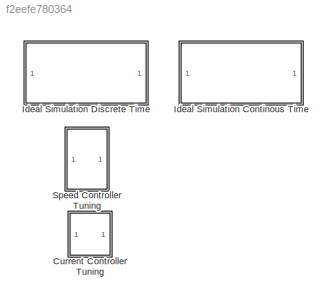
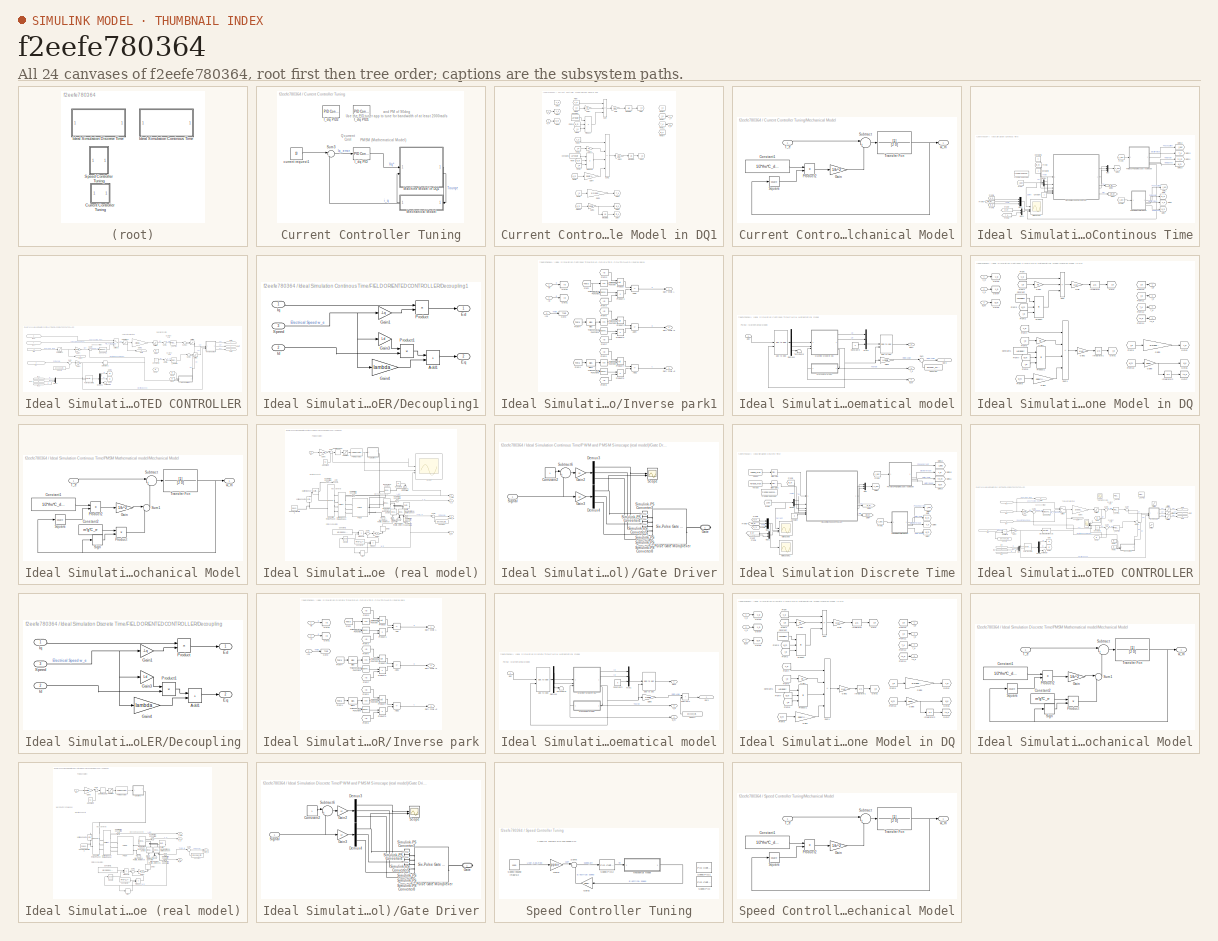
[diagram: thumbnail index - all 24 canvases of the model, root first then tree order]
MODEL slx_f2eefe780364
KIND model
CONFIG AbsTol = auto
CONFIG EnableMultiTasking = off
CONFIG FixedStep = auto
CONFIG MaxStep = auto
CONFIG MinStep = 1e-6
CONFIG RelTol = 1e-6
CONFIG SampleTimeConstraint = Unconstrained
CONFIG SolverName = FixedStepAuto
CONFIG StartTime = 0.0
CONFIG StopTime = 100
BLOCK [SubSystem] Current Controller Tuning
  Commented = on
BLOCK [Reference] Current Controller Tuning/I_dq PID  REF=slpidlib/PID Controller
  LibrarySourceBlock = simulink/Continuous/PID Controller
  SourceBlock = slpidlib/PID Controller
  SourceType = PID 1dof
BLOCK [Reference] Current Controller Tuning/I_dq PID1  REF=slpidlib/PID Controller
  Commented = on
  LibrarySourceBlock = simulink/Continuous/PID Controller
  SourceBlock = slpidlib/PID Controller
  SourceType = PID 1dof
BLOCK [Reference] Current Controller Tuning/I_dq PID2  REF=slpidlib/PID Controller
  Commented = on
  LibrarySourceBlock = simulink/Continuous/PID Controller
  SourceBlock = slpidlib/PID Controller
  SourceType = PID 1dof
BLOCK [SubSystem] Current Controller Tuning/Machine Model in DQ1
BLOCK [Constant] Current Controller Tuning/Machine Model in DQ1/Constant
  Value = Lq*ppair
BLOCK [Constant] Current Controller Tuning/Machine Model in DQ1/Constant1
  Value = Ld*ppair
BLOCK [From] Current Controller Tuning/Machine Model in DQ1/From
  GotoTag = v_d
BLOCK [From] Current Controller Tuning/Machine Model in DQ1/From1
  GotoTag = i_d
BLOCK [From] Current Controller Tuning/Machine Model in DQ1/From10
  GotoTag = i_d
BLOCK [From] Current Controller Tuning/Machine Model in DQ1/From11
  GotoTag = i_q
BLOCK [From] Current Controller Tuning/Machine Model in DQ1/From12
  GotoTag = T_e
BLOCK [From] Current Controller Tuning/Machine Model in DQ1/From13
  GotoTag = w_m
BLOCK [From] Current Controller Tuning/Machine Model in DQ1/From14
  GotoTag = th_e
BLOCK [From] Current Controller Tuning/Machine Model in DQ1/From2
  GotoTag = i_q
BLOCK [From] Current Controller Tuning/Machine Model in DQ1/From3
  GotoTag = w_m
BLOCK [From] Current Controller Tuning/Machine Model in DQ1/From4
  GotoTag = v_q
BLOCK [From] Current Controller Tuning/Machine Model in DQ1/From5
  GotoTag = i_q
BLOCK [From] Current Controller Tuning/Machine Model in DQ1/From6
  GotoTag = i_d
BLOCK [From] Current Controller Tuning/Machine Model in DQ1/From7
  GotoTag = w_m
BLOCK [From] Current Controller Tuning/Machine Model in DQ1/From8
  GotoTag = w_m
BLOCK [From] Current Controller Tuning/Machine Model in DQ1/From9
  GotoTag = i_q
BLOCK [Gain] Current Controller Tuning/Machine Model in DQ1/Gain
  Gain = 1/Ld
BLOCK [Gain] Current Controller Tuning/Machine Model in DQ1/Gain1
  Gain = Rs
BLOCK [Gain] Current Controller Tuning/Machine Model in DQ1/Gain2
  Gain = 1/Lq
BLOCK [Gain] Current Controller Tuning/Machine Model in DQ1/Gain3
  Gain = Rs
BLOCK [Gain] Current Controller Tuning/Machine Model in DQ1/Gain4
  Gain = ppair*lambda
BLOCK [Gain] Current Controller Tuning/Machine Model in DQ1/Gain5
  Gain = 3/2*ppair*lambda
BLOCK [Gain] Current Controller Tuning/Machine Model in DQ1/Gain6
  Gain = ppair
BLOCK [Goto] Current Controller Tuning/Machine Model in DQ1/Goto
  GotoTag = i_d
BLOCK [Goto] Current Controller Tuning/Machine Model in DQ1/Goto1
  GotoTag = i_q
BLOCK [Goto] Current Controller Tuning/Machine Model in DQ1/Goto2
  GotoTag = T_e
BLOCK [Goto] Current Controller Tuning/Machine Model in DQ1/Goto3
  GotoTag = v_d
BLOCK [Goto] Current Controller Tuning/Machine Model in DQ1/Goto4
  GotoTag = v_q
BLOCK [Goto] Current Controller Tuning/Machine Model in DQ1/Goto5
  GotoTag = w_m
BLOCK [Goto] Current Controller Tuning/Machine Model in DQ1/Goto6
  GotoTag = w_e
BLOCK [Goto] Current Controller Tuning/Machine Model in DQ1/Goto7
  GotoTag = th_e
BLOCK [Integrator] Current Controller Tuning/Machine Model in DQ1/Integrator
BLOCK [Integrator] Current Controller Tuning/Machine Model in DQ1/Integrator1
BLOCK [Integrator] Current Controller Tuning/Machine Model in DQ1/Integrator2
BLOCK [Product] Current Controller Tuning/Machine Model in DQ1/Product
  Inputs = 3
BLOCK [Product] Current Controller Tuning/Machine Model in DQ1/Product1
  Inputs = 3
BLOCK [Sum] Current Controller Tuning/Machine Model in DQ1/Sum
  IconShape = rectangular
  Inputs = +-+
BLOCK [Sum] Current Controller Tuning/Machine Model in DQ1/Sum1
  IconShape = rectangular
  Inputs = +---
BLOCK [Outport] Current Controller Tuning/Machine Model in DQ1/T_e
  Port = 2
BLOCK [Outport] Current Controller Tuning/Machine Model in DQ1/i_q
BLOCK [Inport] Current Controller Tuning/Machine Model in DQ1/v_q
BLOCK [Inport] Current Controller Tuning/Machine Model in DQ1/w_m
  Port = 2
BLOCK [SubSystem] Current Controller Tuning/Mechanical Model
BLOCK [Constant] Current Controller Tuning/Mechanical Model/Constant1
  Value = 1/2*rho*C_d*A_f*r^2
BLOCK [Gain] Current Controller Tuning/Mechanical Model/Gain
  Gain = 1/k^2
BLOCK [Product] Current Controller Tuning/Mechanical Model/Product2
BLOCK [Math] Current Controller Tuning/Mechanical Model/Square
  Operator = square
BLOCK [Sum] Current Controller Tuning/Mechanical Model/Subtract
  Inputs = |+-
BLOCK [Inport] Current Controller Tuning/Mechanical Model/T_e
BLOCK [TransferFcn] Current Controller Tuning/Mechanical Model/Transfer Fcn
  Denominator = [J 0]
BLOCK [Outport] Current Controller Tuning/Mechanical Model/w_m
BLOCK [Sum] Current Controller Tuning/Sum3
  Inputs = |+-
BLOCK [Constant] Current Controller Tuning/current request1
  Value = 10
BLOCK [SubSystem] Ideal Simulation Continous Time
  Commented = on
BLOCK [Constant] Ideal Simulation Continous Time/Constant
BLOCK [Constant] Ideal Simulation Continous Time/Constant1
  OutDataTypeStr = double
  Value = 0
BLOCK [Constant] Ideal Simulation Continous Time/Constant2
  OutDataTypeStr = double
BLOCK [Demux] Ideal Simulation Continous Time/Demux
  Outputs = 3
BLOCK [SubSystem] Ideal Simulation Continous Time/FIELD ORIENTED CONTROLLER
  NameLocation = top
BLOCK [Constant] Ideal Simulation Continous Time/FIELD ORIENTED CONTROLLER/Const1
  Value = Encoder_Offset
BLOCK [Constant] Ideal Simulation Continous Time/FIELD ORIENTED CONTROLLER/Constant2
  Value = 0
BLOCK [SubSystem] Ideal Simulation Continous Time/FIELD ORIENTED CONTROLLER/Decoupling1
  PortSchema = {"entries":[{"content":{"sides":[{"content":{"connectorIds":["In1","In2","In3"]},"type":"ConnectorPlacement.EquallySpacedRectSide","uuid":"5f512ccb-8595-4499-a419-e995908cd1f5"},{"content":{"side":"RIGHT"},"type":"ConnectorPlacement.EquallySpacedRectSide","uuid":"2a1de219-597a-4818-9587-d28590d7f25d"},{"content":{"connectorIds":["Out1","Out2"],"side":"TOP"},"type":"ConnectorPlacement.EquallySpaced...<+241ch>
BLOCK [Sum] Ideal Simulation Continous Time/FIELD ORIENTED CONTROLLER/Decoupling1/Add1
  IconShape = rectangular
  OutDataTypeStr = Inherit: Same as first input
  RndMeth = Nearest
BLOCK [Outport] Ideal Simulation Continous Time/FIELD ORIENTED CONTROLLER/Decoupling1/Ed
BLOCK [Outport] Ideal Simulation Continous Time/FIELD ORIENTED CONTROLLER/Decoupling1/Eq
  Port = 2
BLOCK [Gain] Ideal Simulation Continous Time/FIELD ORIENTED CONTROLLER/Decoupling1/Gain1
  Gain = -Lq
  OutDataTypeStr = double
  ParamDataTypeStr = single
  RndMeth = Nearest
BLOCK [Gain] Ideal Simulation Continous Time/FIELD ORIENTED CONTROLLER/Decoupling1/Gain3
  Gain = Ld
  OutDataTypeStr = Inherit: Same as input
  RndMeth = Nearest
BLOCK [Gain] Ideal Simulation Continous Time/FIELD ORIENTED CONTROLLER/Decoupling1/Gain4
  Gain = lambda
  OutDataTypeStr = Inherit: Same as input
  RndMeth = Nearest
BLOCK [Inport] Ideal Simulation Continous Time/FIELD ORIENTED CONTROLLER/Decoupling1/Id
  Port = 2
BLOCK [Inport] Ideal Simulation Continous Time/FIELD ORIENTED CONTROLLER/Decoupling1/Iq
BLOCK [Product] Ideal Simulation Continous Time/FIELD ORIENTED CONTROLLER/Decoupling1/Product
  OutDataTypeStr = Inherit: Same as first input
  RndMeth = Nearest
BLOCK [Product] Ideal Simulation Continous Time/FIELD ORIENTED CONTROLLER/Decoupling1/Product1
  OutDataTypeStr = Inherit: Same as first input
  RndMeth = Nearest
BLOCK [Inport] Ideal Simulation Continous Time/FIELD ORIENTED CONTROLLER/Decoupling1/Speed
  Port = 3
BLOCK [Demux] Ideal Simulation Continous Time/FIELD ORIENTED CONTROLLER/Demux1
  Outputs = 3
BLOCK [Derivative] Ideal Simulation Continous Time/FIELD ORIENTED CONTROLLER/Derivative1
BLOCK [From] Ideal Simulation Continous Time/FIELD ORIENTED CONTROLLER/From1
  GotoTag = Iq
BLOCK [From] Ideal Simulation Continous Time/FIELD ORIENTED CONTROLLER/From2
  GotoTag = Id
BLOCK [From] Ideal Simulation Continous Time/FIELD ORIENTED CONTROLLER/From6
  GotoTag = Iq
BLOCK [From] Ideal Simulation Continous Time/FIELD ORIENTED CONTROLLER/From7
  GotoTag = Id
BLOCK [Gain] Ideal Simulation Continous Time/FIELD ORIENTED CONTROLLER/Gain1
  Gain = ppair
  OutDataTypeStr = double
  RndMeth = Nearest
BLOCK [Gain] Ideal Simulation Continous Time/FIELD ORIENTED CONTROLLER/Gain3
  Gain = 2/(ppair*lambda*3)
  OutDataTypeStr = double
  RndMeth = Nearest
BLOCK [Gain] Ideal Simulation Continous Time/FIELD ORIENTED CONTROLLER/Gain4
  Gain = ppair
  OutDataTypeStr = double
  RndMeth = Nearest
BLOCK [Goto] Ideal Simulation Continous Time/FIELD ORIENTED CONTROLLER/Goto2
  GotoTag = Id
BLOCK [Goto] Ideal Simulation Continous Time/FIELD ORIENTED CONTROLLER/Goto3
  GotoTag = Iq
BLOCK [Reference] Ideal Simulation Continous Time/FIELD ORIENTED CONTROLLER/I_dq PID2  REF=slpidlib/PID Controller
  LibrarySourceBlock = simulink/Continuous/PID Controller
  SourceBlock = slpidlib/PID Controller
  SourceType = PID 1dof
BLOCK [Reference] Ideal Simulation Continous Time/FIELD ORIENTED CONTROLLER/I_dq PID4  REF=slpidlib/PID Controller
  LibrarySourceBlock = simulink/Continuous/PID Controller
  SourceBlock = slpidlib/PID Controller
  SourceType = PID 1dof
BLOCK [Inport] Ideal Simulation Continous Time/FIELD ORIENTED CONTROLLER/In10
  IconDisplay = Port number and signal name
  Port = 3
BLOCK [Inport] Ideal Simulation Continous Time/FIELD ORIENTED CONTROLLER/In11
  IconDisplay = Port number and signal name
  Port = 4
BLOCK [Inport] Ideal Simulation Continous Time/FIELD ORIENTED CONTROLLER/In12
  IconDisplay = Port number and signal name
  Port = 5
BLOCK [Inport] Ideal Simulation Continous Time/FIELD ORIENTED CONTROLLER/In13
  IconDisplay = Port number and signal name
  Port = 6
BLOCK [Inport] Ideal Simulation Continous Time/FIELD ORIENTED CONTROLLER/In14
  IconDisplay = Port number and signal name
  Port = 7
BLOCK [Inport] Ideal Simulation Continous Time/FIELD ORIENTED CONTROLLER/In8
  IconDisplay = Port number and signal name
  OutDataTypeStr = double
BLOCK [Inport] Ideal Simulation Continous Time/FIELD ORIENTED CONTROLLER/In9
  IconDisplay = Signal name
  Port = 2
BLOCK [SubSystem] Ideal Simulation Continous Time/FIELD ORIENTED CONTROLLER/Inverse park1
BLOCK [Sum] Ideal Simulation Continous Time/FIELD ORIENTED CONTROLLER/Inverse park1/Add2
  IconShape = rectangular
  Inputs = +-
  RndMeth = Nearest
BLOCK [Sum] Ideal Simulation Continous Time/FIELD ORIENTED CONTROLLER/Inverse park1/Add4
  IconShape = rectangular
  Inputs = +-
  RndMeth = Nearest
BLOCK [Sum] Ideal Simulation Continous Time/FIELD ORIENTED CONTROLLER/Inverse park1/Add5
  IconShape = rectangular
  Inputs = +-
  RndMeth = Nearest
BLOCK [Bias] Ideal Simulation Continous Time/FIELD ORIENTED CONTROLLER/Inverse park1/Bias
  Bias = -2*pi/3
  SaturateOnIntegerOverflow = off
BLOCK [Bias] Ideal Simulation Continous Time/FIELD ORIENTED CONTROLLER/Inverse park1/Bias1
  Bias = 2*pi/3
  SaturateOnIntegerOverflow = off
BLOCK [Outport] Ideal Simulation Continous Time/FIELD ORIENTED CONTROLLER/Inverse park1/Duty Cycle A
  IconDisplay = Signal name
BLOCK [Outport] Ideal Simulation Continous Time/FIELD ORIENTED CONTROLLER/Inverse park1/Duty Cycle A1
  IconDisplay = Signal name
  Port = 2
BLOCK [Outport] Ideal Simulation Continous Time/FIELD ORIENTED CONTROLLER/Inverse park1/Duty Cycle A2
  IconDisplay = Signal name
  Port = 3
BLOCK [From] Ideal Simulation Continous Time/FIELD ORIENTED CONTROLLER/Inverse park1/From
  GotoTag = Theta
BLOCK [From] Ideal Simulation Continous Time/FIELD ORIENTED CONTROLLER/Inverse park1/From1
  GotoTag = Theta
BLOCK [From] Ideal Simulation Continous Time/FIELD ORIENTED CONTROLLER/Inverse park1/From2
  GotoTag = Id
BLOCK [From] Ideal Simulation Continous Time/FIELD ORIENTED CONTROLLER/Inverse park1/From3
  GotoTag = Iq
BLOCK [From] Ideal Simulation Continous Time/FIELD ORIENTED CONTROLLER/Inverse park1/From4
  GotoTag = Theta
BLOCK [From] Ideal Simulation Continous Time/FIELD ORIENTED CONTROLLER/Inverse park1/From5
  GotoTag = Id
BLOCK [From] Ideal Simulation Continous Time/FIELD ORIENTED CONTROLLER/Inverse park1/From6
  GotoTag = Id
BLOCK [From] Ideal Simulation Continous Time/FIELD ORIENTED CONTROLLER/Inverse park1/From7
  GotoTag = Iq
BLOCK [From] Ideal Simulation Continous Time/FIELD ORIENTED CONTROLLER/Inverse park1/From8
  GotoTag = Iq
BLOCK [Goto] Ideal Simulation Continous Time/FIELD ORIENTED CONTROLLER/Inverse park1/Goto
  GotoTag = Theta
BLOCK [Goto] Ideal Simulation Continous Time/FIELD ORIENTED CONTROLLER/Inverse park1/Goto1
  GotoTag = Id
BLOCK [Goto] Ideal Simulation Continous Time/FIELD ORIENTED CONTROLLER/Inverse park1/Goto2
  GotoTag = Iq
BLOCK [Inport] Ideal Simulation Continous Time/FIELD ORIENTED CONTROLLER/Inverse park1/In3
  IconDisplay = Signal name
  Port = 3
BLOCK [Inport] Ideal Simulation Continous Time/FIELD ORIENTED CONTROLLER/Inverse park1/Iq
  IconDisplay = Signal name
  Port = 2
BLOCK [Product] Ideal Simulation Continous Time/FIELD ORIENTED CONTROLLER/Inverse park1/Product
  RndMeth = Nearest
BLOCK [Product] Ideal Simulation Continous Time/FIELD ORIENTED CONTROLLER/Inverse park1/Product1
  RndMeth = Nearest
BLOCK [Product] Ideal Simulation Continous Time/FIELD ORIENTED CONTROLLER/Inverse park1/Product2
  RndMeth = Nearest
BLOCK [Product] Ideal Simulation Continous Time/FIELD ORIENTED CONTROLLER/Inverse park1/Product3
  RndMeth = Nearest
BLOCK [Product] Ideal Simulation Continous Time/FIELD ORIENTED CONTROLLER/Inverse park1/Product4
  RndMeth = Nearest
BLOCK [Product] Ideal Simulation Continous Time/FIELD ORIENTED CONTROLLER/Inverse park1/Product5
  RndMeth = Nearest
BLOCK [Trigonometry] Ideal Simulation Continous Time/FIELD ORIENTED CONTROLLER/Inverse park1/Trigonometric Function
  Operator = cos
BLOCK [Trigonometry] Ideal Simulation Continous Time/FIELD ORIENTED CONTROLLER/Inverse park1/Trigonometric Function1
BLOCK [Trigonometry] Ideal Simulation Continous Time/FIELD ORIENTED CONTROLLER/Inverse park1/Trigonometric Function2
  Operator = cos
BLOCK [Trigonometry] Ideal Simulation Continous Time/FIELD ORIENTED CONTROLLER/Inverse park1/Trigonometric Function3
BLOCK [Trigonometry] Ideal Simulation Continous Time/FIELD ORIENTED CONTROLLER/Inverse park1/Trigonometric Function4
  Operator = cos
BLOCK [Trigonometry] Ideal Simulation Continous Time/FIELD ORIENTED CONTROLLER/Inverse park1/Trigonometric Function5
BLOCK [Inport] Ideal Simulation Continous Time/FIELD ORIENTED CONTROLLER/Inverse park1/Vq
  IconDisplay = Signal name
BLOCK [Saturate] Ideal Simulation Continous Time/FIELD ORIENTED CONTROLLER/Limiter 2
  LinearizeAsGain = off
  LowerLimit = 0
  UpperLimit = Voltage_max
BLOCK [Saturate] Ideal Simulation Continous Time/FIELD ORIENTED CONTROLLER/Limiter2
  LinearizeAsGain = off
  LowerLimit = 0
  UpperLimit = Voltage_max
BLOCK [Saturate] Ideal Simulation Continous Time/FIELD ORIENTED CONTROLLER/Limiter3
  LinearizeAsGain = off
  LowerLimit = -Current_max
  UpperLimit = Current_max
BLOCK [Mux] Ideal Simulation Continous Time/FIELD ORIENTED CONTROLLER/Mux1
  DisplayOption = bar
  Inputs = 3
BLOCK [Outport] Ideal Simulation Continous Time/FIELD ORIENTED CONTROLLER/Out10
  IconDisplay = Port number and signal name
  OutDataTypeStr = double
  Port = 5
BLOCK [Outport] Ideal Simulation Continous Time/FIELD ORIENTED CONTROLLER/Out6
  IconDisplay = Port number and signal name
BLOCK [Outport] Ideal Simulation Continous Time/FIELD ORIENTED CONTROLLER/Out7
  IconDisplay = Port number and signal name
  Port = 2
BLOCK [Outport] Ideal Simulation Continous Time/FIELD ORIENTED CONTROLLER/Out8
  IconDisplay = Port number and signal name
  Port = 3
BLOCK [Outport] Ideal Simulation Continous Time/FIELD ORIENTED CONTROLLER/Out9
  IconDisplay = Port number and signal name
  Port = 4
BLOCK [Reference] Ideal Simulation Continous Time/FIELD ORIENTED CONTROLLER/Park Transform1  REF=spsabctodq0Lib/abc to dq0
  SourceBlock = spsabctodq0Lib/abc to dq0
  SourceType = abc to dq0 Transformation
BLOCK [Saturate] Ideal Simulation Continous Time/FIELD ORIENTED CONTROLLER/Saturation1
  LowerLimit = -speed_max
  OutDataTypeStr = double
  UpperLimit = speed_max
BLOCK [Saturate] Ideal Simulation Continous Time/FIELD ORIENTED CONTROLLER/Saturation2
  LowerLimit = -Torque_max
  OutDataTypeStr = double
  RndMeth = Nearest
  UpperLimit = Torque_max
BLOCK [Reference] Ideal Simulation Continous Time/FIELD ORIENTED CONTROLLER/Speed PD1  REF=slpidlib/PID Controller
  LibrarySourceBlock = simulink/Continuous/PID Controller
  SourceBlock = slpidlib/PID Controller
  SourceType = PID 1dof
BLOCK [Sum] Ideal Simulation Continous Time/FIELD ORIENTED CONTROLLER/Sum
  AccumDataTypeStr = double
  Inputs = |+-
  OutDataTypeStr = double
  RndMeth = Nearest
BLOCK [Sum] Ideal Simulation Continous Time/FIELD ORIENTED CONTROLLER/Sum10
  Inputs = |++
BLOCK [Sum] Ideal Simulation Continous Time/FIELD ORIENTED CONTROLLER/Sum2
  Inputs = |++
BLOCK [Sum] Ideal Simulation Continous Time/FIELD ORIENTED CONTROLLER/Sum5
  Inputs = |+-
BLOCK [Sum] Ideal Simulation Continous Time/FIELD ORIENTED CONTROLLER/Sum8
  Inputs = |+-
BLOCK [Sum] Ideal Simulation Continous Time/FIELD ORIENTED CONTROLLER/Sum9
  Inputs = |+-
  OutDataTypeStr = double
  RndMeth = Nearest
BLOCK [Switch] Ideal Simulation Continous Time/FIELD ORIENTED CONTROLLER/Switch1
  Criteria = u2 > Threshold
  InputSameDT = off
  OutDataTypeStr = double
  SaturateOnIntegerOverflow = off
BLOCK [Terminator] Ideal Simulation Continous Time/FIELD ORIENTED CONTROLLER/Terminator1
BLOCK [From] Ideal Simulation Continous Time/From
  GotoTag = i_abc
BLOCK [FromSpreadsheet] Ideal Simulation Continous Time/From Spreadsheet
  Commented = on
  FileName = Inverter_Lap_Sim_Current_Calcs.xlsx
BLOCK [From] Ideal Simulation Continous Time/From1
  GotoTag = T_e
BLOCK [From] Ideal Simulation Continous Time/From2
  GotoTag = th_m
BLOCK [From] Ideal Simulation Continous Time/From3
  GotoTag = v_abc
BLOCK [From] Ideal Simulation Continous Time/From4
  Commented = on
  GotoTag = v_abc
BLOCK [From] Ideal Simulation Continous Time/From5
  GotoTag = w_m
BLOCK [From] Ideal Simulation Continous Time/From6
  GotoTag = th_m
BLOCK [From] Ideal Simulation Continous Time/From7
  GotoTag = te_ref
BLOCK [From] Ideal Simulation Continous Time/From8
  GotoTag = Wm_ref
BLOCK [Goto] Ideal Simulation Continous Time/Goto
  GotoTag = th_m
BLOCK [Goto] Ideal Simulation Continous Time/Goto1
  GotoTag = i_abc
BLOCK [Goto] Ideal Simulation Continous Time/Goto10
  Commented = on
  GotoTag = w_m
BLOCK [Goto] Ideal Simulation Continous Time/Goto11
  Commented = on
  GotoTag = th_m
BLOCK [Goto] Ideal Simulation Continous Time/Goto12
  Commented = on
  GotoTag = i_abc
BLOCK [Goto] Ideal Simulation Continous Time/Goto13
  Commented = on
  GotoTag = T_e
BLOCK [Goto] Ideal Simulation Continous Time/Goto2
  GotoTag = v_abc
BLOCK [Goto] Ideal Simulation Continous Time/Goto3
  GotoTag = te_ref
BLOCK [Goto] Ideal Simulation Continous Time/Goto4
  GotoTag = Wm_ref
BLOCK [Goto] Ideal Simulation Continous Time/Goto5
  GotoTag = T_e
BLOCK [Goto] Ideal Simulation Continous Time/Goto7
  GotoTag = w_m
BLOCK [Scope] Ideal Simulation Continous Time/Main Scope
  Floating = off
  NumInputPorts = 4
  ScopeSpecificationString = Simulink.scopes.TimeScopeBlockCfg('CurrentConfiguration', extmgr.ConfigurationSet(extmgr.Configuration('Core','General UI',true,'FigureColor',[1 1 1]),extmgr.Configuration('Core','Source UI',true),extmgr.Configuration('Sources','WiredSimulink',true,'DataLoggingVariableName','ScopeData1'),extmgr.Configuration('Visuals','Time Domain',true,'SerializedDisplays',{struct('MinYLimReal','-911.5838','MaxYL...<+5155ch>
BLOCK [Mux] Ideal Simulation Continous Time/Mux
  DisplayOption = bar
  Inputs = 3
BLOCK [Mux] Ideal Simulation Continous Time/Mux1
  DisplayOption = bar
  Inputs = 2
BLOCK [Mux] Ideal Simulation Continous Time/Mux2
  DisplayOption = bar
  Inputs = 3
BLOCK [SubSystem] Ideal Simulation Continous Time/PMSM Mathematical model
BLOCK [Constant] Ideal Simulation Continous Time/PMSM Mathematical model/Constant
  NameLocation = top
  Value = Encoder_Offset
BLOCK [Constant] Ideal Simulation Continous Time/PMSM Mathematical model/Constant3
  Value = 0
BLOCK [Demux] Ideal Simulation Continous Time/PMSM Mathematical model/Demux1
  Outputs = 3
BLOCK [Gain] Ideal Simulation Continous Time/PMSM Mathematical model/Gain6
  Gain = 1/ppair
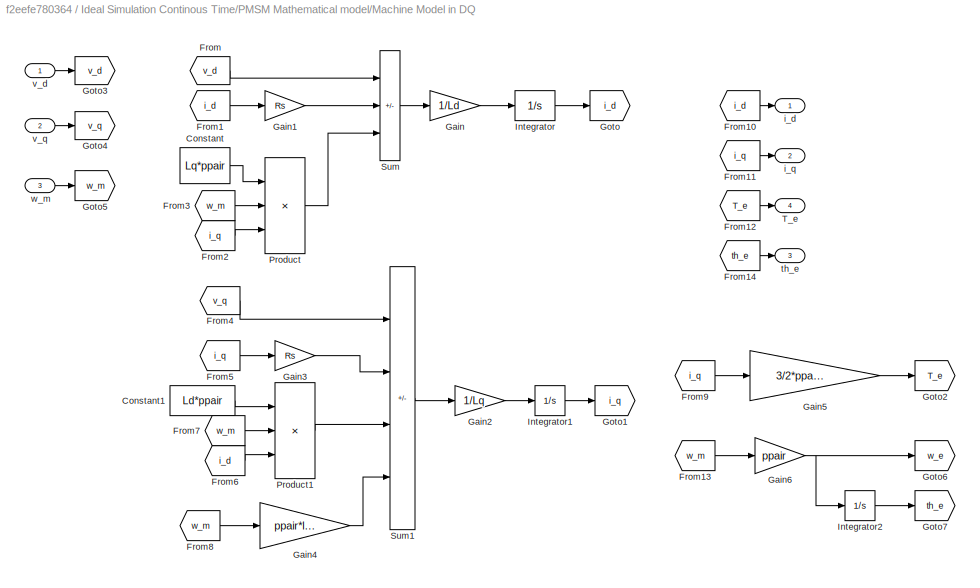
BLOCK [SubSystem] Ideal Simulation Continous Time/PMSM Mathematical model/Machine Model in DQ
BLOCK [Constant] Ideal Simulation Continous Time/PMSM Mathematical model/Machine Model in DQ/Constant
  Value = Lq*ppair
BLOCK [Constant] Ideal Simulation Continous Time/PMSM Mathematical model/Machine Model in DQ/Constant1
  Value = Ld*ppair
BLOCK [From] Ideal Simulation Continous Time/PMSM Mathematical model/Machine Model in DQ/From
  GotoTag = v_d
BLOCK [From] Ideal Simulation Continous Time/PMSM Mathematical model/Machine Model in DQ/From1
  GotoTag = i_d
BLOCK [From] Ideal Simulation Continous Time/PMSM Mathematical model/Machine Model in DQ/From10
  GotoTag = i_d
BLOCK [From] Ideal Simulation Continous Time/PMSM Mathematical model/Machine Model in DQ/From11
  GotoTag = i_q
BLOCK [From] Ideal Simulation Continous Time/PMSM Mathematical model/Machine Model in DQ/From12
  GotoTag = T_e
BLOCK [From] Ideal Simulation Continous Time/PMSM Mathematical model/Machine Model in DQ/From13
  GotoTag = w_m
BLOCK [From] Ideal Simulation Continous Time/PMSM Mathematical model/Machine Model in DQ/From14
  GotoTag = th_e
BLOCK [From] Ideal Simulation Continous Time/PMSM Mathematical model/Machine Model in DQ/From2
  GotoTag = i_q
BLOCK [From] Ideal Simulation Continous Time/PMSM Mathematical model/Machine Model in DQ/From3
  GotoTag = w_m
BLOCK [From] Ideal Simulation Continous Time/PMSM Mathematical model/Machine Model in DQ/From4
  GotoTag = v_q
BLOCK [From] Ideal Simulation Continous Time/PMSM Mathematical model/Machine Model in DQ/From5
  GotoTag = i_q
BLOCK [From] Ideal Simulation Continous Time/PMSM Mathematical model/Machine Model in DQ/From6
  GotoTag = i_d
BLOCK [From] Ideal Simulation Continous Time/PMSM Mathematical model/Machine Model in DQ/From7
  GotoTag = w_m
BLOCK [From] Ideal Simulation Continous Time/PMSM Mathematical model/Machine Model in DQ/From8
  GotoTag = w_m
BLOCK [From] Ideal Simulation Continous Time/PMSM Mathematical model/Machine Model in DQ/From9
  GotoTag = i_q
BLOCK [Gain] Ideal Simulation Continous Time/PMSM Mathematical model/Machine Model in DQ/Gain
  Gain = 1/Ld
BLOCK [Gain] Ideal Simulation Continous Time/PMSM Mathematical model/Machine Model in DQ/Gain1
  Gain = Rs
BLOCK [Gain] Ideal Simulation Continous Time/PMSM Mathematical model/Machine Model in DQ/Gain2
  Gain = 1/Lq
BLOCK [Gain] Ideal Simulation Continous Time/PMSM Mathematical model/Machine Model in DQ/Gain3
  Gain = Rs
BLOCK [Gain] Ideal Simulation Continous Time/PMSM Mathematical model/Machine Model in DQ/Gain4
  Gain = ppair*lambda
BLOCK [Gain] Ideal Simulation Continous Time/PMSM Mathematical model/Machine Model in DQ/Gain5
  Gain = 3/2*ppair*lambda
BLOCK [Gain] Ideal Simulation Continous Time/PMSM Mathematical model/Machine Model in DQ/Gain6
  Gain = ppair
BLOCK [Goto] Ideal Simulation Continous Time/PMSM Mathematical model/Machine Model in DQ/Goto
  GotoTag = i_d
BLOCK [Goto] Ideal Simulation Continous Time/PMSM Mathematical model/Machine Model in DQ/Goto1
  GotoTag = i_q
BLOCK [Goto] Ideal Simulation Continous Time/PMSM Mathematical model/Machine Model in DQ/Goto2
  GotoTag = T_e
BLOCK [Goto] Ideal Simulation Continous Time/PMSM Mathematical model/Machine Model in DQ/Goto3
  GotoTag = v_d
BLOCK [Goto] Ideal Simulation Continous Time/PMSM Mathematical model/Machine Model in DQ/Goto4
  GotoTag = v_q
BLOCK [Goto] Ideal Simulation Continous Time/PMSM Mathematical model/Machine Model in DQ/Goto5
  GotoTag = w_m
BLOCK [Goto] Ideal Simulation Continous Time/PMSM Mathematical model/Machine Model in DQ/Goto6
  GotoTag = w_e
BLOCK [Goto] Ideal Simulation Continous Time/PMSM Mathematical model/Machine Model in DQ/Goto7
  GotoTag = th_e
BLOCK [Integrator] Ideal Simulation Continous Time/PMSM Mathematical model/Machine Model in DQ/Integrator
BLOCK [Integrator] Ideal Simulation Continous Time/PMSM Mathematical model/Machine Model in DQ/Integrator1
BLOCK [Integrator] Ideal Simulation Continous Time/PMSM Mathematical model/Machine Model in DQ/Integrator2
BLOCK [Product] Ideal Simulation Continous Time/PMSM Mathematical model/Machine Model in DQ/Product
  Inputs = 3
BLOCK [Product] Ideal Simulation Continous Time/PMSM Mathematical model/Machine Model in DQ/Product1
  Inputs = 3
BLOCK [Sum] Ideal Simulation Continous Time/PMSM Mathematical model/Machine Model in DQ/Sum
  IconShape = rectangular
  Inputs = +-+
BLOCK [Sum] Ideal Simulation Continous Time/PMSM Mathematical model/Machine Model in DQ/Sum1
  IconShape = rectangular
  Inputs = +---
BLOCK [Outport] Ideal Simulation Continous Time/PMSM Mathematical model/Machine Model in DQ/T_e
  Port = 4
BLOCK [Outport] Ideal Simulation Continous Time/PMSM Mathematical model/Machine Model in DQ/i_d
BLOCK [Outport] Ideal Simulation Continous Time/PMSM Mathematical model/Machine Model in DQ/i_q
  Port = 2
BLOCK [Outport] Ideal Simulation Continous Time/PMSM Mathematical model/Machine Model in DQ/th_e
  Port = 3
BLOCK [Inport] Ideal Simulation Continous Time/PMSM Mathematical model/Machine Model in DQ/v_d
BLOCK [Inport] Ideal Simulation Continous Time/PMSM Mathematical model/Machine Model in DQ/v_q
  Port = 2
BLOCK [Inport] Ideal Simulation Continous Time/PMSM Mathematical model/Machine Model in DQ/w_m
  Port = 3
BLOCK [SubSystem] Ideal Simulation Continous Time/PMSM Mathematical model/Mechanical Model
BLOCK [Constant] Ideal Simulation Continous Time/PMSM Mathematical model/Mechanical Model/Constant1
  Value = 1/2*rho*C_d*A_f*r^2
BLOCK [Constant] Ideal Simulation Continous Time/PMSM Mathematical model/Mechanical Model/Constant2
  Value = m*g*C_rr
BLOCK [Gain] Ideal Simulation Continous Time/PMSM Mathematical model/Mechanical Model/Gain
  Gain = 1/k^2
BLOCK [Product] Ideal Simulation Continous Time/PMSM Mathematical model/Mechanical Model/Product
BLOCK [Product] Ideal Simulation Continous Time/PMSM Mathematical model/Mechanical Model/Product2
BLOCK [Signum] Ideal Simulation Continous Time/PMSM Mathematical model/Mechanical Model/Sign
BLOCK [Math] Ideal Simulation Continous Time/PMSM Mathematical model/Mechanical Model/Square
  Operator = square
BLOCK [Sum] Ideal Simulation Continous Time/PMSM Mathematical model/Mechanical Model/Subtract
  Inputs = |+-
BLOCK [Sum] Ideal Simulation Continous Time/PMSM Mathematical model/Mechanical Model/Sum1
  Inputs = |++
BLOCK [Inport] Ideal Simulation Continous Time/PMSM Mathematical model/Mechanical Model/T_e
BLOCK [TransferFcn] Ideal Simulation Continous Time/PMSM Mathematical model/Mechanical Model/Transfer Fcn
  Denominator = [J 0]
BLOCK [Outport] Ideal Simulation Continous Time/PMSM Mathematical model/Mechanical Model/w_m
BLOCK [Mux] Ideal Simulation Continous Time/PMSM Mathematical model/Mux1
  DisplayOption = bar
  Inputs = 3
BLOCK [Outport] Ideal Simulation Continous Time/PMSM Mathematical model/Out3
  IconDisplay = Signal name
  Port = 2
BLOCK [Sum] Ideal Simulation Continous Time/PMSM Mathematical model/Sum
  Inputs = |++
BLOCK [Outport] Ideal Simulation Continous Time/PMSM Mathematical model/T_e
  Port = 3
BLOCK [Terminator] Ideal Simulation Continous Time/PMSM Mathematical model/Terminator
BLOCK [Inport] Ideal Simulation Continous Time/PMSM Mathematical model/abc
BLOCK [Reference] Ideal Simulation Continous Time/PMSM Mathematical model/abc to dq0  REF=spsabctodq0Lib/abc to dq0
  SourceBlock = spsabctodq0Lib/abc to dq0
  SourceType = abc to dq0 Transformation
BLOCK [Outport] Ideal Simulation Continous Time/PMSM Mathematical model/abc1
BLOCK [Reference] Ideal Simulation Continous Time/PMSM Mathematical model/dq0 to abc  REF=spsdq0toabcLib/dq0 to abc
  SourceBlock = spsdq0toabcLib/dq0 to abc
  SourceType = dq0 to abc Transformation
BLOCK [Outport] Ideal Simulation Continous Time/PMSM Mathematical model/w_m
  Port = 4
BLOCK [SubSystem] Ideal Simulation Continous Time/PWM and PMSM Simscape (real model)
  Commented = on
BLOCK [Constant] Ideal Simulation Continous Time/PWM and PMSM Simscape (real model)/Constant
  NameLocation = top
  Value = Encoder_Offset
BLOCK [Constant] Ideal Simulation Continous Time/PWM and PMSM Simscape (real model)/Constant1
  Value = 1/2*0.0001*C_d*A_f*r^2
BLOCK [Constant] Ideal Simulation Continous Time/PWM and PMSM Simscape (real model)/Constant2
  Value = 15
BLOCK [Constant] Ideal Simulation Continous Time/PWM and PMSM Simscape (real model)/Constant3
  Value = m*g*C_rr
BLOCK [Constant] Ideal Simulation Continous Time/PWM and PMSM Simscape (real model)/Constant7
  Value = 0.5
BLOCK [Reference] Ideal Simulation Continous Time/PWM and PMSM Simscape (real model)/Converter (Three-Phase)  REF=ee_lib/Semiconductors &
Converters/Converters/Converter
(Three-Phase)
  SourceBlock = ee_lib/Semiconductors &\nConverters/Converters/Converter\n(Three-Phase)
  SourceType = Converter\n(Three-Phase)
BLOCK [Reference] Ideal Simulation Continous Time/PWM and PMSM Simscape (real model)/Current Sensor  REF=fl_lib/Electrical/Electrical Sensors/Current Sensor
  SourceBlock = fl_lib/Electrical/Electrical Sensors/Current Sensor
  SourceType = Current Sensor
BLOCK [Reference] Ideal Simulation Continous Time/PWM and PMSM Simscape (real model)/Current Sensor (Three-Phase)  REF=ee_lib/Sensors &
Transducers/Current Sensor
(Three-Phase)
  SourceBlock = ee_lib/Sensors &\nTransducers/Current Sensor\n(Three-Phase)
  SourceType = Current Sensor\n(Three-Phase)
BLOCK [Delay] Ideal Simulation Continous Time/PWM and PMSM Simscape (real model)/Delay
  DelayLength = 1
  InputPortMap = u0
  NameLocation = right
BLOCK [Gain] Ideal Simulation Continous Time/PWM and PMSM Simscape (real model)/Gain2
  Gain = 1/k^2
BLOCK [Gain] Ideal Simulation Continous Time/PWM and PMSM Simscape (real model)/Gain5
  Gain = 1/V_dd
BLOCK [SubSystem] Ideal Simulation Continous Time/PWM and PMSM Simscape (real model)/Gate Driver
BLOCK [Constant] Ideal Simulation Continous Time/PWM and PMSM Simscape (real model)/Gate Driver/Constant2
BLOCK [Demux] Ideal Simulation Continous Time/PWM and PMSM Simscape (real model)/Gate Driver/Demux3
  Outputs = 3
BLOCK [Demux] Ideal Simulation Continous Time/PWM and PMSM Simscape (real model)/Gate Driver/Demux4
  Outputs = 3
BLOCK [Gain] Ideal Simulation Continous Time/PWM and PMSM Simscape (real model)/Gate Driver/Gain2
  Gain = 12
BLOCK [Gain] Ideal Simulation Continous Time/PWM and PMSM Simscape (real model)/Gate Driver/Gain3
  Gain = 12
BLOCK [PMIOPort] Ideal Simulation Continous Time/PWM and PMSM Simscape (real model)/Gate Driver/Gate
  Side = Right
BLOCK [Scope] Ideal Simulation Continous Time/PWM and PMSM Simscape (real model)/Gate Driver/Scope
  Floating = off
  NumInputPorts = 2
  ScopeSpecificationString = Simulink.scopes.TimeScopeBlockCfg('CurrentConfiguration', extmgr.ConfigurationSet(extmgr.Configuration('Core','General UI',true),extmgr.Configuration('Core','Source UI',true),extmgr.Configuration('Sources','WiredSimulink',true,'DataLoggingVariableName','ScopeData1'),extmgr.Configuration('Visuals','Time Domain',true,'SerializedDisplays',{struct('MinYLimReal','-1.5','MaxYLimReal','13.5','YLabelReal'...<+1590ch>
BLOCK [Inport] Ideal Simulation Continous Time/PWM and PMSM Simscape (real model)/Gate Driver/Signal
BLOCK [Reference] Ideal Simulation Continous Time/PWM and PMSM Simscape (real model)/Gate Driver/Simulink-PS Converter3  REF=nesl_utility/Simulink-PS
Converter
  SourceBlock = nesl_utility/Simulink-PS\nConverter
  SourceType = Simulink-PS\nConverter
BLOCK [Reference] Ideal Simulation Continous Time/PWM and PMSM Simscape (real model)/Gate Driver/Simulink-PS Converter4  REF=nesl_utility/Simulink-PS
Converter
  SourceBlock = nesl_utility/Simulink-PS\nConverter
  SourceType = Simulink-PS\nConverter
BLOCK [Reference] Ideal Simulation Continous Time/PWM and PMSM Simscape (real model)/Gate Driver/Simulink-PS Converter5  REF=nesl_utility/Simulink-PS
Converter
  SourceBlock = nesl_utility/Simulink-PS\nConverter
  SourceType = Simulink-PS\nConverter
BLOCK [Reference] Ideal Simulation Continous Time/PWM and PMSM Simscape (real model)/Gate Driver/Simulink-PS Converter6  REF=nesl_utility/Simulink-PS
Converter
  SourceBlock = nesl_utility/Simulink-PS\nConverter
  SourceType = Simulink-PS\nConverter
BLOCK [Reference] Ideal Simulation Continous Time/PWM and PMSM Simscape (real model)/Gate Driver/Simulink-PS Converter7  REF=nesl_utility/Simulink-PS
Converter
  SourceBlock = nesl_utility/Simulink-PS\nConverter
  SourceType = Simulink-PS\nConverter
BLOCK [Reference] Ideal Simulation Continous Time/PWM and PMSM Simscape (real model)/Gate Driver/Simulink-PS Converter8  REF=nesl_utility/Simulink-PS
Converter
  SourceBlock = nesl_utility/Simulink-PS\nConverter
  SourceType = Simulink-PS\nConverter
BLOCK [Reference] Ideal Simulation Continous Time/PWM and PMSM Simscape (real model)/Gate Driver/Six-Pulse Gate Multiplexer  REF=ee_lib/Semiconductors &
Converters/Converters/Six-Pulse Gate
Multiplexer
  SourceBlock = ee_lib/Semiconductors &\nConverters/Converters/Six-Pulse Gate\nMultiplexer
  SourceType = Six-Pulse Gate\nMultiplexer
BLOCK [Sum] Ideal Simulation Continous Time/PWM and PMSM Simscape (real model)/Gate Driver/Subtract6
  Inputs = |+-
BLOCK [Outport] Ideal Simulation Continous Time/PWM and PMSM Simscape (real model)/I_ABC
BLOCK [Outport] Ideal Simulation Continous Time/PWM and PMSM Simscape (real model)/I_DC
  Port = 5
BLOCK [Reference] Ideal Simulation Continous Time/PWM and PMSM Simscape (real model)/Ideal Rotational Motion Sensor  REF=fl_lib/Mechanical/Mechanical Sensors/Ideal Rotational
Motion Sensor
  NameLocation = left
  SourceBlock = fl_lib/Mechanical/Mechanical Sensors/Ideal Rotational\nMotion Sensor
  SourceType = Ideal Rotational\nMotion Sensor
BLOCK [Reference] Ideal Simulation Continous Time/PWM and PMSM Simscape (real model)/Ideal Torque Sensor  REF=fl_lib/Mechanical/Mechanical Sensors/Ideal Torque Sensor
  NameLocation = top
  SourceBlock = fl_lib/Mechanical/Mechanical Sensors/Ideal Torque Sensor
  SourceType = Ideal Torque Sensor
BLOCK [Reference] Ideal Simulation Continous Time/PWM and PMSM Simscape (real model)/Ideal Torque Source  REF=fl_lib/Mechanical/Mechanical Sources/Ideal Torque Source
  NameLocation = right
  SourceBlock = fl_lib/Mechanical/Mechanical Sources/Ideal Torque Source
  SourceType = Ideal Torque Source
BLOCK [Reference] Ideal Simulation Continous Time/PWM and PMSM Simscape (real model)/Ideal Torque Source1  REF=fl_lib/Mechanical/Mechanical Sources/Ideal Torque Source
  NameLocation = top
  SourceBlock = fl_lib/Mechanical/Mechanical Sources/Ideal Torque Source
  SourceType = Ideal Torque Source
BLOCK [Inport] Ideal Simulation Continous Time/PWM and PMSM Simscape (real model)/In1
BLOCK [Reference] Ideal Simulation Continous Time/PWM and PMSM Simscape (real model)/Inertia  REF=fl_lib/Mechanical/Rotational Elements/Inertia
  NameLocation = top
  SourceBlock = fl_lib/Mechanical/Rotational Elements/Inertia
  SourceType = Inertia
BLOCK [Reference] Ideal Simulation Continous Time/PWM and PMSM Simscape (real model)/Mechanical Rotational Reference  REF=fl_lib/Mechanical/Rotational Elements/Mechanical
Rotational Reference
  NameLocation = right
  SourceBlock = fl_lib/Mechanical/Rotational Elements/Mechanical\nRotational Reference
  SourceType = Mechanical\nRotational Reference
BLOCK [Reference] Ideal Simulation Continous Time/PWM and PMSM Simscape (real model)/Mechanical Rotational Reference1  REF=fl_lib/Mechanical/Rotational Elements/Mechanical
Rotational Reference
  NameLocation = right
  SourceBlock = fl_lib/Mechanical/Rotational Elements/Mechanical\nRotational Reference
  SourceType = Mechanical\nRotational Reference
BLOCK [Reference] Ideal Simulation Continous Time/PWM and PMSM Simscape (real model)/PMSM  REF=ee_lib/Electromechanical/Permanent Magnet/PMSM
  SourceBlock = ee_lib/Electromechanical/Permanent Magnet/PMSM
  SourceType = PMSM
BLOCK [Reference] Ideal Simulation Continous Time/PWM and PMSM Simscape (real model)/PS-Simulink Converter  REF=nesl_utility/PS-Simulink
Converter
  SourceBlock = nesl_utility/PS-Simulink\nConverter
  SourceType = PS-Simulink\nConverter
BLOCK [Reference] Ideal Simulation Continous Time/PWM and PMSM Simscape (real model)/PS-Simulink Converter1  REF=nesl_utility/PS-Simulink
Converter
  SourceBlock = nesl_utility/PS-Simulink\nConverter
  SourceType = PS-Simulink\nConverter
BLOCK [Reference] Ideal Simulation Continous Time/PWM and PMSM Simscape (real model)/PS-Simulink Converter2  REF=nesl_utility/PS-Simulink
Converter
  SourceBlock = nesl_utility/PS-Simulink\nConverter
  SourceType = PS-Simulink\nConverter
BLOCK [Reference] Ideal Simulation Continous Time/PWM and PMSM Simscape (real model)/PS-Simulink Converter3  REF=nesl_utility/PS-Simulink
Converter
  SourceBlock = nesl_utility/PS-Simulink\nConverter
  SourceType = PS-Simulink\nConverter
BLOCK [Reference] Ideal Simulation Continous Time/PWM and PMSM Simscape (real model)/PS-Simulink Converter4  REF=nesl_utility/PS-Simulink
Converter
  SourceBlock = nesl_utility/PS-Simulink\nConverter
  SourceType = PS-Simulink\nConverter
BLOCK [Reference] Ideal Simulation Continous Time/PWM and PMSM Simscape (real model)/PWM Generator  REF=eePwmGenerator/PWM Generator
  LibrarySourceBlock = ee_sl_lib/Pulse Width\nModulation/PWM Generator
  SourceBlock = eePwmGenerator/PWM Generator
  SourceType = PWM Generator
BLOCK [Product] Ideal Simulation Continous Time/PWM and PMSM Simscape (real model)/Product
BLOCK [Product] Ideal Simulation Continous Time/PWM and PMSM Simscape (real model)/Product2
BLOCK [Delay] Ideal Simulation Continous Time/PWM and PMSM Simscape (real model)/Sampling Delay
  DelayLength = 1
  InputPortMap = u0
  SampleTime = 1e-6
BLOCK [Saturate] Ideal Simulation Continous Time/PWM and PMSM Simscape (real model)/Saturation
  LowerLimit = 0
  UpperLimit = 1
BLOCK [Scope] Ideal Simulation Continous Time/PWM and PMSM Simscape (real model)/Scope
  Floating = off
  NumInputPorts = 3
  ScopeSpecificationString = Simulink.scopes.TimeScopeBlockCfg('CurrentConfiguration', extmgr.ConfigurationSet(extmgr.Configuration('Core','General UI',true,'FigureColor',[1 1 1]),extmgr.Configuration('Core','Source UI',true),extmgr.Configuration('Sources','WiredSimulink',true,'DataLoggingVariableName','ScopeData2'),extmgr.Configuration('Visuals','Time Domain',true,'SerializedDisplays',{struct('MinYLimReal','0.49671','MaxYLim...<+3072ch>
BLOCK [Signum] Ideal Simulation Continous Time/PWM and PMSM Simscape (real model)/Sign
BLOCK [Reference] Ideal Simulation Continous Time/PWM and PMSM Simscape (real model)/Simulink-PS Converter  REF=nesl_utility/Simulink-PS
Converter
  NameLocation = right
  SourceBlock = nesl_utility/Simulink-PS\nConverter
  SourceType = Simulink-PS\nConverter
BLOCK [Reference] Ideal Simulation Continous Time/PWM and PMSM Simscape (real model)/Simulink-PS Converter1  REF=nesl_utility/Simulink-PS
Converter
  NameLocation = left
  SourceBlock = nesl_utility/Simulink-PS\nConverter
  SourceType = Simulink-PS\nConverter
BLOCK [Reference] Ideal Simulation Continous Time/PWM and PMSM Simscape (real model)/Solver Configuration  REF=nesl_utility/Solver
Configuration
  SourceBlock = nesl_utility/Solver\nConfiguration
  SourceType = Solver\nConfiguration
BLOCK [Math] Ideal Simulation Continous Time/PWM and PMSM Simscape (real model)/Square
  Operator = square
BLOCK [Sum] Ideal Simulation Continous Time/PWM and PMSM Simscape (real model)/Sum
  Inputs = |++
BLOCK [Sum] Ideal Simulation Continous Time/PWM and PMSM Simscape (real model)/Sum1
  Inputs = |--
BLOCK [Sum] Ideal Simulation Continous Time/PWM and PMSM Simscape (real model)/Sum2
  Inputs = |++
BLOCK [Outport] Ideal Simulation Continous Time/PWM and PMSM Simscape (real model)/T_e
  Port = 2
BLOCK [Outport] Ideal Simulation Continous Time/PWM and PMSM Simscape (real model)/Theta_M
  OutDataTypeStr = double
  Port = 3
BLOCK [Reference] Ideal Simulation Continous Time/PWM and PMSM Simscape (real model)/Voltage Source  REF=ee_lib/Sources/Voltage Source
  NameLocation = right
  SourceBlock = ee_lib/Sources/Voltage Source
  SourceType = Voltage Source
BLOCK [Outport] Ideal Simulation Continous Time/PWM and PMSM Simscape (real model)/W_m
  Port = 4
BLOCK [SubSystem] Ideal Simulation Discrete Time
BLOCK [Constant] Ideal Simulation Discrete Time/Constant
  Value = 0
BLOCK [Demux] Ideal Simulation Discrete Time/Demux
  Outputs = 3
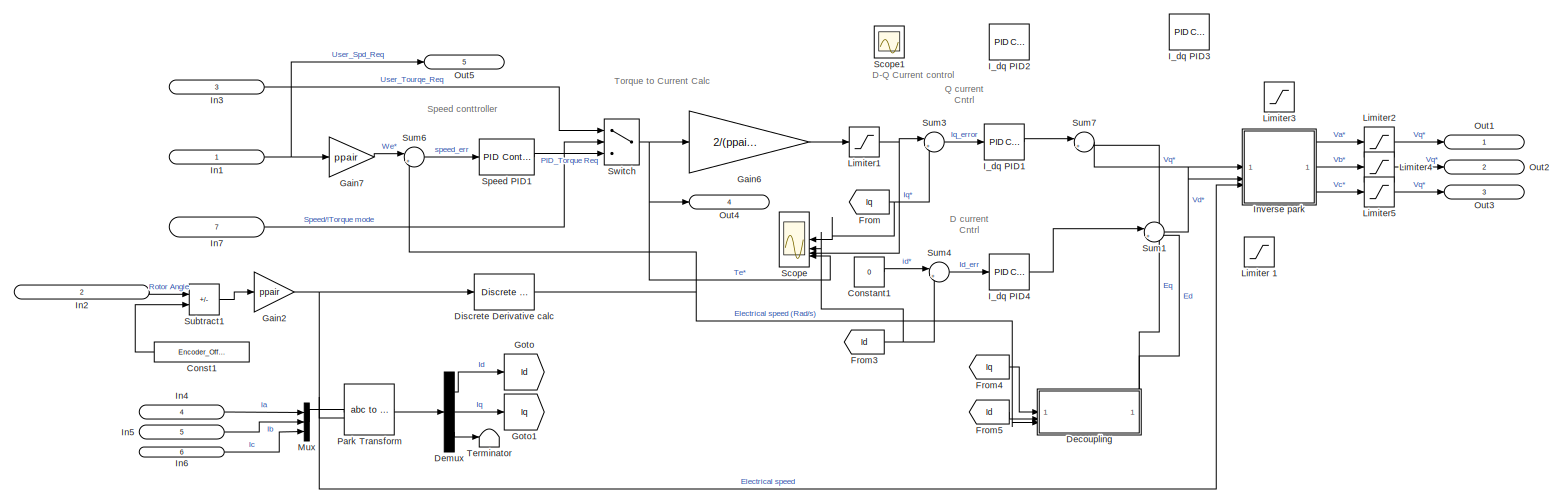
[diagram: Ideal Simulation Discrete Time/FIELD ORIENTED CONTROLLER - part 1/1, most of the canvas]
BLOCK [SubSystem] Ideal Simulation Discrete Time/FIELD ORIENTED CONTROLLER
  NameLocation = top
BLOCK [Constant] Ideal Simulation Discrete Time/FIELD ORIENTED CONTROLLER/Const1
  NameLocation = top
  Value = Encoder_Offset
BLOCK [Constant] Ideal Simulation Discrete Time/FIELD ORIENTED CONTROLLER/Constant1
  Value = 0
BLOCK [SubSystem] Ideal Simulation Discrete Time/FIELD ORIENTED CONTROLLER/Decoupling
  PortSchema = {"entries":[{"content":{"sides":[{"content":{"connectorIds":["In1","In2","In3"]},"type":"ConnectorPlacement.EquallySpacedRectSide","uuid":"5f512ccb-8595-4499-a419-e995908cd1f5"},{"content":{"side":"RIGHT"},"type":"ConnectorPlacement.EquallySpacedRectSide","uuid":"2a1de219-597a-4818-9587-d28590d7f25d"},{"content":{"connectorIds":["Out1","Out2"],"side":"TOP"},"type":"ConnectorPlacement.EquallySpaced...<+241ch>
BLOCK [Sum] Ideal Simulation Discrete Time/FIELD ORIENTED CONTROLLER/Decoupling/Add1
  IconShape = rectangular
BLOCK [Outport] Ideal Simulation Discrete Time/FIELD ORIENTED CONTROLLER/Decoupling/Ed
BLOCK [Outport] Ideal Simulation Discrete Time/FIELD ORIENTED CONTROLLER/Decoupling/Eq
  Port = 2
BLOCK [Gain] Ideal Simulation Discrete Time/FIELD ORIENTED CONTROLLER/Decoupling/Gain1
  Gain = -Lq
BLOCK [Gain] Ideal Simulation Discrete Time/FIELD ORIENTED CONTROLLER/Decoupling/Gain3
  Gain = Ld
BLOCK [Gain] Ideal Simulation Discrete Time/FIELD ORIENTED CONTROLLER/Decoupling/Gain4
  Gain = lambda
BLOCK [Inport] Ideal Simulation Discrete Time/FIELD ORIENTED CONTROLLER/Decoupling/Id
  Port = 2
BLOCK [Inport] Ideal Simulation Discrete Time/FIELD ORIENTED CONTROLLER/Decoupling/Iq
BLOCK [Product] Ideal Simulation Discrete Time/FIELD ORIENTED CONTROLLER/Decoupling/Product
BLOCK [Product] Ideal Simulation Discrete Time/FIELD ORIENTED CONTROLLER/Decoupling/Product1
BLOCK [Inport] Ideal Simulation Discrete Time/FIELD ORIENTED CONTROLLER/Decoupling/Speed
  Port = 3
BLOCK [Demux] Ideal Simulation Discrete Time/FIELD ORIENTED CONTROLLER/Demux
  Outputs = 3
BLOCK [Reference] Ideal Simulation Discrete Time/FIELD ORIENTED CONTROLLER/Discrete Derivative calc  REF=simulink/Discrete/Discrete Derivative
  SourceBlock = simulink/Discrete/Discrete Derivative
  SourceType = Discrete Derivative
BLOCK [From] Ideal Simulation Discrete Time/FIELD ORIENTED CONTROLLER/From
  GotoTag = Iq
BLOCK [From] Ideal Simulation Discrete Time/FIELD ORIENTED CONTROLLER/From3
  GotoTag = Id
BLOCK [From] Ideal Simulation Discrete Time/FIELD ORIENTED CONTROLLER/From4
  GotoTag = Iq
BLOCK [From] Ideal Simulation Discrete Time/FIELD ORIENTED CONTROLLER/From5
  GotoTag = Id
BLOCK [Gain] Ideal Simulation Discrete Time/FIELD ORIENTED CONTROLLER/Gain2
  Gain = ppair
BLOCK [Gain] Ideal Simulation Discrete Time/FIELD ORIENTED CONTROLLER/Gain6
  Gain = 2/(ppair*lambda*3)
BLOCK [Gain] Ideal Simulation Discrete Time/FIELD ORIENTED CONTROLLER/Gain7
  Gain = ppair
BLOCK [Goto] Ideal Simulation Discrete Time/FIELD ORIENTED CONTROLLER/Goto
  GotoTag = Id
BLOCK [Goto] Ideal Simulation Discrete Time/FIELD ORIENTED CONTROLLER/Goto1
  GotoTag = Iq
BLOCK [Reference] Ideal Simulation Discrete Time/FIELD ORIENTED CONTROLLER/I_dq PID1  REF=slpidlib/PID Controller
  LibrarySourceBlock = simulink/Continuous/PID Controller
  SourceBlock = slpidlib/PID Controller
  SourceType = PID 1dof
BLOCK [Reference] Ideal Simulation Discrete Time/FIELD ORIENTED CONTROLLER/I_dq PID2  REF=slpidlib/PID Controller
  LibrarySourceBlock = simulink/Continuous/PID Controller
  SourceBlock = slpidlib/PID Controller
  SourceType = PID 1dof
BLOCK [Reference] Ideal Simulation Discrete Time/FIELD ORIENTED CONTROLLER/I_dq PID3  REF=slpidlib/PID Controller
  LibrarySourceBlock = simulink/Continuous/PID Controller
  SourceBlock = slpidlib/PID Controller
  SourceType = PID 1dof
BLOCK [Reference] Ideal Simulation Discrete Time/FIELD ORIENTED CONTROLLER/I_dq PID4  REF=slpidlib/PID Controller
  LibrarySourceBlock = simulink/Continuous/PID Controller
  SourceBlock = slpidlib/PID Controller
  SourceType = PID 1dof
BLOCK [Inport] Ideal Simulation Discrete Time/FIELD ORIENTED CONTROLLER/In1
  IconDisplay = Port number and signal name
BLOCK [Inport] Ideal Simulation Discrete Time/FIELD ORIENTED CONTROLLER/In2
  IconDisplay = Signal name
  Port = 2
BLOCK [Inport] Ideal Simulation Discrete Time/FIELD ORIENTED CONTROLLER/In3
  IconDisplay = Port number and signal name
  Port = 3
BLOCK [Inport] Ideal Simulation Discrete Time/FIELD ORIENTED CONTROLLER/In4
  IconDisplay = Port number and signal name
  Port = 4
BLOCK [Inport] Ideal Simulation Discrete Time/FIELD ORIENTED CONTROLLER/In5
  IconDisplay = Port number and signal name
  Port = 5
BLOCK [Inport] Ideal Simulation Discrete Time/FIELD ORIENTED CONTROLLER/In6
  IconDisplay = Port number and signal name
  Port = 6
BLOCK [Inport] Ideal Simulation Discrete Time/FIELD ORIENTED CONTROLLER/In7
  IconDisplay = Port number and signal name
  Port = 7
BLOCK [SubSystem] Ideal Simulation Discrete Time/FIELD ORIENTED CONTROLLER/Inverse park
BLOCK [Sum] Ideal Simulation Discrete Time/FIELD ORIENTED CONTROLLER/Inverse park/Add
  IconShape = rectangular
  Inputs = +-
BLOCK [Sum] Ideal Simulation Discrete Time/FIELD ORIENTED CONTROLLER/Inverse park/Add1
  IconShape = rectangular
  Inputs = +-
BLOCK [Sum] Ideal Simulation Discrete Time/FIELD ORIENTED CONTROLLER/Inverse park/Add2
  IconShape = rectangular
  Inputs = +-
BLOCK [Bias] Ideal Simulation Discrete Time/FIELD ORIENTED CONTROLLER/Inverse park/Bias
  Bias = -2*pi/3
  SaturateOnIntegerOverflow = off
BLOCK [Bias] Ideal Simulation Discrete Time/FIELD ORIENTED CONTROLLER/Inverse park/Bias1
  Bias = 2*pi/3
  SaturateOnIntegerOverflow = off
BLOCK [Outport] Ideal Simulation Discrete Time/FIELD ORIENTED CONTROLLER/Inverse park/Duty Cycle A
  IconDisplay = Signal name
BLOCK [Outport] Ideal Simulation Discrete Time/FIELD ORIENTED CONTROLLER/Inverse park/Duty Cycle A1
  IconDisplay = Signal name
  Port = 2
BLOCK [Outport] Ideal Simulation Discrete Time/FIELD ORIENTED CONTROLLER/Inverse park/Duty Cycle A2
  IconDisplay = Signal name
  Port = 3
BLOCK [From] Ideal Simulation Discrete Time/FIELD ORIENTED CONTROLLER/Inverse park/From
  GotoTag = Theta
BLOCK [From] Ideal Simulation Discrete Time/FIELD ORIENTED CONTROLLER/Inverse park/From1
  GotoTag = Theta
BLOCK [From] Ideal Simulation Discrete Time/FIELD ORIENTED CONTROLLER/Inverse park/From2
  GotoTag = Id
BLOCK [From] Ideal Simulation Discrete Time/FIELD ORIENTED CONTROLLER/Inverse park/From3
  GotoTag = Iq
BLOCK [From] Ideal Simulation Discrete Time/FIELD ORIENTED CONTROLLER/Inverse park/From4
  GotoTag = Theta
BLOCK [From] Ideal Simulation Discrete Time/FIELD ORIENTED CONTROLLER/Inverse park/From5
  GotoTag = Id
BLOCK [From] Ideal Simulation Discrete Time/FIELD ORIENTED CONTROLLER/Inverse park/From6
  GotoTag = Id
BLOCK [From] Ideal Simulation Discrete Time/FIELD ORIENTED CONTROLLER/Inverse park/From7
  GotoTag = Iq
BLOCK [From] Ideal Simulation Discrete Time/FIELD ORIENTED CONTROLLER/Inverse park/From8
  GotoTag = Iq
BLOCK [Goto] Ideal Simulation Discrete Time/FIELD ORIENTED CONTROLLER/Inverse park/Goto
  GotoTag = Theta
BLOCK [Goto] Ideal Simulation Discrete Time/FIELD ORIENTED CONTROLLER/Inverse park/Goto1
  GotoTag = Id
BLOCK [Goto] Ideal Simulation Discrete Time/FIELD ORIENTED CONTROLLER/Inverse park/Goto2
  GotoTag = Iq
BLOCK [Inport] Ideal Simulation Discrete Time/FIELD ORIENTED CONTROLLER/Inverse park/In3
  IconDisplay = Signal name
  Port = 3
BLOCK [Inport] Ideal Simulation Discrete Time/FIELD ORIENTED CONTROLLER/Inverse park/Iq
  IconDisplay = Signal name
  Port = 2
BLOCK [Product] Ideal Simulation Discrete Time/FIELD ORIENTED CONTROLLER/Inverse park/Product
BLOCK [Product] Ideal Simulation Discrete Time/FIELD ORIENTED CONTROLLER/Inverse park/Product1
BLOCK [Product] Ideal Simulation Discrete Time/FIELD ORIENTED CONTROLLER/Inverse park/Product2
BLOCK [Product] Ideal Simulation Discrete Time/FIELD ORIENTED CONTROLLER/Inverse park/Product3
BLOCK [Product] Ideal Simulation Discrete Time/FIELD ORIENTED CONTROLLER/Inverse park/Product4
BLOCK [Product] Ideal Simulation Discrete Time/FIELD ORIENTED CONTROLLER/Inverse park/Product5
BLOCK [Trigonometry] Ideal Simulation Discrete Time/FIELD ORIENTED CONTROLLER/Inverse park/Trigonometric Function
  Operator = cos
BLOCK [Trigonometry] Ideal Simulation Discrete Time/FIELD ORIENTED CONTROLLER/Inverse park/Trigonometric Function1
BLOCK [Trigonometry] Ideal Simulation Discrete Time/FIELD ORIENTED CONTROLLER/Inverse park/Trigonometric Function2
  Operator = cos
BLOCK [Trigonometry] Ideal Simulation Discrete Time/FIELD ORIENTED CONTROLLER/Inverse park/Trigonometric Function3
BLOCK [Trigonometry] Ideal Simulation Discrete Time/FIELD ORIENTED CONTROLLER/Inverse park/Trigonometric Function4
  Operator = cos
BLOCK [Trigonometry] Ideal Simulation Discrete Time/FIELD ORIENTED CONTROLLER/Inverse park/Trigonometric Function5
BLOCK [Inport] Ideal Simulation Discrete Time/FIELD ORIENTED CONTROLLER/Inverse park/Vq
  IconDisplay = Signal name
BLOCK [Saturate] Ideal Simulation Discrete Time/FIELD ORIENTED CONTROLLER/Limiter 1
  Commented = on
  LinearizeAsGain = off
  LowerLimit = 0
  UpperLimit = Voltage_max
BLOCK [Saturate] Ideal Simulation Discrete Time/FIELD ORIENTED CONTROLLER/Limiter1
  LinearizeAsGain = off
  LowerLimit = -Current_max
  UpperLimit = Current_max
BLOCK [Saturate] Ideal Simulation Discrete Time/FIELD ORIENTED CONTROLLER/Limiter2
  LinearizeAsGain = off
  LowerLimit = -Voltage_max
  UpperLimit = Voltage_max
BLOCK [Saturate] Ideal Simulation Discrete Time/FIELD ORIENTED CONTROLLER/Limiter3
  LinearizeAsGain = off
  LowerLimit = 0
  UpperLimit = Voltage_max
BLOCK [Saturate] Ideal Simulation Discrete Time/FIELD ORIENTED CONTROLLER/Limiter4
  LinearizeAsGain = off
  LowerLimit = -Voltage_max
  UpperLimit = Voltage_max
BLOCK [Saturate] Ideal Simulation Discrete Time/FIELD ORIENTED CONTROLLER/Limiter5
  LinearizeAsGain = off
  LowerLimit = -Voltage_max
  UpperLimit = Voltage_max
BLOCK [Mux] Ideal Simulation Discrete Time/FIELD ORIENTED CONTROLLER/Mux
  DisplayOption = bar
  Inputs = 3
BLOCK [Outport] Ideal Simulation Discrete Time/FIELD ORIENTED CONTROLLER/Out1
  IconDisplay = Port number and signal name
BLOCK [Outport] Ideal Simulation Discrete Time/FIELD ORIENTED CONTROLLER/Out2
  IconDisplay = Port number and signal name
  Port = 2
BLOCK [Outport] Ideal Simulation Discrete Time/FIELD ORIENTED CONTROLLER/Out3
  IconDisplay = Port number and signal name
  Port = 3
BLOCK [Outport] Ideal Simulation Discrete Time/FIELD ORIENTED CONTROLLER/Out4
  IconDisplay = Port number and signal name
  Port = 4
BLOCK [Outport] Ideal Simulation Discrete Time/FIELD ORIENTED CONTROLLER/Out5
  IconDisplay = Port number and signal name
  Port = 5
BLOCK [Reference] Ideal Simulation Discrete Time/FIELD ORIENTED CONTROLLER/Park Transform  REF=spsabctodq0Lib/abc to dq0
  LibrarySourceBlock = sps_lib/Control/abc to dq0
  SourceBlock = spsabctodq0Lib/abc to dq0
  SourceType = abc to dq0 Transformation
BLOCK [Scope] Ideal Simulation Discrete Time/FIELD ORIENTED CONTROLLER/Scope
  Floating = off
  NameLocation = top
  NumInputPorts = 4
  ScopeSpecificationString = Simulink.scopes.TimeScopeBlockCfg('CurrentConfiguration', extmgr.ConfigurationSet(extmgr.Configuration('Core','General UI',true),extmgr.Configuration('Core','Source UI',true),extmgr.Configuration('Sources','WiredSimulink',true,'DataLoggingVariableName','ScopeData1'),extmgr.Configuration('Visuals','Time Domain',true,'SerializedDisplays',{struct('MinYLimReal','-1405789599056354.5','MaxYLimReal','992...<+3896ch>
BLOCK [Scope] Ideal Simulation Discrete Time/FIELD ORIENTED CONTROLLER/Scope1
  Floating = off
  NumInputPorts = 1
  ScopeSpecificationString = Simulink.scopes.TimeScopeBlockCfg('CurrentConfiguration', extmgr.ConfigurationSet(extmgr.Configuration('Core','General UI',true),extmgr.Configuration('Core','Source UI',true),extmgr.Configuration('Sources','WiredSimulink',true,'DataLoggingVariableName','ScopeData2'),extmgr.Configuration('Visuals','Time Domain',true),extmgr.Configuration('Tools','Plot Navigation',true),extmgr.Configuration('Tools',...<+40ch>
BLOCK [Reference] Ideal Simulation Discrete Time/FIELD ORIENTED CONTROLLER/Speed PID1  REF=slpidlib/PID Controller
  LibrarySourceBlock = simulink/Continuous/PID Controller
  SourceBlock = slpidlib/PID Controller
  SourceType = PID 1dof
BLOCK [Sum] Ideal Simulation Discrete Time/FIELD ORIENTED CONTROLLER/Subtract1
  IconShape = rectangular
  Inputs = +-
BLOCK [Sum] Ideal Simulation Discrete Time/FIELD ORIENTED CONTROLLER/Sum1
  Inputs = |++
BLOCK [Sum] Ideal Simulation Discrete Time/FIELD ORIENTED CONTROLLER/Sum3
  Inputs = |+-
BLOCK [Sum] Ideal Simulation Discrete Time/FIELD ORIENTED CONTROLLER/Sum4
  Inputs = |+-
BLOCK [Sum] Ideal Simulation Discrete Time/FIELD ORIENTED CONTROLLER/Sum6
  Inputs = |+-
BLOCK [Sum] Ideal Simulation Discrete Time/FIELD ORIENTED CONTROLLER/Sum7
  Inputs = |++
BLOCK [Switch] Ideal Simulation Discrete Time/FIELD ORIENTED CONTROLLER/Switch
  Criteria = u2 > Threshold
  InputSameDT = off
  SaturateOnIntegerOverflow = off
BLOCK [Terminator] Ideal Simulation Discrete Time/FIELD ORIENTED CONTROLLER/Terminator
BLOCK [From] Ideal Simulation Discrete Time/From
  GotoTag = i_abc
BLOCK [FromSpreadsheet] Ideal Simulation Discrete Time/From Spreadsheet
  Commented = on
  FileName = Inverter_Lap_Sim_Current_Calcs.xlsx
BLOCK [From] Ideal Simulation Discrete Time/From1
  GotoTag = T_e
BLOCK [From] Ideal Simulation Discrete Time/From2
  GotoTag = th_m
BLOCK [From] Ideal Simulation Discrete Time/From3
  Commented = on
  GotoTag = v_abc
BLOCK [From] Ideal Simulation Discrete Time/From4
  GotoTag = v_abc
BLOCK [From] Ideal Simulation Discrete Time/From5
  GotoTag = w_m
BLOCK [From] Ideal Simulation Discrete Time/From6
  GotoTag = th_m
BLOCK [From] Ideal Simulation Discrete Time/From7
  GotoTag = te_ref
BLOCK [From] Ideal Simulation Discrete Time/From8
  GotoTag = Wm_ref
BLOCK [Goto] Ideal Simulation Discrete Time/Goto
  Commented = on
  GotoTag = th_m
BLOCK [Goto] Ideal Simulation Discrete Time/Goto1
  Commented = on
  GotoTag = i_abc
BLOCK [Goto] Ideal Simulation Discrete Time/Goto10
  GotoTag = w_m
BLOCK [Goto] Ideal Simulation Discrete Time/Goto11
  GotoTag = th_m
BLOCK [Goto] Ideal Simulation Discrete Time/Goto12
  GotoTag = i_abc
BLOCK [Goto] Ideal Simulation Discrete Time/Goto13
  GotoTag = T_e
BLOCK [Goto] Ideal Simulation Discrete Time/Goto2
  GotoTag = v_abc
BLOCK [Goto] Ideal Simulation Discrete Time/Goto3
  GotoTag = te_ref
BLOCK [Goto] Ideal Simulation Discrete Time/Goto4
  GotoTag = Wm_ref
BLOCK [Goto] Ideal Simulation Discrete Time/Goto5
  Commented = on
  GotoTag = T_e
BLOCK [Goto] Ideal Simulation Discrete Time/Goto7
  Commented = on
  GotoTag = w_m
BLOCK [Scope] Ideal Simulation Discrete Time/Main Scope
  Floating = off
  NumInputPorts = 3
  ScopeSpecificationString = Simulink.scopes.TimeScopeBlockCfg('CurrentConfiguration', extmgr.ConfigurationSet(extmgr.Configuration('Core','General UI',true,'FigureColor',[1 1 1]),extmgr.Configuration('Core','Source UI',true),extmgr.Configuration('Sources','WiredSimulink',true,'DataLoggingVariableName','ScopeData1'),extmgr.Configuration('Visuals','Time Domain',true,'SerializedDisplays',{struct('MinYLimReal','-55.96074','MaxYL...<+3912ch>
BLOCK [Scope] Ideal Simulation Discrete Time/Main Scope1
  Floating = off
  NumInputPorts = 1
  ScopeSpecificationString = Simulink.scopes.TimeScopeBlockCfg('CurrentConfiguration', extmgr.ConfigurationSet(extmgr.Configuration('Core','General UI',true,'FigureColor',[1 1 1]),extmgr.Configuration('Core','Source UI',true),extmgr.Configuration('Sources','WiredSimulink',true,'DataLoggingVariableName','ScopeData1'),extmgr.Configuration('Visuals','Time Domain',true,'SerializedDisplays',{struct('MinYLimReal','-56.30765','MaxYL...<+3794ch>
BLOCK [Mux] Ideal Simulation Discrete Time/Mux
  DisplayOption = bar
  Inputs = 3
BLOCK [Mux] Ideal Simulation Discrete Time/Mux1
  DisplayOption = bar
  Inputs = 2
BLOCK [Mux] Ideal Simulation Discrete Time/Mux2
  DisplayOption = bar
  Inputs = 3
BLOCK [SubSystem] Ideal Simulation Discrete Time/PMSM Mathematical model
  Commented = on
BLOCK [Constant] Ideal Simulation Discrete Time/PMSM Mathematical model/Const1
  NameLocation = top
  Value = Encoder_Offset
BLOCK [Constant] Ideal Simulation Discrete Time/PMSM Mathematical model/Constant3
  Value = 0
BLOCK [Demux] Ideal Simulation Discrete Time/PMSM Mathematical model/Demux1
  Outputs = 3
BLOCK [Gain] Ideal Simulation Discrete Time/PMSM Mathematical model/Gain6
  Gain = 1/ppair
BLOCK [SubSystem] Ideal Simulation Discrete Time/PMSM Mathematical model/Machine Model in DQ
BLOCK [Constant] Ideal Simulation Discrete Time/PMSM Mathematical model/Machine Model in DQ/Constant
  Value = Lq*ppair
BLOCK [Constant] Ideal Simulation Discrete Time/PMSM Mathematical model/Machine Model in DQ/Constant1
  Value = Ld*ppair
BLOCK [From] Ideal Simulation Discrete Time/PMSM Mathematical model/Machine Model in DQ/From
  GotoTag = v_d
BLOCK [From] Ideal Simulation Discrete Time/PMSM Mathematical model/Machine Model in DQ/From1
  GotoTag = i_d
BLOCK [From] Ideal Simulation Discrete Time/PMSM Mathematical model/Machine Model in DQ/From10
  GotoTag = i_d
BLOCK [From] Ideal Simulation Discrete Time/PMSM Mathematical model/Machine Model in DQ/From11
  GotoTag = i_q
BLOCK [From] Ideal Simulation Discrete Time/PMSM Mathematical model/Machine Model in DQ/From12
  GotoTag = T_e
BLOCK [From] Ideal Simulation Discrete Time/PMSM Mathematical model/Machine Model in DQ/From13
  GotoTag = w_m
BLOCK [From] Ideal Simulation Discrete Time/PMSM Mathematical model/Machine Model in DQ/From14
  GotoTag = th_e
BLOCK [From] Ideal Simulation Discrete Time/PMSM Mathematical model/Machine Model in DQ/From2
  GotoTag = i_q
BLOCK [From] Ideal Simulation Discrete Time/PMSM Mathematical model/Machine Model in DQ/From3
  GotoTag = w_m
BLOCK [From] Ideal Simulation Discrete Time/PMSM Mathematical model/Machine Model in DQ/From4
  GotoTag = v_q
BLOCK [From] Ideal Simulation Discrete Time/PMSM Mathematical model/Machine Model in DQ/From5
  GotoTag = i_q
BLOCK [From] Ideal Simulation Discrete Time/PMSM Mathematical model/Machine Model in DQ/From6
  GotoTag = i_d
BLOCK [From] Ideal Simulation Discrete Time/PMSM Mathematical model/Machine Model in DQ/From7
  GotoTag = w_m
BLOCK [From] Ideal Simulation Discrete Time/PMSM Mathematical model/Machine Model in DQ/From8
  GotoTag = w_m
BLOCK [From] Ideal Simulation Discrete Time/PMSM Mathematical model/Machine Model in DQ/From9
  GotoTag = i_q
BLOCK [Gain] Ideal Simulation Discrete Time/PMSM Mathematical model/Machine Model in DQ/Gain
  Gain = 1/Ld
BLOCK [Gain] Ideal Simulation Discrete Time/PMSM Mathematical model/Machine Model in DQ/Gain1
  Gain = Rs
BLOCK [Gain] Ideal Simulation Discrete Time/PMSM Mathematical model/Machine Model in DQ/Gain2
  Gain = 1/Lq
BLOCK [Gain] Ideal Simulation Discrete Time/PMSM Mathematical model/Machine Model in DQ/Gain3
  Gain = Rs
BLOCK [Gain] Ideal Simulation Discrete Time/PMSM Mathematical model/Machine Model in DQ/Gain4
  Gain = ppair*lambda
BLOCK [Gain] Ideal Simulation Discrete Time/PMSM Mathematical model/Machine Model in DQ/Gain5
  Gain = 3/2*ppair*lambda
BLOCK [Gain] Ideal Simulation Discrete Time/PMSM Mathematical model/Machine Model in DQ/Gain6
  Gain = ppair
BLOCK [Goto] Ideal Simulation Discrete Time/PMSM Mathematical model/Machine Model in DQ/Goto
  GotoTag = i_d
BLOCK [Goto] Ideal Simulation Discrete Time/PMSM Mathematical model/Machine Model in DQ/Goto1
  GotoTag = i_q
BLOCK [Goto] Ideal Simulation Discrete Time/PMSM Mathematical model/Machine Model in DQ/Goto2
  GotoTag = T_e
BLOCK [Goto] Ideal Simulation Discrete Time/PMSM Mathematical model/Machine Model in DQ/Goto3
  GotoTag = v_d
BLOCK [Goto] Ideal Simulation Discrete Time/PMSM Mathematical model/Machine Model in DQ/Goto4
  GotoTag = v_q
BLOCK [Goto] Ideal Simulation Discrete Time/PMSM Mathematical model/Machine Model in DQ/Goto5
  GotoTag = w_m
BLOCK [Goto] Ideal Simulation Discrete Time/PMSM Mathematical model/Machine Model in DQ/Goto6
  GotoTag = w_e
BLOCK [Goto] Ideal Simulation Discrete Time/PMSM Mathematical model/Machine Model in DQ/Goto7
  GotoTag = th_e
BLOCK [Integrator] Ideal Simulation Discrete Time/PMSM Mathematical model/Machine Model in DQ/Integrator
BLOCK [Integrator] Ideal Simulation Discrete Time/PMSM Mathematical model/Machine Model in DQ/Integrator1
BLOCK [Integrator] Ideal Simulation Discrete Time/PMSM Mathematical model/Machine Model in DQ/Integrator2
BLOCK [Product] Ideal Simulation Discrete Time/PMSM Mathematical model/Machine Model in DQ/Product
  Inputs = 3
BLOCK [Product] Ideal Simulation Discrete Time/PMSM Mathematical model/Machine Model in DQ/Product1
  Inputs = 3
BLOCK [Sum] Ideal Simulation Discrete Time/PMSM Mathematical model/Machine Model in DQ/Sum
  IconShape = rectangular
  Inputs = +-+
BLOCK [Sum] Ideal Simulation Discrete Time/PMSM Mathematical model/Machine Model in DQ/Sum1
  IconShape = rectangular
  Inputs = +---
BLOCK [Outport] Ideal Simulation Discrete Time/PMSM Mathematical model/Machine Model in DQ/T_e
  Port = 4
BLOCK [Outport] Ideal Simulation Discrete Time/PMSM Mathematical model/Machine Model in DQ/i_d
BLOCK [Outport] Ideal Simulation Discrete Time/PMSM Mathematical model/Machine Model in DQ/i_q
  Port = 2
BLOCK [Outport] Ideal Simulation Discrete Time/PMSM Mathematical model/Machine Model in DQ/th_e
  Port = 3
BLOCK [Inport] Ideal Simulation Discrete Time/PMSM Mathematical model/Machine Model in DQ/v_d
BLOCK [Inport] Ideal Simulation Discrete Time/PMSM Mathematical model/Machine Model in DQ/v_q
  Port = 2
BLOCK [Inport] Ideal Simulation Discrete Time/PMSM Mathematical model/Machine Model in DQ/w_m
  Port = 3
BLOCK [SubSystem] Ideal Simulation Discrete Time/PMSM Mathematical model/Mechanical Model
BLOCK [Constant] Ideal Simulation Discrete Time/PMSM Mathematical model/Mechanical Model/Constant1
  Value = 1/2*rho*C_d*A_f*r^2
BLOCK [Constant] Ideal Simulation Discrete Time/PMSM Mathematical model/Mechanical Model/Constant2
  Value = m*g*C_rr
BLOCK [Gain] Ideal Simulation Discrete Time/PMSM Mathematical model/Mechanical Model/Gain
  Gain = 1/k^2
BLOCK [Product] Ideal Simulation Discrete Time/PMSM Mathematical model/Mechanical Model/Product
BLOCK [Product] Ideal Simulation Discrete Time/PMSM Mathematical model/Mechanical Model/Product2
BLOCK [Signum] Ideal Simulation Discrete Time/PMSM Mathematical model/Mechanical Model/Sign
BLOCK [Math] Ideal Simulation Discrete Time/PMSM Mathematical model/Mechanical Model/Square
  Operator = square
BLOCK [Sum] Ideal Simulation Discrete Time/PMSM Mathematical model/Mechanical Model/Subtract
  Inputs = |+-
BLOCK [Sum] Ideal Simulation Discrete Time/PMSM Mathematical model/Mechanical Model/Sum1
  Inputs = |++
BLOCK [Inport] Ideal Simulation Discrete Time/PMSM Mathematical model/Mechanical Model/T_e
BLOCK [TransferFcn] Ideal Simulation Discrete Time/PMSM Mathematical model/Mechanical Model/Transfer Fcn
  Denominator = [J 0]
BLOCK [Outport] Ideal Simulation Discrete Time/PMSM Mathematical model/Mechanical Model/w_m
BLOCK [Mux] Ideal Simulation Discrete Time/PMSM Mathematical model/Mux1
  DisplayOption = bar
  Inputs = 3
BLOCK [Outport] Ideal Simulation Discrete Time/PMSM Mathematical model/Out3
  IconDisplay = Signal name
  Port = 2
BLOCK [Sum] Ideal Simulation Discrete Time/PMSM Mathematical model/Subtract1
  IconShape = rectangular
BLOCK [Outport] Ideal Simulation Discrete Time/PMSM Mathematical model/T_e
  Port = 3
BLOCK [Terminator] Ideal Simulation Discrete Time/PMSM Mathematical model/Terminator
BLOCK [Inport] Ideal Simulation Discrete Time/PMSM Mathematical model/abc
BLOCK [Reference] Ideal Simulation Discrete Time/PMSM Mathematical model/abc to dq0  REF=spsabctodq0Lib/abc to dq0
  LibrarySourceBlock = sps_lib/Control/abc to dq0
  SourceBlock = spsabctodq0Lib/abc to dq0
  SourceType = abc to dq0 Transformation
BLOCK [Outport] Ideal Simulation Discrete Time/PMSM Mathematical model/abc1
BLOCK [Reference] Ideal Simulation Discrete Time/PMSM Mathematical model/dq0 to abc  REF=spsdq0toabcLib/dq0 to abc
  LibrarySourceBlock = sps_lib/Control/dq0 to abc
  SourceBlock = spsdq0toabcLib/dq0 to abc
  SourceType = dq0 to abc Transformation
BLOCK [Outport] Ideal Simulation Discrete Time/PMSM Mathematical model/w_m
  Port = 4
BLOCK [SubSystem] Ideal Simulation Discrete Time/PWM and PMSM Simscape (real model)
BLOCK [Constant] Ideal Simulation Discrete Time/PWM and PMSM Simscape (real model)/Constant
  NameLocation = top
  Value = Encoder_Offset
BLOCK [Constant] Ideal Simulation Discrete Time/PWM and PMSM Simscape (real model)/Constant1
  Value = 1/2*0.0001*C_d*A_f*r^2
BLOCK [Constant] Ideal Simulation Discrete Time/PWM and PMSM Simscape (real model)/Constant3
  Value = m*g*C_rr
BLOCK [Constant] Ideal Simulation Discrete Time/PWM and PMSM Simscape (real model)/Constant7
  Value = 0.5
BLOCK [Reference] Ideal Simulation Discrete Time/PWM and PMSM Simscape (real model)/Converter (Three-Phase)  REF=ee_lib/Semiconductors &
Converters/Converters/Converter
(Three-Phase)
  SourceBlock = ee_lib/Semiconductors &\nConverters/Converters/Converter\n(Three-Phase)
  SourceType = Converter\n(Three-Phase)
BLOCK [Reference] Ideal Simulation Discrete Time/PWM and PMSM Simscape (real model)/Current Sensor (Three-Phase)  REF=ee_lib/Sensors &
Transducers/Current Sensor
(Three-Phase)
  SourceBlock = ee_lib/Sensors &\nTransducers/Current Sensor\n(Three-Phase)
  SourceType = Current Sensor\n(Three-Phase)
BLOCK [Delay] Ideal Simulation Discrete Time/PWM and PMSM Simscape (real model)/Delay
  DelayLength = 1
  InputPortMap = u0
  NameLocation = right
BLOCK [Gain] Ideal Simulation Discrete Time/PWM and PMSM Simscape (real model)/Gain2
  Gain = 1/k^2
BLOCK [Gain] Ideal Simulation Discrete Time/PWM and PMSM Simscape (real model)/Gain5
  Gain = 1/Voltage_max
BLOCK [SubSystem] Ideal Simulation Discrete Time/PWM and PMSM Simscape (real model)/Gate Driver
BLOCK [Constant] Ideal Simulation Discrete Time/PWM and PMSM Simscape (real model)/Gate Driver/Constant2
BLOCK [Demux] Ideal Simulation Discrete Time/PWM and PMSM Simscape (real model)/Gate Driver/Demux3
  Outputs = 3
BLOCK [Demux] Ideal Simulation Discrete Time/PWM and PMSM Simscape (real model)/Gate Driver/Demux4
  Outputs = 3
BLOCK [Gain] Ideal Simulation Discrete Time/PWM and PMSM Simscape (real model)/Gate Driver/Gain2
  Gain = 12
BLOCK [Gain] Ideal Simulation Discrete Time/PWM and PMSM Simscape (real model)/Gate Driver/Gain3
  Gain = 12
BLOCK [PMIOPort] Ideal Simulation Discrete Time/PWM and PMSM Simscape (real model)/Gate Driver/Gate
  Side = Right
BLOCK [Scope] Ideal Simulation Discrete Time/PWM and PMSM Simscape (real model)/Gate Driver/Scope
  Floating = off
  NumInputPorts = 2
  ScopeSpecificationString = Simulink.scopes.TimeScopeBlockCfg('CurrentConfiguration', extmgr.ConfigurationSet(extmgr.Configuration('Core','General UI',true),extmgr.Configuration('Core','Source UI',true),extmgr.Configuration('Sources','WiredSimulink',true,'DataLoggingVariableName','ScopeData1'),extmgr.Configuration('Visuals','Time Domain',true,'SerializedDisplays',{struct('MinYLimReal','-1.5','MaxYLimReal','13.5','YLabelReal'...<+1590ch>
BLOCK [Inport] Ideal Simulation Discrete Time/PWM and PMSM Simscape (real model)/Gate Driver/Signal
BLOCK [Reference] Ideal Simulation Discrete Time/PWM and PMSM Simscape (real model)/Gate Driver/Simulink-PS Converter3  REF=nesl_utility/Simulink-PS
Converter
  SourceBlock = nesl_utility/Simulink-PS\nConverter
  SourceType = Simulink-PS\nConverter
BLOCK [Reference] Ideal Simulation Discrete Time/PWM and PMSM Simscape (real model)/Gate Driver/Simulink-PS Converter4  REF=nesl_utility/Simulink-PS
Converter
  SourceBlock = nesl_utility/Simulink-PS\nConverter
  SourceType = Simulink-PS\nConverter
BLOCK [Reference] Ideal Simulation Discrete Time/PWM and PMSM Simscape (real model)/Gate Driver/Simulink-PS Converter5  REF=nesl_utility/Simulink-PS
Converter
  SourceBlock = nesl_utility/Simulink-PS\nConverter
  SourceType = Simulink-PS\nConverter
BLOCK [Reference] Ideal Simulation Discrete Time/PWM and PMSM Simscape (real model)/Gate Driver/Simulink-PS Converter6  REF=nesl_utility/Simulink-PS
Converter
  SourceBlock = nesl_utility/Simulink-PS\nConverter
  SourceType = Simulink-PS\nConverter
BLOCK [Reference] Ideal Simulation Discrete Time/PWM and PMSM Simscape (real model)/Gate Driver/Simulink-PS Converter7  REF=nesl_utility/Simulink-PS
Converter
  SourceBlock = nesl_utility/Simulink-PS\nConverter
  SourceType = Simulink-PS\nConverter
BLOCK [Reference] Ideal Simulation Discrete Time/PWM and PMSM Simscape (real model)/Gate Driver/Simulink-PS Converter8  REF=nesl_utility/Simulink-PS
Converter
  SourceBlock = nesl_utility/Simulink-PS\nConverter
  SourceType = Simulink-PS\nConverter
BLOCK [Reference] Ideal Simulation Discrete Time/PWM and PMSM Simscape (real model)/Gate Driver/Six-Pulse Gate Multiplexer  REF=ee_lib/Semiconductors &
Converters/Converters/Six-Pulse Gate
Multiplexer
  SourceBlock = ee_lib/Semiconductors &\nConverters/Converters/Six-Pulse Gate\nMultiplexer
  SourceType = Six-Pulse Gate\nMultiplexer
BLOCK [Sum] Ideal Simulation Discrete Time/PWM and PMSM Simscape (real model)/Gate Driver/Subtract6
  Inputs = |+-
BLOCK [Outport] Ideal Simulation Discrete Time/PWM and PMSM Simscape (real model)/I_ABC
BLOCK [Reference] Ideal Simulation Discrete Time/PWM and PMSM Simscape (real model)/Ideal Rotational Motion Sensor  REF=fl_lib/Mechanical/Mechanical Sensors/Ideal Rotational
Motion Sensor
  NameLocation = left
  SourceBlock = fl_lib/Mechanical/Mechanical Sensors/Ideal Rotational\nMotion Sensor
  SourceType = Ideal Rotational\nMotion Sensor
BLOCK [Reference] Ideal Simulation Discrete Time/PWM and PMSM Simscape (real model)/Ideal Torque Sensor  REF=fl_lib/Mechanical/Mechanical Sensors/Ideal Torque Sensor
  NameLocation = top
  SourceBlock = fl_lib/Mechanical/Mechanical Sensors/Ideal Torque Sensor
  SourceType = Ideal Torque Sensor
BLOCK [Reference] Ideal Simulation Discrete Time/PWM and PMSM Simscape (real model)/Ideal Torque Source  REF=fl_lib/Mechanical/Mechanical Sources/Ideal Torque Source
  NameLocation = right
  SourceBlock = fl_lib/Mechanical/Mechanical Sources/Ideal Torque Source
  SourceType = Ideal Torque Source
BLOCK [Inport] Ideal Simulation Discrete Time/PWM and PMSM Simscape (real model)/In1
BLOCK [Reference] Ideal Simulation Discrete Time/PWM and PMSM Simscape (real model)/Inertia  REF=fl_lib/Mechanical/Rotational Elements/Inertia
  NameLocation = top
  SourceBlock = fl_lib/Mechanical/Rotational Elements/Inertia
  SourceType = Inertia
BLOCK [Reference] Ideal Simulation Discrete Time/PWM and PMSM Simscape (real model)/Mechanical Rotational Reference  REF=fl_lib/Mechanical/Rotational Elements/Mechanical
Rotational Reference
  NameLocation = right
  SourceBlock = fl_lib/Mechanical/Rotational Elements/Mechanical\nRotational Reference
  SourceType = Mechanical\nRotational Reference
BLOCK [Reference] Ideal Simulation Discrete Time/PWM and PMSM Simscape (real model)/Mechanical Rotational Reference1  REF=fl_lib/Mechanical/Rotational Elements/Mechanical
Rotational Reference
  NameLocation = right
  SourceBlock = fl_lib/Mechanical/Rotational Elements/Mechanical\nRotational Reference
  SourceType = Mechanical\nRotational Reference
BLOCK [Reference] Ideal Simulation Discrete Time/PWM and PMSM Simscape (real model)/PMSM  REF=ee_lib/Electromechanical/Permanent Magnet/PMSM
  SourceBlock = ee_lib/Electromechanical/Permanent Magnet/PMSM
  SourceType = PMSM
BLOCK [Reference] Ideal Simulation Discrete Time/PWM and PMSM Simscape (real model)/PS-Simulink Converter  REF=nesl_utility/PS-Simulink
Converter
  SourceBlock = nesl_utility/PS-Simulink\nConverter
  SourceType = PS-Simulink\nConverter
BLOCK [Reference] Ideal Simulation Discrete Time/PWM and PMSM Simscape (real model)/PS-Simulink Converter1  REF=nesl_utility/PS-Simulink
Converter
  SourceBlock = nesl_utility/PS-Simulink\nConverter
  SourceType = PS-Simulink\nConverter
BLOCK [Reference] Ideal Simulation Discrete Time/PWM and PMSM Simscape (real model)/PS-Simulink Converter2  REF=nesl_utility/PS-Simulink
Converter
  SourceBlock = nesl_utility/PS-Simulink\nConverter
  SourceType = PS-Simulink\nConverter
BLOCK [Reference] Ideal Simulation Discrete Time/PWM and PMSM Simscape (real model)/PS-Simulink Converter3  REF=nesl_utility/PS-Simulink
Converter
  SourceBlock = nesl_utility/PS-Simulink\nConverter
  SourceType = PS-Simulink\nConverter
BLOCK [Reference] Ideal Simulation Discrete Time/PWM and PMSM Simscape (real model)/PWM Generator  REF=eePwmGenerator/PWM Generator
  LibrarySourceBlock = ee_sl_lib/Pulse Width\nModulation/PWM Generator
  SourceBlock = eePwmGenerator/PWM Generator
  SourceType = PWM Generator
BLOCK [Product] Ideal Simulation Discrete Time/PWM and PMSM Simscape (real model)/Product
BLOCK [Product] Ideal Simulation Discrete Time/PWM and PMSM Simscape (real model)/Product2
BLOCK [Delay] Ideal Simulation Discrete Time/PWM and PMSM Simscape (real model)/Sampling Delay
  DelayLength = 1
  InputPortMap = u0
  SampleTime = 1e-6
BLOCK [Saturate] Ideal Simulation Discrete Time/PWM and PMSM Simscape (real model)/Saturation
  LowerLimit = 0
  UpperLimit = 1
BLOCK [Signum] Ideal Simulation Discrete Time/PWM and PMSM Simscape (real model)/Sign
BLOCK [Reference] Ideal Simulation Discrete Time/PWM and PMSM Simscape (real model)/Simulink-PS Converter  REF=nesl_utility/Simulink-PS
Converter
  NameLocation = right
  SourceBlock = nesl_utility/Simulink-PS\nConverter
  SourceType = Simulink-PS\nConverter
BLOCK [Reference] Ideal Simulation Discrete Time/PWM and PMSM Simscape (real model)/Solver Configuration  REF=nesl_utility/Solver
Configuration
  SourceBlock = nesl_utility/Solver\nConfiguration
  SourceType = Solver\nConfiguration
BLOCK [Math] Ideal Simulation Discrete Time/PWM and PMSM Simscape (real model)/Square
  Operator = square
BLOCK [Sum] Ideal Simulation Discrete Time/PWM and PMSM Simscape (real model)/Sum
  Inputs = |++
BLOCK [Sum] Ideal Simulation Discrete Time/PWM and PMSM Simscape (real model)/Sum1
  Inputs = |--
BLOCK [Sum] Ideal Simulation Discrete Time/PWM and PMSM Simscape (real model)/Sum2
  Inputs = |++
BLOCK [Outport] Ideal Simulation Discrete Time/PWM and PMSM Simscape (real model)/T_e
  Port = 2
BLOCK [Outport] Ideal Simulation Discrete Time/PWM and PMSM Simscape (real model)/Theta_M
  Port = 3
BLOCK [Reference] Ideal Simulation Discrete Time/PWM and PMSM Simscape (real model)/Voltage Source  REF=ee_lib/Sources/Voltage Source
  NameLocation = right
  SourceBlock = ee_lib/Sources/Voltage Source
  SourceType = Voltage Source
BLOCK [Outport] Ideal Simulation Discrete Time/PWM and PMSM Simscape (real model)/W_m
  Port = 4
BLOCK [Reference] Ideal Simulation Discrete Time/Slider Gain  REF=simulink/Math
Operations/Slider
Gain
  SourceBlock = simulink/Math\nOperations/Slider\nGain
  SourceType = Slider Gain
BLOCK [Reference] Ideal Simulation Discrete Time/Slider Gain1  REF=simulink/Math
Operations/Slider
Gain
  SourceBlock = simulink/Math\nOperations/Slider\nGain
  SourceType = Slider Gain
BLOCK [Constant] Ideal Simulation Discrete Time/Speed
  Value = speed_max
BLOCK [Constant] Ideal Simulation Discrete Time/Torque
  Value = Torque_max
BLOCK [SubSystem] Speed Controller Tuning
  Commented = on
BLOCK [Gain] Speed Controller Tuning/Gain2
  Gain = ppair
  NameLocation = top
BLOCK [Gain] Speed Controller Tuning/Gain7
  Gain = ppair
BLOCK [SubSystem] Speed Controller Tuning/Mechanical Model
  NameLocation = top
BLOCK [Constant] Speed Controller Tuning/Mechanical Model/Constant1
  Value = 1/2*rho*C_d*A_f*r^2
BLOCK [Gain] Speed Controller Tuning/Mechanical Model/Gain
  Gain = 1/k^2
BLOCK [Product] Speed Controller Tuning/Mechanical Model/Product2
BLOCK [Math] Speed Controller Tuning/Mechanical Model/Square
  Operator = square
BLOCK [Sum] Speed Controller Tuning/Mechanical Model/Subtract
  Inputs = |+-
BLOCK [Inport] Speed Controller Tuning/Mechanical Model/T_e
BLOCK [TransferFcn] Speed Controller Tuning/Mechanical Model/Transfer Fcn
  Denominator = [J 0]
BLOCK [Outport] Speed Controller Tuning/Mechanical Model/w_m
BLOCK [Reference] Speed Controller Tuning/Speed PID  REF=slpidlib/PID Controller
  Commented = on
  LibrarySourceBlock = simulink/Continuous/PID Controller
  SourceBlock = slpidlib/PID Controller
  SourceType = PID 1dof
BLOCK [Reference] Speed Controller Tuning/Speed PID1  REF=slpidlib/PID Controller
  Commented = on
  LibrarySourceBlock = simulink/Continuous/PID Controller
  SourceBlock = slpidlib/PID Controller
  SourceType = PID 1dof
BLOCK [Reference] Speed Controller Tuning/Speed PID2  REF=slpidlib/PID Controller
  LibrarySourceBlock = simulink/Continuous/PID Controller
  SourceBlock = slpidlib/PID Controller
  SourceType = PID 1dof
BLOCK [Constant] Speed Controller Tuning/Speed request (Rad//s)2
  Value = 1000
BLOCK [Sum] Speed Controller Tuning/Sum6
  Inputs = |+-
ANNOTATION Current Controller Tuning: PMSM (Mathematical Model)
ANNOTATION Current Controller Tuning: Q current Cntrl
ANNOTATION Current Controller Tuning: Use the PID tuner app to tune for bandwidth of at least 2000rad/s and PM of 90deg
ANNOTATION Ideal Simulation Continous Time/FIELD ORIENTED CONTROLLER: D current Cntrl
ANNOTATION Ideal Simulation Continous Time/FIELD ORIENTED CONTROLLER: D-Q Current control
ANNOTATION Ideal Simulation Continous Time/FIELD ORIENTED CONTROLLER: Q current Cntrl
ANNOTATION Ideal Simulation Continous Time/FIELD ORIENTED CONTROLLER: Speed conttroller
ANNOTATION Ideal Simulation Continous Time/FIELD ORIENTED CONTROLLER: Torque to Current Calc
ANNOTATION Ideal Simulation Continous Time/PMSM Mathematical model: PMSM (Mathematical Model)
ANNOTATION Ideal Simulation Continous Time/PWM and PMSM Simscape (real model): Electrical Aspects
ANNOTATION Ideal Simulation Continous Time/PWM and PMSM Simscape (real model): Friction Computation
ANNOTATION Ideal Simulation Continous Time/PWM and PMSM Simscape (real model): Measurements
ANNOTATION Ideal Simulation Continous Time/PWM and PMSM Simscape (real model): Mechanical Aspects
ANNOTATION Ideal Simulation Continous Time/PWM and PMSM Simscape (real model): PWM Generation:
ANNOTATION Ideal Simulation Discrete Time/FIELD ORIENTED CONTROLLER: D current Cntrl
ANNOTATION Ideal Simulation Discrete Time/FIELD ORIENTED CONTROLLER: D-Q Current control
ANNOTATION Ideal Simulation Discrete Time/FIELD ORIENTED CONTROLLER: Q current Cntrl
ANNOTATION Ideal Simulation Discrete Time/FIELD ORIENTED CONTROLLER: Speed conttroller
ANNOTATION Ideal Simulation Discrete Time/FIELD ORIENTED CONTROLLER: Torque to Current Calc
ANNOTATION Ideal Simulation Discrete Time/PMSM Mathematical model: PMSM (Mathematical Model)
ANNOTATION Ideal Simulation Discrete Time/PWM and PMSM Simscape (real model): Electrical Aspects
ANNOTATION Ideal Simulation Discrete Time/PWM and PMSM Simscape (real model): Friction Computation
ANNOTATION Ideal Simulation Discrete Time/PWM and PMSM Simscape (real model): Machine (Physical Model)
ANNOTATION Ideal Simulation Discrete Time/PWM and PMSM Simscape (real model): Measurements
ANNOTATION Ideal Simulation Discrete Time/PWM and PMSM Simscape (real model): Mechanical Aspects
ANNOTATION Ideal Simulation Discrete Time/PWM and PMSM Simscape (real model): PWM Generation:
ANNOTATION Speed Controller Tuning: Tuned for 100rad/s BW and 90deg PM
LINE Current Controller Tuning/I_dq PID:1 -> Current Controller Tuning/Machine Model in DQ1:1
LINE Current Controller Tuning/Machine Model in DQ1/Constant1:1 -> Current Controller Tuning/Machine Model in DQ1/Product1:1
LINE Current Controller Tuning/Machine Model in DQ1/Constant:1 -> Current Controller Tuning/Machine Model in DQ1/Product:1
LINE Current Controller Tuning/Machine Model in DQ1/From11:1 -> Current Controller Tuning/Machine Model in DQ1/i_q:1
LINE Current Controller Tuning/Machine Model in DQ1/From12:1 -> Current Controller Tuning/Machine Model in DQ1/T_e:1
LINE Current Controller Tuning/Machine Model in DQ1/From13:1 -> Current Controller Tuning/Machine Model in DQ1/Gain6:1
LINE Current Controller Tuning/Machine Model in DQ1/From1:1 -> Current Controller Tuning/Machine Model in DQ1/Gain1:1
LINE Current Controller Tuning/Machine Model in DQ1/From2:1 -> Current Controller Tuning/Machine Model in DQ1/Product:3
LINE Current Controller Tuning/Machine Model in DQ1/From3:1 -> Current Controller Tuning/Machine Model in DQ1/Product:2
LINE Current Controller Tuning/Machine Model in DQ1/From4:1 -> Current Controller Tuning/Machine Model in DQ1/Sum1:1
LINE Current Controller Tuning/Machine Model in DQ1/From5:1 -> Current Controller Tuning/Machine Model in DQ1/Gain3:1
LINE Current Controller Tuning/Machine Model in DQ1/From6:1 -> Current Controller Tuning/Machine Model in DQ1/Product1:3
LINE Current Controller Tuning/Machine Model in DQ1/From7:1 -> Current Controller Tuning/Machine Model in DQ1/Product1:2
LINE Current Controller Tuning/Machine Model in DQ1/From8:1 -> Current Controller Tuning/Machine Model in DQ1/Gain4:1
LINE Current Controller Tuning/Machine Model in DQ1/From9:1 -> Current Controller Tuning/Machine Model in DQ1/Gain5:1
LINE Current Controller Tuning/Machine Model in DQ1/From:1 -> Current Controller Tuning/Machine Model in DQ1/Sum:1
LINE Current Controller Tuning/Machine Model in DQ1/Gain1:1 -> Current Controller Tuning/Machine Model in DQ1/Sum:2
LINE Current Controller Tuning/Machine Model in DQ1/Gain2:1 -> Current Controller Tuning/Machine Model in DQ1/Integrator1:1
LINE Current Controller Tuning/Machine Model in DQ1/Gain3:1 -> Current Controller Tuning/Machine Model in DQ1/Sum1:2
LINE Current Controller Tuning/Machine Model in DQ1/Gain4:1 -> Current Controller Tuning/Machine Model in DQ1/Sum1:4
LINE Current Controller Tuning/Machine Model in DQ1/Gain5:1 -> Current Controller Tuning/Machine Model in DQ1/Goto2:1
NET Current Controller Tuning/Machine Model in DQ1/Gain6:1 -> Current Controller Tuning/Machine Model in DQ1/Goto6:1, Current Controller Tuning/Machine Model in DQ1/Integrator2:1
LINE Current Controller Tuning/Machine Model in DQ1/Gain:1 -> Current Controller Tuning/Machine Model in DQ1/Integrator:1
LINE Current Controller Tuning/Machine Model in DQ1/Integrator1:1 -> Current Controller Tuning/Machine Model in DQ1/Goto1:1
LINE Current Controller Tuning/Machine Model in DQ1/Integrator2:1 -> Current Controller Tuning/Machine Model in DQ1/Goto7:1
LINE Current Controller Tuning/Machine Model in DQ1/Integrator:1 -> Current Controller Tuning/Machine Model in DQ1/Goto:1
LINE Current Controller Tuning/Machine Model in DQ1/Product1:1 -> Current Controller Tuning/Machine Model in DQ1/Sum1:3
LINE Current Controller Tuning/Machine Model in DQ1/Product:1 -> Current Controller Tuning/Machine Model in DQ1/Sum:3
LINE Current Controller Tuning/Machine Model in DQ1/Sum1:1 -> Current Controller Tuning/Machine Model in DQ1/Gain2:1
LINE Current Controller Tuning/Machine Model in DQ1/Sum:1 -> Current Controller Tuning/Machine Model in DQ1/Gain:1
LINE Current Controller Tuning/Machine Model in DQ1/v_q:1 -> Current Controller Tuning/Machine Model in DQ1/Goto4:1
LINE Current Controller Tuning/Machine Model in DQ1/w_m:1 -> Current Controller Tuning/Machine Model in DQ1/Goto5:1
LINE Current Controller Tuning/Machine Model in DQ1:1 -> Current Controller Tuning/Sum3:2
LINE Current Controller Tuning/Machine Model in DQ1:2 -> Current Controller Tuning/Mechanical Model:1
LINE Current Controller Tuning/Mechanical Model/Constant1:1 -> Current Controller Tuning/Mechanical Model/Product2:1
LINE Current Controller Tuning/Mechanical Model/Gain:1 -> Current Controller Tuning/Mechanical Model/Subtract:2
LINE Current Controller Tuning/Mechanical Model/Product2:1 -> Current Controller Tuning/Mechanical Model/Gain:1
LINE Current Controller Tuning/Mechanical Model/Square:1 -> Current Controller Tuning/Mechanical Model/Product2:2
LINE Current Controller Tuning/Mechanical Model/Subtract:1 -> Current Controller Tuning/Mechanical Model/Transfer Fcn:1
LINE Current Controller Tuning/Mechanical Model/T_e:1 -> Current Controller Tuning/Mechanical Model/Subtract:1
NET Current Controller Tuning/Mechanical Model/Transfer Fcn:1 -> Current Controller Tuning/Mechanical Model/Square:1, Current Controller Tuning/Mechanical Model/w_m:1
LINE Current Controller Tuning/Mechanical Model:1 -> Current Controller Tuning/Machine Model in DQ1:2
LINE Current Controller Tuning/Sum3:1 -> Current Controller Tuning/I_dq PID:1
LINE Current Controller Tuning/current request1:1 -> Current Controller Tuning/Sum3:1
LINE Ideal Simulation Continous Time/Constant1:1 -> Ideal Simulation Continous Time/FIELD ORIENTED CONTROLLER:1
LINE Ideal Simulation Continous Time/Constant2:1 -> Ideal Simulation Continous Time/FIELD ORIENTED CONTROLLER:3
LINE Ideal Simulation Continous Time/Constant:1 -> Ideal Simulation Continous Time/FIELD ORIENTED CONTROLLER:7
LINE Ideal Simulation Continous Time/Demux:1 -> Ideal Simulation Continous Time/FIELD ORIENTED CONTROLLER:4
LINE Ideal Simulation Continous Time/Demux:2 -> Ideal Simulation Continous Time/FIELD ORIENTED CONTROLLER:5
LINE Ideal Simulation Continous Time/Demux:3 -> Ideal Simulation Continous Time/FIELD ORIENTED CONTROLLER:6
LINE Ideal Simulation Continous Time/FIELD ORIENTED CONTROLLER/Const1:1 -> Ideal Simulation Continous Time/FIELD ORIENTED CONTROLLER/Sum:2
LINE Ideal Simulation Continous Time/FIELD ORIENTED CONTROLLER/Constant2:1 -> Ideal Simulation Continous Time/FIELD ORIENTED CONTROLLER/Sum8:1
LINE Ideal Simulation Continous Time/FIELD ORIENTED CONTROLLER/Decoupling1/Add1:1 -> Ideal Simulation Continous Time/FIELD ORIENTED CONTROLLER/Decoupling1/Eq:1
LINE Ideal Simulation Continous Time/FIELD ORIENTED CONTROLLER/Decoupling1/Gain1:1 -> Ideal Simulation Continous Time/FIELD ORIENTED CONTROLLER/Decoupling1/Product:2
LINE Ideal Simulation Continous Time/FIELD ORIENTED CONTROLLER/Decoupling1/Gain3:1 -> Ideal Simulation Continous Time/FIELD ORIENTED CONTROLLER/Decoupling1/Product1:1
LINE Ideal Simulation Continous Time/FIELD ORIENTED CONTROLLER/Decoupling1/Gain4:1 -> Ideal Simulation Continous Time/FIELD ORIENTED CONTROLLER/Decoupling1/Add1:2
LINE Ideal Simulation Continous Time/FIELD ORIENTED CONTROLLER/Decoupling1/Id:1 -> Ideal Simulation Continous Time/FIELD ORIENTED CONTROLLER/Decoupling1/Product1:2
LINE Ideal Simulation Continous Time/FIELD ORIENTED CONTROLLER/Decoupling1/Iq:1 -> Ideal Simulation Continous Time/FIELD ORIENTED CONTROLLER/Decoupling1/Product:1
LINE Ideal Simulation Continous Time/FIELD ORIENTED CONTROLLER/Decoupling1/Product1:1 -> Ideal Simulation Continous Time/FIELD ORIENTED CONTROLLER/Decoupling1/Add1:1
LINE Ideal Simulation Continous Time/FIELD ORIENTED CONTROLLER/Decoupling1/Product:1 -> Ideal Simulation Continous Time/FIELD ORIENTED CONTROLLER/Decoupling1/Ed:1
NET Ideal Simulation Continous Time/FIELD ORIENTED CONTROLLER/Decoupling1/Speed:1 -> Ideal Simulation Continous Time/FIELD ORIENTED CONTROLLER/Decoupling1/Gain1:1, Ideal Simulation Continous Time/FIELD ORIENTED CONTROLLER/Decoupling1/Gain3:1, Ideal Simulation Continous Time/FIELD ORIENTED CONTROLLER/Decoupling1/Gain4:1
LINE Ideal Simulation Continous Time/FIELD ORIENTED CONTROLLER/Decoupling1:1 -> Ideal Simulation Continous Time/FIELD ORIENTED CONTROLLER/Sum10:2
LINE Ideal Simulation Continous Time/FIELD ORIENTED CONTROLLER/Decoupling1:2 -> Ideal Simulation Continous Time/FIELD ORIENTED CONTROLLER/Sum2:2
LINE Ideal Simulation Continous Time/FIELD ORIENTED CONTROLLER/Demux1:1 -> Ideal Simulation Continous Time/FIELD ORIENTED CONTROLLER/Goto2:1
LINE Ideal Simulation Continous Time/FIELD ORIENTED CONTROLLER/Demux1:2 -> Ideal Simulation Continous Time/FIELD ORIENTED CONTROLLER/Goto3:1
LINE Ideal Simulation Continous Time/FIELD ORIENTED CONTROLLER/Demux1:3 -> Ideal Simulation Continous Time/FIELD ORIENTED CONTROLLER/Terminator1:1
NET Ideal Simulation Continous Time/FIELD ORIENTED CONTROLLER/Derivative1:1 -> Ideal Simulation Continous Time/FIELD ORIENTED CONTROLLER/Decoupling1:3, Ideal Simulation Continous Time/FIELD ORIENTED CONTROLLER/Sum9:2
LINE Ideal Simulation Continous Time/FIELD ORIENTED CONTROLLER/From6:1 -> Ideal Simulation Continous Time/FIELD ORIENTED CONTROLLER/Decoupling1:1
LINE Ideal Simulation Continous Time/FIELD ORIENTED CONTROLLER/From7:1 -> Ideal Simulation Continous Time/FIELD ORIENTED CONTROLLER/Decoupling1:2
NET Ideal Simulation Continous Time/FIELD ORIENTED CONTROLLER/Gain1:1 -> Ideal Simulation Continous Time/FIELD ORIENTED CONTROLLER/Derivative1:1, Ideal Simulation Continous Time/FIELD ORIENTED CONTROLLER/Inverse park1:3, Ideal Simulation Continous Time/FIELD ORIENTED CONTROLLER/Park Transform1:2
LINE Ideal Simulation Continous Time/FIELD ORIENTED CONTROLLER/Gain3:1 -> Ideal Simulation Continous Time/FIELD ORIENTED CONTROLLER/Limiter3:1
LINE Ideal Simulation Continous Time/FIELD ORIENTED CONTROLLER/Gain4:1 -> Ideal Simulation Continous Time/FIELD ORIENTED CONTROLLER/Sum9:1
LINE Ideal Simulation Continous Time/FIELD ORIENTED CONTROLLER/I_dq PID2:1 -> Ideal Simulation Continous Time/FIELD ORIENTED CONTROLLER/Sum10:1
LINE Ideal Simulation Continous Time/FIELD ORIENTED CONTROLLER/I_dq PID4:1 -> Ideal Simulation Continous Time/FIELD ORIENTED CONTROLLER/Sum2:1
LINE Ideal Simulation Continous Time/FIELD ORIENTED CONTROLLER/In10:1 -> Ideal Simulation Continous Time/FIELD ORIENTED CONTROLLER/Switch1:1
LINE Ideal Simulation Continous Time/FIELD ORIENTED CONTROLLER/In11:1 -> Ideal Simulation Continous Time/FIELD ORIENTED CONTROLLER/Mux1:1
LINE Ideal Simulation Continous Time/FIELD ORIENTED CONTROLLER/In12:1 -> Ideal Simulation Continous Time/FIELD ORIENTED CONTROLLER/Mux1:2
LINE Ideal Simulation Continous Time/FIELD ORIENTED CONTROLLER/In13:1 -> Ideal Simulation Continous Time/FIELD ORIENTED CONTROLLER/Mux1:3
LINE Ideal Simulation Continous Time/FIELD ORIENTED CONTROLLER/In14:1 -> Ideal Simulation Continous Time/FIELD ORIENTED CONTROLLER/Switch1:2
LINE Ideal Simulation Continous Time/FIELD ORIENTED CONTROLLER/In8:1 -> Ideal Simulation Continous Time/FIELD ORIENTED CONTROLLER/Saturation1:1
LINE Ideal Simulation Continous Time/FIELD ORIENTED CONTROLLER/In9:1 -> Ideal Simulation Continous Time/FIELD ORIENTED CONTROLLER/Sum:1
LINE Ideal Simulation Continous Time/FIELD ORIENTED CONTROLLER/Inverse park1/Add2:1 -> Ideal Simulation Continous Time/FIELD ORIENTED CONTROLLER/Inverse park1/Duty Cycle A2:1
LINE Ideal Simulation Continous Time/FIELD ORIENTED CONTROLLER/Inverse park1/Add4:1 -> Ideal Simulation Continous Time/FIELD ORIENTED CONTROLLER/Inverse park1/Duty Cycle A1:1
LINE Ideal Simulation Continous Time/FIELD ORIENTED CONTROLLER/Inverse park1/Add5:1 -> Ideal Simulation Continous Time/FIELD ORIENTED CONTROLLER/Inverse park1/Duty Cycle A:1
NET Ideal Simulation Continous Time/FIELD ORIENTED CONTROLLER/Inverse park1/Bias1:1 -> Ideal Simulation Continous Time/FIELD ORIENTED CONTROLLER/Inverse park1/Trigonometric Function4:1, Ideal Simulation Continous Time/FIELD ORIENTED CONTROLLER/Inverse park1/Trigonometric Function5:1
NET Ideal Simulation Continous Time/FIELD ORIENTED CONTROLLER/Inverse park1/Bias:1 -> Ideal Simulation Continous Time/FIELD ORIENTED CONTROLLER/Inverse park1/Trigonometric Function2:1, Ideal Simulation Continous Time/FIELD ORIENTED CONTROLLER/Inverse park1/Trigonometric Function3:1
LINE Ideal Simulation Continous Time/FIELD ORIENTED CONTROLLER/Inverse park1/From1:1 -> Ideal Simulation Continous Time/FIELD ORIENTED CONTROLLER/Inverse park1/Bias1:1
LINE Ideal Simulation Continous Time/FIELD ORIENTED CONTROLLER/Inverse park1/From2:1 -> Ideal Simulation Continous Time/FIELD ORIENTED CONTROLLER/Inverse park1/Product:1
LINE Ideal Simulation Continous Time/FIELD ORIENTED CONTROLLER/Inverse park1/From3:1 -> Ideal Simulation Continous Time/FIELD ORIENTED CONTROLLER/Inverse park1/Product1:2
LINE Ideal Simulation Continous Time/FIELD ORIENTED CONTROLLER/Inverse park1/From4:1 -> Ideal Simulation Continous Time/FIELD ORIENTED CONTROLLER/Inverse park1/Bias:1
LINE Ideal Simulation Continous Time/FIELD ORIENTED CONTROLLER/Inverse park1/From5:1 -> Ideal Simulation Continous Time/FIELD ORIENTED CONTROLLER/Inverse park1/Product4:1
LINE Ideal Simulation Continous Time/FIELD ORIENTED CONTROLLER/Inverse park1/From6:1 -> Ideal Simulation Continous Time/FIELD ORIENTED CONTROLLER/Inverse park1/Product2:1
LINE Ideal Simulation Continous Time/FIELD ORIENTED CONTROLLER/Inverse park1/From7:1 -> Ideal Simulation Continous Time/FIELD ORIENTED CONTROLLER/Inverse park1/Product3:2
LINE Ideal Simulation Continous Time/FIELD ORIENTED CONTROLLER/Inverse park1/From8:1 -> Ideal Simulation Continous Time/FIELD ORIENTED CONTROLLER/Inverse park1/Product5:2
NET Ideal Simulation Continous Time/FIELD ORIENTED CONTROLLER/Inverse park1/From:1 -> Ideal Simulation Continous Time/FIELD ORIENTED CONTROLLER/Inverse park1/Trigonometric Function1:1, Ideal Simulation Continous Time/FIELD ORIENTED CONTROLLER/Inverse park1/Trigonometric Function:1
LINE Ideal Simulation Continous Time/FIELD ORIENTED CONTROLLER/Inverse park1/In3:1 -> Ideal Simulation Continous Time/FIELD ORIENTED CONTROLLER/Inverse park1/Goto:1
LINE Ideal Simulation Continous Time/FIELD ORIENTED CONTROLLER/Inverse park1/Iq:1 -> Ideal Simulation Continous Time/FIELD ORIENTED CONTROLLER/Inverse park1/Goto1:1
LINE Ideal Simulation Continous Time/FIELD ORIENTED CONTROLLER/Inverse park1/Product1:1 -> Ideal Simulation Continous Time/FIELD ORIENTED CONTROLLER/Inverse park1/Add5:2
LINE Ideal Simulation Continous Time/FIELD ORIENTED CONTROLLER/Inverse park1/Product2:1 -> Ideal Simulation Continous Time/FIELD ORIENTED CONTROLLER/Inverse park1/Add4:1
LINE Ideal Simulation Continous Time/FIELD ORIENTED CONTROLLER/Inverse park1/Product3:1 -> Ideal Simulation Continous Time/FIELD ORIENTED CONTROLLER/Inverse park1/Add4:2
LINE Ideal Simulation Continous Time/FIELD ORIENTED CONTROLLER/Inverse park1/Product4:1 -> Ideal Simulation Continous Time/FIELD ORIENTED CONTROLLER/Inverse park1/Add2:1
LINE Ideal Simulation Continous Time/FIELD ORIENTED CONTROLLER/Inverse park1/Product5:1 -> Ideal Simulation Continous Time/FIELD ORIENTED CONTROLLER/Inverse park1/Add2:2
LINE Ideal Simulation Continous Time/FIELD ORIENTED CONTROLLER/Inverse park1/Product:1 -> Ideal Simulation Continous Time/FIELD ORIENTED CONTROLLER/Inverse park1/Add5:1
LINE Ideal Simulation Continous Time/FIELD ORIENTED CONTROLLER/Inverse park1/Trigonometric Function1:1 -> Ideal Simulation Continous Time/FIELD ORIENTED CONTROLLER/Inverse park1/Product1:1
LINE Ideal Simulation Continous Time/FIELD ORIENTED CONTROLLER/Inverse park1/Trigonometric Function2:1 -> Ideal Simulation Continous Time/FIELD ORIENTED CONTROLLER/Inverse park1/Product2:2
LINE Ideal Simulation Continous Time/FIELD ORIENTED CONTROLLER/Inverse park1/Trigonometric Function3:1 -> Ideal Simulation Continous Time/FIELD ORIENTED CONTROLLER/Inverse park1/Product3:1
LINE Ideal Simulation Continous Time/FIELD ORIENTED CONTROLLER/Inverse park1/Trigonometric Function4:1 -> Ideal Simulation Continous Time/FIELD ORIENTED CONTROLLER/Inverse park1/Product4:2
LINE Ideal Simulation Continous Time/FIELD ORIENTED CONTROLLER/Inverse park1/Trigonometric Function5:1 -> Ideal Simulation Continous Time/FIELD ORIENTED CONTROLLER/Inverse park1/Product5:1
LINE Ideal Simulation Continous Time/FIELD ORIENTED CONTROLLER/Inverse park1/Trigonometric Function:1 -> Ideal Simulation Continous Time/FIELD ORIENTED CONTROLLER/Inverse park1/Product:2
LINE Ideal Simulation Continous Time/FIELD ORIENTED CONTROLLER/Inverse park1/Vq:1 -> Ideal Simulation Continous Time/FIELD ORIENTED CONTROLLER/Inverse park1/Goto2:1
LINE Ideal Simulation Continous Time/FIELD ORIENTED CONTROLLER/Inverse park1:1 -> Ideal Simulation Continous Time/FIELD ORIENTED CONTROLLER/Out6:1
LINE Ideal Simulation Continous Time/FIELD ORIENTED CONTROLLER/Inverse park1:2 -> Ideal Simulation Continous Time/FIELD ORIENTED CONTROLLER/Out7:1
LINE Ideal Simulation Continous Time/FIELD ORIENTED CONTROLLER/Inverse park1:3 -> Ideal Simulation Continous Time/FIELD ORIENTED CONTROLLER/Out8:1
LINE Ideal Simulation Continous Time/FIELD ORIENTED CONTROLLER/Limiter 2:1 -> Ideal Simulation Continous Time/FIELD ORIENTED CONTROLLER/Inverse park1:2
LINE Ideal Simulation Continous Time/FIELD ORIENTED CONTROLLER/Limiter2:1 -> Ideal Simulation Continous Time/FIELD ORIENTED CONTROLLER/Inverse park1:1
LINE Ideal Simulation Continous Time/FIELD ORIENTED CONTROLLER/Limiter3:1 -> Ideal Simulation Continous Time/FIELD ORIENTED CONTROLLER/Sum5:1
LINE Ideal Simulation Continous Time/FIELD ORIENTED CONTROLLER/Mux1:1 -> Ideal Simulation Continous Time/FIELD ORIENTED CONTROLLER/Park Transform1:1
LINE Ideal Simulation Continous Time/FIELD ORIENTED CONTROLLER/Park Transform1:1 -> Ideal Simulation Continous Time/FIELD ORIENTED CONTROLLER/Demux1:1
NET Ideal Simulation Continous Time/FIELD ORIENTED CONTROLLER/Saturation1:1 -> Ideal Simulation Continous Time/FIELD ORIENTED CONTROLLER/Gain4:1, Ideal Simulation Continous Time/FIELD ORIENTED CONTROLLER/Out10:1
NET Ideal Simulation Continous Time/FIELD ORIENTED CONTROLLER/Saturation2:1 -> Ideal Simulation Continous Time/FIELD ORIENTED CONTROLLER/Gain3:1, Ideal Simulation Continous Time/FIELD ORIENTED CONTROLLER/Out9:1
LINE Ideal Simulation Continous Time/FIELD ORIENTED CONTROLLER/Speed PD1:1 -> Ideal Simulation Continous Time/FIELD ORIENTED CONTROLLER/Switch1:3
LINE Ideal Simulation Continous Time/FIELD ORIENTED CONTROLLER/Sum10:1 -> Ideal Simulation Continous Time/FIELD ORIENTED CONTROLLER/Limiter2:1
LINE Ideal Simulation Continous Time/FIELD ORIENTED CONTROLLER/Sum2:1 -> Ideal Simulation Continous Time/FIELD ORIENTED CONTROLLER/Limiter 2:1
LINE Ideal Simulation Continous Time/FIELD ORIENTED CONTROLLER/Sum5:1 -> Ideal Simulation Continous Time/FIELD ORIENTED CONTROLLER/I_dq PID2:1
LINE Ideal Simulation Continous Time/FIELD ORIENTED CONTROLLER/Sum8:1 -> Ideal Simulation Continous Time/FIELD ORIENTED CONTROLLER/I_dq PID4:1
LINE Ideal Simulation Continous Time/FIELD ORIENTED CONTROLLER/Sum9:1 -> Ideal Simulation Continous Time/FIELD ORIENTED CONTROLLER/Speed PD1:1
LINE Ideal Simulation Continous Time/FIELD ORIENTED CONTROLLER/Sum:1 -> Ideal Simulation Continous Time/FIELD ORIENTED CONTROLLER/Gain1:1
LINE Ideal Simulation Continous Time/FIELD ORIENTED CONTROLLER/Switch1:1 -> Ideal Simulation Continous Time/FIELD ORIENTED CONTROLLER/Saturation2:1
LINE Ideal Simulation Continous Time/FIELD ORIENTED CONTROLLER:1 -> Ideal Simulation Continous Time/Mux:1
LINE Ideal Simulation Continous Time/FIELD ORIENTED CONTROLLER:2 -> Ideal Simulation Continous Time/Mux:2
LINE Ideal Simulation Continous Time/FIELD ORIENTED CONTROLLER:3 -> Ideal Simulation Continous Time/Mux:3
LINE Ideal Simulation Continous Time/FIELD ORIENTED CONTROLLER:4 -> Ideal Simulation Continous Time/Goto3:1
LINE Ideal Simulation Continous Time/FIELD ORIENTED CONTROLLER:5 -> Ideal Simulation Continous Time/Goto4:1
LINE Ideal Simulation Continous Time/From1:1 -> Ideal Simulation Continous Time/Mux1:2
LINE Ideal Simulation Continous Time/From2:1 -> Ideal Simulation Continous Time/FIELD ORIENTED CONTROLLER:2
LINE Ideal Simulation Continous Time/From3:1 -> Ideal Simulation Continous Time/PMSM Mathematical model:1
LINE Ideal Simulation Continous Time/From4:1 -> Ideal Simulation Continous Time/PWM and PMSM Simscape (real model):1
LINE Ideal Simulation Continous Time/From5:1 -> Ideal Simulation Continous Time/Mux2:1
LINE Ideal Simulation Continous Time/From6:1 -> Ideal Simulation Continous Time/Mux2:3
LINE Ideal Simulation Continous Time/From7:1 -> Ideal Simulation Continous Time/Mux1:1
LINE Ideal Simulation Continous Time/From8:1 -> Ideal Simulation Continous Time/Mux2:2
NET Ideal Simulation Continous Time/From:1 -> Ideal Simulation Continous Time/Demux:1, Ideal Simulation Continous Time/Main Scope:1
LINE Ideal Simulation Continous Time/Mux1:1 -> Ideal Simulation Continous Time/Main Scope:3
LINE Ideal Simulation Continous Time/Mux2:1 -> Ideal Simulation Continous Time/Main Scope:2
LINE Ideal Simulation Continous Time/Mux:1 -> Ideal Simulation Continous Time/Goto2:1
LINE Ideal Simulation Continous Time/PMSM Mathematical model/Constant3:1 -> Ideal Simulation Continous Time/PMSM Mathematical model/Mux1:3
LINE Ideal Simulation Continous Time/PMSM Mathematical model/Constant:1 -> Ideal Simulation Continous Time/PMSM Mathematical model/Sum:2
LINE Ideal Simulation Continous Time/PMSM Mathematical model/Demux1:1 -> Ideal Simulation Continous Time/PMSM Mathematical model/Machine Model in DQ:1
LINE Ideal Simulation Continous Time/PMSM Mathematical model/Demux1:2 -> Ideal Simulation Continous Time/PMSM Mathematical model/Machine Model in DQ:2
LINE Ideal Simulation Continous Time/PMSM Mathematical model/Demux1:3 -> Ideal Simulation Continous Time/PMSM Mathematical model/Terminator:1
LINE Ideal Simulation Continous Time/PMSM Mathematical model/Gain6:1 -> Ideal Simulation Continous Time/PMSM Mathematical model/Sum:1
LINE Ideal Simulation Continous Time/PMSM Mathematical model/Machine Model in DQ/Constant1:1 -> Ideal Simulation Continous Time/PMSM Mathematical model/Machine Model in DQ/Product1:1
LINE Ideal Simulation Continous Time/PMSM Mathematical model/Machine Model in DQ/Constant:1 -> Ideal Simulation Continous Time/PMSM Mathematical model/Machine Model in DQ/Product:1
LINE Ideal Simulation Continous Time/PMSM Mathematical model/Machine Model in DQ/From10:1 -> Ideal Simulation Continous Time/PMSM Mathematical model/Machine Model in DQ/i_d:1
LINE Ideal Simulation Continous Time/PMSM Mathematical model/Machine Model in DQ/From11:1 -> Ideal Simulation Continous Time/PMSM Mathematical model/Machine Model in DQ/i_q:1
LINE Ideal Simulation Continous Time/PMSM Mathematical model/Machine Model in DQ/From12:1 -> Ideal Simulation Continous Time/PMSM Mathematical model/Machine Model in DQ/T_e:1
LINE Ideal Simulation Continous Time/PMSM Mathematical model/Machine Model in DQ/From13:1 -> Ideal Simulation Continous Time/PMSM Mathematical model/Machine Model in DQ/Gain6:1
LINE Ideal Simulation Continous Time/PMSM Mathematical model/Machine Model in DQ/From14:1 -> Ideal Simulation Continous Time/PMSM Mathematical model/Machine Model in DQ/th_e:1
LINE Ideal Simulation Continous Time/PMSM Mathematical model/Machine Model in DQ/From1:1 -> Ideal Simulation Continous Time/PMSM Mathematical model/Machine Model in DQ/Gain1:1
LINE Ideal Simulation Continous Time/PMSM Mathematical model/Machine Model in DQ/From2:1 -> Ideal Simulation Continous Time/PMSM Mathematical model/Machine Model in DQ/Product:3
LINE Ideal Simulation Continous Time/PMSM Mathematical model/Machine Model in DQ/From3:1 -> Ideal Simulation Continous Time/PMSM Mathematical model/Machine Model in DQ/Product:2
LINE Ideal Simulation Continous Time/PMSM Mathematical model/Machine Model in DQ/From4:1 -> Ideal Simulation Continous Time/PMSM Mathematical model/Machine Model in DQ/Sum1:1
LINE Ideal Simulation Continous Time/PMSM Mathematical model/Machine Model in DQ/From5:1 -> Ideal Simulation Continous Time/PMSM Mathematical model/Machine Model in DQ/Gain3:1
LINE Ideal Simulation Continous Time/PMSM Mathematical model/Machine Model in DQ/From6:1 -> Ideal Simulation Continous Time/PMSM Mathematical model/Machine Model in DQ/Product1:3
LINE Ideal Simulation Continous Time/PMSM Mathematical model/Machine Model in DQ/From7:1 -> Ideal Simulation Continous Time/PMSM Mathematical model/Machine Model in DQ/Product1:2
LINE Ideal Simulation Continous Time/PMSM Mathematical model/Machine Model in DQ/From8:1 -> Ideal Simulation Continous Time/PMSM Mathematical model/Machine Model in DQ/Gain4:1
LINE Ideal Simulation Continous Time/PMSM Mathematical model/Machine Model in DQ/From9:1 -> Ideal Simulation Continous Time/PMSM Mathematical model/Machine Model in DQ/Gain5:1
LINE Ideal Simulation Continous Time/PMSM Mathematical model/Machine Model in DQ/From:1 -> Ideal Simulation Continous Time/PMSM Mathematical model/Machine Model in DQ/Sum:1
LINE Ideal Simulation Continous Time/PMSM Mathematical model/Machine Model in DQ/Gain1:1 -> Ideal Simulation Continous Time/PMSM Mathematical model/Machine Model in DQ/Sum:2
LINE Ideal Simulation Continous Time/PMSM Mathematical model/Machine Model in DQ/Gain2:1 -> Ideal Simulation Continous Time/PMSM Mathematical model/Machine Model in DQ/Integrator1:1
LINE Ideal Simulation Continous Time/PMSM Mathematical model/Machine Model in DQ/Gain3:1 -> Ideal Simulation Continous Time/PMSM Mathematical model/Machine Model in DQ/Sum1:2
LINE Ideal Simulation Continous Time/PMSM Mathematical model/Machine Model in DQ/Gain4:1 -> Ideal Simulation Continous Time/PMSM Mathematical model/Machine Model in DQ/Sum1:4
LINE Ideal Simulation Continous Time/PMSM Mathematical model/Machine Model in DQ/Gain5:1 -> Ideal Simulation Continous Time/PMSM Mathematical model/Machine Model in DQ/Goto2:1
NET Ideal Simulation Continous Time/PMSM Mathematical model/Machine Model in DQ/Gain6:1 -> Ideal Simulation Continous Time/PMSM Mathematical model/Machine Model in DQ/Goto6:1, Ideal Simulation Continous Time/PMSM Mathematical model/Machine Model in DQ/Integrator2:1
LINE Ideal Simulation Continous Time/PMSM Mathematical model/Machine Model in DQ/Gain:1 -> Ideal Simulation Continous Time/PMSM Mathematical model/Machine Model in DQ/Integrator:1
LINE Ideal Simulation Continous Time/PMSM Mathematical model/Machine Model in DQ/Integrator1:1 -> Ideal Simulation Continous Time/PMSM Mathematical model/Machine Model in DQ/Goto1:1
LINE Ideal Simulation Continous Time/PMSM Mathematical model/Machine Model in DQ/Integrator2:1 -> Ideal Simulation Continous Time/PMSM Mathematical model/Machine Model in DQ/Goto7:1
LINE Ideal Simulation Continous Time/PMSM Mathematical model/Machine Model in DQ/Integrator:1 -> Ideal Simulation Continous Time/PMSM Mathematical model/Machine Model in DQ/Goto:1
LINE Ideal Simulation Continous Time/PMSM Mathematical model/Machine Model in DQ/Product1:1 -> Ideal Simulation Continous Time/PMSM Mathematical model/Machine Model in DQ/Sum1:3
LINE Ideal Simulation Continous Time/PMSM Mathematical model/Machine Model in DQ/Product:1 -> Ideal Simulation Continous Time/PMSM Mathematical model/Machine Model in DQ/Sum:3
LINE Ideal Simulation Continous Time/PMSM Mathematical model/Machine Model in DQ/Sum1:1 -> Ideal Simulation Continous Time/PMSM Mathematical model/Machine Model in DQ/Gain2:1
LINE Ideal Simulation Continous Time/PMSM Mathematical model/Machine Model in DQ/Sum:1 -> Ideal Simulation Continous Time/PMSM Mathematical model/Machine Model in DQ/Gain:1
LINE Ideal Simulation Continous Time/PMSM Mathematical model/Machine Model in DQ/v_d:1 -> Ideal Simulation Continous Time/PMSM Mathematical model/Machine Model in DQ/Goto3:1
LINE Ideal Simulation Continous Time/PMSM Mathematical model/Machine Model in DQ/v_q:1 -> Ideal Simulation Continous Time/PMSM Mathematical model/Machine Model in DQ/Goto4:1
LINE Ideal Simulation Continous Time/PMSM Mathematical model/Machine Model in DQ/w_m:1 -> Ideal Simulation Continous Time/PMSM Mathematical model/Machine Model in DQ/Goto5:1
LINE Ideal Simulation Continous Time/PMSM Mathematical model/Machine Model in DQ:1 -> Ideal Simulation Continous Time/PMSM Mathematical model/Mux1:1
LINE Ideal Simulation Continous Time/PMSM Mathematical model/Machine Model in DQ:2 -> Ideal Simulation Continous Time/PMSM Mathematical model/Mux1:2
NET Ideal Simulation Continous Time/PMSM Mathematical model/Machine Model in DQ:3 -> Ideal Simulation Continous Time/PMSM Mathematical model/Gain6:1, Ideal Simulation Continous Time/PMSM Mathematical model/abc to dq0:2, Ideal Simulation Continous Time/PMSM Mathematical model/dq0 to abc:2
NET Ideal Simulation Continous Time/PMSM Mathematical model/Machine Model in DQ:4 -> Ideal Simulation Continous Time/PMSM Mathematical model/Mechanical Model:1, Ideal Simulation Continous Time/PMSM Mathematical model/T_e:1
LINE Ideal Simulation Continous Time/PMSM Mathematical model/Mechanical Model/Constant1:1 -> Ideal Simulation Continous Time/PMSM Mathematical model/Mechanical Model/Product2:1
LINE Ideal Simulation Continous Time/PMSM Mathematical model/Mechanical Model/Constant2:1 -> Ideal Simulation Continous Time/PMSM Mathematical model/Mechanical Model/Product:1
LINE Ideal Simulation Continous Time/PMSM Mathematical model/Mechanical Model/Gain:1 -> Ideal Simulation Continous Time/PMSM Mathematical model/Mechanical Model/Sum1:1
LINE Ideal Simulation Continous Time/PMSM Mathematical model/Mechanical Model/Product2:1 -> Ideal Simulation Continous Time/PMSM Mathematical model/Mechanical Model/Gain:1
LINE Ideal Simulation Continous Time/PMSM Mathematical model/Mechanical Model/Product:1 -> Ideal Simulation Continous Time/PMSM Mathematical model/Mechanical Model/Sum1:2
LINE Ideal Simulation Continous Time/PMSM Mathematical model/Mechanical Model/Sign:1 -> Ideal Simulation Continous Time/PMSM Mathematical model/Mechanical Model/Product:2
LINE Ideal Simulation Continous Time/PMSM Mathematical model/Mechanical Model/Square:1 -> Ideal Simulation Continous Time/PMSM Mathematical model/Mechanical Model/Product2:2
LINE Ideal Simulation Continous Time/PMSM Mathematical model/Mechanical Model/Subtract:1 -> Ideal Simulation Continous Time/PMSM Mathematical model/Mechanical Model/Transfer Fcn:1
LINE Ideal Simulation Continous Time/PMSM Mathematical model/Mechanical Model/Sum1:1 -> Ideal Simulation Continous Time/PMSM Mathematical model/Mechanical Model/Subtract:2
LINE Ideal Simulation Continous Time/PMSM Mathematical model/Mechanical Model/T_e:1 -> Ideal Simulation Continous Time/PMSM Mathematical model/Mechanical Model/Subtract:1
NET Ideal Simulation Continous Time/PMSM Mathematical model/Mechanical Model/Transfer Fcn:1 -> Ideal Simulation Continous Time/PMSM Mathematical model/Mechanical Model/Sign:1, Ideal Simulation Continous Time/PMSM Mathematical model/Mechanical Model/Square:1, Ideal Simulation Continous Time/PMSM Mathematical model/Mechanical Model/w_m:1
NET Ideal Simulation Continous Time/PMSM Mathematical model/Mechanical Model:1 -> Ideal Simulation Continous Time/PMSM Mathematical model/Machine Model in DQ:3, Ideal Simulation Continous Time/PMSM Mathematical model/w_m:1
LINE Ideal Simulation Continous Time/PMSM Mathematical model/Mux1:1 -> Ideal Simulation Continous Time/PMSM Mathematical model/dq0 to abc:1
LINE Ideal Simulation Continous Time/PMSM Mathematical model/Sum:1 -> Ideal Simulation Continous Time/PMSM Mathematical model/Out3:1
LINE Ideal Simulation Continous Time/PMSM Mathematical model/abc to dq0:1 -> Ideal Simulation Continous Time/PMSM Mathematical model/Demux1:1
LINE Ideal Simulation Continous Time/PMSM Mathematical model/abc:1 -> Ideal Simulation Continous Time/PMSM Mathematical model/abc to dq0:1
LINE Ideal Simulation Continous Time/PMSM Mathematical model/dq0 to abc:1 -> Ideal Simulation Continous Time/PMSM Mathematical model/abc1:1
LINE Ideal Simulation Continous Time/PMSM Mathematical model:1 -> Ideal Simulation Continous Time/Goto1:1
LINE Ideal Simulation Continous Time/PMSM Mathematical model:2 -> Ideal Simulation Continous Time/Goto:1
LINE Ideal Simulation Continous Time/PMSM Mathematical model:3 -> Ideal Simulation Continous Time/Goto5:1
LINE Ideal Simulation Continous Time/PMSM Mathematical model:4 -> Ideal Simulation Continous Time/Goto7:1
LINE Ideal Simulation Continous Time/PWM and PMSM Simscape (real model)/Constant1:1 -> Ideal Simulation Continous Time/PWM and PMSM Simscape (real model)/Product2:1
LINE Ideal Simulation Continous Time/PWM and PMSM Simscape (real model)/Constant2:1 -> Ideal Simulation Continous Time/PWM and PMSM Simscape (real model)/Simulink-PS Converter1:1
LINE Ideal Simulation Continous Time/PWM and PMSM Simscape (real model)/Constant3:1 -> Ideal Simulation Continous Time/PWM and PMSM Simscape (real model)/Product:1
LINE Ideal Simulation Continous Time/PWM and PMSM Simscape (real model)/Constant7:1 -> Ideal Simulation Continous Time/PWM and PMSM Simscape (real model)/Sum:2
LINE Ideal Simulation Continous Time/PWM and PMSM Simscape (real model)/Constant:1 -> Ideal Simulation Continous Time/PWM and PMSM Simscape (real model)/Sum2:2
LINE Ideal Simulation Continous Time/PWM and PMSM Simscape (real model)/Delay:1 -> Ideal Simulation Continous Time/PWM and PMSM Simscape (real model)/Simulink-PS Converter:1
LINE Ideal Simulation Continous Time/PWM and PMSM Simscape (real model)/Gain2:1 -> Ideal Simulation Continous Time/PWM and PMSM Simscape (real model)/Delay:1
LINE Ideal Simulation Continous Time/PWM and PMSM Simscape (real model)/Gain5:1 -> Ideal Simulation Continous Time/PWM and PMSM Simscape (real model)/Sum:1
LINE Ideal Simulation Continous Time/PWM and PMSM Simscape (real model)/Gate Driver/Constant2:1 -> Ideal Simulation Continous Time/PWM and PMSM Simscape (real model)/Gate Driver/Subtract6:1
NET Ideal Simulation Continous Time/PWM and PMSM Simscape (real model)/Gate Driver/Demux3:1 -> Ideal Simulation Continous Time/PWM and PMSM Simscape (real model)/Gate Driver/Scope:1, Ideal Simulation Continous Time/PWM and PMSM Simscape (real model)/Gate Driver/Simulink-PS Converter4:1
LINE Ideal Simulation Continous Time/PWM and PMSM Simscape (real model)/Gate Driver/Demux3:2 -> Ideal Simulation Continous Time/PWM and PMSM Simscape (real model)/Gate Driver/Simulink-PS Converter6:1
LINE Ideal Simulation Continous Time/PWM and PMSM Simscape (real model)/Gate Driver/Demux3:3 -> Ideal Simulation Continous Time/PWM and PMSM Simscape (real model)/Gate Driver/Simulink-PS Converter8:1
NET Ideal Simulation Continous Time/PWM and PMSM Simscape (real model)/Gate Driver/Demux4:1 -> Ideal Simulation Continous Time/PWM and PMSM Simscape (real model)/Gate Driver/Scope:2, Ideal Simulation Continous Time/PWM and PMSM Simscape (real model)/Gate Driver/Simulink-PS Converter3:1
LINE Ideal Simulation Continous Time/PWM and PMSM Simscape (real model)/Gate Driver/Demux4:2 -> Ideal Simulation Continous Time/PWM and PMSM Simscape (real model)/Gate Driver/Simulink-PS Converter5:1
LINE Ideal Simulation Continous Time/PWM and PMSM Simscape (real model)/Gate Driver/Demux4:3 -> Ideal Simulation Continous Time/PWM and PMSM Simscape (real model)/Gate Driver/Simulink-PS Converter7:1
LINE Ideal Simulation Continous Time/PWM and PMSM Simscape (real model)/Gate Driver/Gain2:1 -> Ideal Simulation Continous Time/PWM and PMSM Simscape (real model)/Gate Driver/Demux3:1
LINE Ideal Simulation Continous Time/PWM and PMSM Simscape (real model)/Gate Driver/Gain3:1 -> Ideal Simulation Continous Time/PWM and PMSM Simscape (real model)/Gate Driver/Demux4:1
NET Ideal Simulation Continous Time/PWM and PMSM Simscape (real model)/Gate Driver/Signal:1 -> Ideal Simulation Continous Time/PWM and PMSM Simscape (real model)/Gate Driver/Gain3:1, Ideal Simulation Continous Time/PWM and PMSM Simscape (real model)/Gate Driver/Subtract6:2
LINE Ideal Simulation Continous Time/PWM and PMSM Simscape (real model)/Gate Driver/Subtract6:1 -> Ideal Simulation Continous Time/PWM and PMSM Simscape (real model)/Gate Driver/Gain2:1
LINE Ideal Simulation Continous Time/PWM and PMSM Simscape (real model)/In1:1 -> Ideal Simulation Continous Time/PWM and PMSM Simscape (real model)/Gain5:1
NET Ideal Simulation Continous Time/PWM and PMSM Simscape (real model)/PS-Simulink Converter1:1 -> Ideal Simulation Continous Time/PWM and PMSM Simscape (real model)/Sign:1, Ideal Simulation Continous Time/PWM and PMSM Simscape (real model)/Square:1, Ideal Simulation Continous Time/PWM and PMSM Simscape (real model)/W_m:1
NET Ideal Simulation Continous Time/PWM and PMSM Simscape (real model)/PS-Simulink Converter2:1 -> Ideal Simulation Continous Time/PWM and PMSM Simscape (real model)/I_ABC:1, Ideal Simulation Continous Time/PWM and PMSM Simscape (real model)/Scope:3
LINE Ideal Simulation Continous Time/PWM and PMSM Simscape (real model)/PS-Simulink Converter3:1 -> Ideal Simulation Continous Time/PWM and PMSM Simscape (real model)/T_e:1
LINE Ideal Simulation Continous Time/PWM and PMSM Simscape (real model)/PS-Simulink Converter4:1 -> Ideal Simulation Continous Time/PWM and PMSM Simscape (real model)/I_DC:1
LINE Ideal Simulation Continous Time/PWM and PMSM Simscape (real model)/PS-Simulink Converter:1 -> Ideal Simulation Continous Time/PWM and PMSM Simscape (real model)/Sum2:1
NET Ideal Simulation Continous Time/PWM and PMSM Simscape (real model)/PWM Generator:1 -> Ideal Simulation Continous Time/PWM and PMSM Simscape (real model)/Gate Driver:1, Ideal Simulation Continous Time/PWM and PMSM Simscape (real model)/Scope:2
LINE Ideal Simulation Continous Time/PWM and PMSM Simscape (real model)/Product2:1 -> Ideal Simulation Continous Time/PWM and PMSM Simscape (real model)/Sum1:1
LINE Ideal Simulation Continous Time/PWM and PMSM Simscape (real model)/Product:1 -> Ideal Simulation Continous Time/PWM and PMSM Simscape (real model)/Sum1:2
LINE Ideal Simulation Continous Time/PWM and PMSM Simscape (real model)/Sampling Delay:1 -> Ideal Simulation Continous Time/PWM and PMSM Simscape (real model)/Saturation:1
LINE Ideal Simulation Continous Time/PWM and PMSM Simscape (real model)/Saturation:1 -> Ideal Simulation Continous Time/PWM and PMSM Simscape (real model)/PWM Generator:1
LINE Ideal Simulation Continous Time/PWM and PMSM Simscape (real model)/Sign:1 -> Ideal Simulation Continous Time/PWM and PMSM Simscape (real model)/Product:2
LINE Ideal Simulation Continous Time/PWM and PMSM Simscape (real model)/Square:1 -> Ideal Simulation Continous Time/PWM and PMSM Simscape (real model)/Product2:2
LINE Ideal Simulation Continous Time/PWM and PMSM Simscape (real model)/Sum1:1 -> Ideal Simulation Continous Time/PWM and PMSM Simscape (real model)/Gain2:1
LINE Ideal Simulation Continous Time/PWM and PMSM Simscape (real model)/Sum2:1 -> Ideal Simulation Continous Time/PWM and PMSM Simscape (real model)/Theta_M:1
NET Ideal Simulation Continous Time/PWM and PMSM Simscape (real model)/Sum:1 -> Ideal Simulation Continous Time/PWM and PMSM Simscape (real model)/Sampling Delay:1, Ideal Simulation Continous Time/PWM and PMSM Simscape (real model)/Scope:1
LINE Ideal Simulation Continous Time/PWM and PMSM Simscape (real model):1 -> Ideal Simulation Continous Time/Goto12:1
LINE Ideal Simulation Continous Time/PWM and PMSM Simscape (real model):2 -> Ideal Simulation Continous Time/Goto13:1
LINE Ideal Simulation Continous Time/PWM and PMSM Simscape (real model):3 -> Ideal Simulation Continous Time/Goto11:1
LINE Ideal Simulation Continous Time/PWM and PMSM Simscape (real model):4 -> Ideal Simulation Continous Time/Goto10:1
LINE Ideal Simulation Continous Time/PWM and PMSM Simscape (real model):5 -> Ideal Simulation Continous Time/Main Scope:4
LINE Ideal Simulation Discrete Time/Constant:1 -> Ideal Simulation Discrete Time/FIELD ORIENTED CONTROLLER:7
LINE Ideal Simulation Discrete Time/Demux:1 -> Ideal Simulation Discrete Time/FIELD ORIENTED CONTROLLER:4
LINE Ideal Simulation Discrete Time/Demux:2 -> Ideal Simulation Discrete Time/FIELD ORIENTED CONTROLLER:5
LINE Ideal Simulation Discrete Time/Demux:3 -> Ideal Simulation Discrete Time/FIELD ORIENTED CONTROLLER:6
LINE Ideal Simulation Discrete Time/FIELD ORIENTED CONTROLLER/Const1:1 -> Ideal Simulation Discrete Time/FIELD ORIENTED CONTROLLER/Subtract1:2
LINE Ideal Simulation Discrete Time/FIELD ORIENTED CONTROLLER/Constant1:1 -> Ideal Simulation Discrete Time/FIELD ORIENTED CONTROLLER/Sum4:1
LINE Ideal Simulation Discrete Time/FIELD ORIENTED CONTROLLER/Decoupling/Add1:1 -> Ideal Simulation Discrete Time/FIELD ORIENTED CONTROLLER/Decoupling/Eq:1
LINE Ideal Simulation Discrete Time/FIELD ORIENTED CONTROLLER/Decoupling/Gain1:1 -> Ideal Simulation Discrete Time/FIELD ORIENTED CONTROLLER/Decoupling/Product:2
LINE Ideal Simulation Discrete Time/FIELD ORIENTED CONTROLLER/Decoupling/Gain3:1 -> Ideal Simulation Discrete Time/FIELD ORIENTED CONTROLLER/Decoupling/Product1:1
LINE Ideal Simulation Discrete Time/FIELD ORIENTED CONTROLLER/Decoupling/Gain4:1 -> Ideal Simulation Discrete Time/FIELD ORIENTED CONTROLLER/Decoupling/Add1:2
LINE Ideal Simulation Discrete Time/FIELD ORIENTED CONTROLLER/Decoupling/Id:1 -> Ideal Simulation Discrete Time/FIELD ORIENTED CONTROLLER/Decoupling/Product1:2
LINE Ideal Simulation Discrete Time/FIELD ORIENTED CONTROLLER/Decoupling/Iq:1 -> Ideal Simulation Discrete Time/FIELD ORIENTED CONTROLLER/Decoupling/Product:1
LINE Ideal Simulation Discrete Time/FIELD ORIENTED CONTROLLER/Decoupling/Product1:1 -> Ideal Simulation Discrete Time/FIELD ORIENTED CONTROLLER/Decoupling/Add1:1
LINE Ideal Simulation Discrete Time/FIELD ORIENTED CONTROLLER/Decoupling/Product:1 -> Ideal Simulation Discrete Time/FIELD ORIENTED CONTROLLER/Decoupling/Ed:1
NET Ideal Simulation Discrete Time/FIELD ORIENTED CONTROLLER/Decoupling/Speed:1 -> Ideal Simulation Discrete Time/FIELD ORIENTED CONTROLLER/Decoupling/Gain1:1, Ideal Simulation Discrete Time/FIELD ORIENTED CONTROLLER/Decoupling/Gain3:1, Ideal Simulation Discrete Time/FIELD ORIENTED CONTROLLER/Decoupling/Gain4:1
LINE Ideal Simulation Discrete Time/FIELD ORIENTED CONTROLLER/Decoupling:1 -> Ideal Simulation Discrete Time/FIELD ORIENTED CONTROLLER/Sum7:2
LINE Ideal Simulation Discrete Time/FIELD ORIENTED CONTROLLER/Decoupling:2 -> Ideal Simulation Discrete Time/FIELD ORIENTED CONTROLLER/Sum1:2
LINE Ideal Simulation Discrete Time/FIELD ORIENTED CONTROLLER/Demux:1 -> Ideal Simulation Discrete Time/FIELD ORIENTED CONTROLLER/Goto:1
LINE Ideal Simulation Discrete Time/FIELD ORIENTED CONTROLLER/Demux:2 -> Ideal Simulation Discrete Time/FIELD ORIENTED CONTROLLER/Goto1:1
LINE Ideal Simulation Discrete Time/FIELD ORIENTED CONTROLLER/Demux:3 -> Ideal Simulation Discrete Time/FIELD ORIENTED CONTROLLER/Terminator:1
NET Ideal Simulation Discrete Time/FIELD ORIENTED CONTROLLER/Discrete Derivative calc:1 -> Ideal Simulation Discrete Time/FIELD ORIENTED CONTROLLER/Decoupling:3, Ideal Simulation Discrete Time/FIELD ORIENTED CONTROLLER/Sum6:2
NET Ideal Simulation Discrete Time/FIELD ORIENTED CONTROLLER/From3:1 -> Ideal Simulation Discrete Time/FIELD ORIENTED CONTROLLER/Scope:2, Ideal Simulation Discrete Time/FIELD ORIENTED CONTROLLER/Sum4:2
LINE Ideal Simulation Discrete Time/FIELD ORIENTED CONTROLLER/From4:1 -> Ideal Simulation Discrete Time/FIELD ORIENTED CONTROLLER/Decoupling:1
LINE Ideal Simulation Discrete Time/FIELD ORIENTED CONTROLLER/From5:1 -> Ideal Simulation Discrete Time/FIELD ORIENTED CONTROLLER/Decoupling:2
NET Ideal Simulation Discrete Time/FIELD ORIENTED CONTROLLER/From:1 -> Ideal Simulation Discrete Time/FIELD ORIENTED CONTROLLER/Scope:1, Ideal Simulation Discrete Time/FIELD ORIENTED CONTROLLER/Sum3:2
NET Ideal Simulation Discrete Time/FIELD ORIENTED CONTROLLER/Gain2:1 -> Ideal Simulation Discrete Time/FIELD ORIENTED CONTROLLER/Discrete Derivative calc:1, Ideal Simulation Discrete Time/FIELD ORIENTED CONTROLLER/Inverse park:3, Ideal Simulation Discrete Time/FIELD ORIENTED CONTROLLER/Park Transform:2
LINE Ideal Simulation Discrete Time/FIELD ORIENTED CONTROLLER/Gain6:1 -> Ideal Simulation Discrete Time/FIELD ORIENTED CONTROLLER/Limiter1:1
LINE Ideal Simulation Discrete Time/FIELD ORIENTED CONTROLLER/Gain7:1 -> Ideal Simulation Discrete Time/FIELD ORIENTED CONTROLLER/Sum6:1
LINE Ideal Simulation Discrete Time/FIELD ORIENTED CONTROLLER/I_dq PID1:1 -> Ideal Simulation Discrete Time/FIELD ORIENTED CONTROLLER/Sum7:1
LINE Ideal Simulation Discrete Time/FIELD ORIENTED CONTROLLER/I_dq PID4:1 -> Ideal Simulation Discrete Time/FIELD ORIENTED CONTROLLER/Sum1:1
NET Ideal Simulation Discrete Time/FIELD ORIENTED CONTROLLER/In1:1 -> Ideal Simulation Discrete Time/FIELD ORIENTED CONTROLLER/Gain7:1, Ideal Simulation Discrete Time/FIELD ORIENTED CONTROLLER/Out5:1
LINE Ideal Simulation Discrete Time/FIELD ORIENTED CONTROLLER/In2:1 -> Ideal Simulation Discrete Time/FIELD ORIENTED CONTROLLER/Subtract1:1
LINE Ideal Simulation Discrete Time/FIELD ORIENTED CONTROLLER/In3:1 -> Ideal Simulation Discrete Time/FIELD ORIENTED CONTROLLER/Switch:1
LINE Ideal Simulation Discrete Time/FIELD ORIENTED CONTROLLER/In4:1 -> Ideal Simulation Discrete Time/FIELD ORIENTED CONTROLLER/Mux:1
LINE Ideal Simulation Discrete Time/FIELD ORIENTED CONTROLLER/In5:1 -> Ideal Simulation Discrete Time/FIELD ORIENTED CONTROLLER/Mux:2
LINE Ideal Simulation Discrete Time/FIELD ORIENTED CONTROLLER/In6:1 -> Ideal Simulation Discrete Time/FIELD ORIENTED CONTROLLER/Mux:3
LINE Ideal Simulation Discrete Time/FIELD ORIENTED CONTROLLER/In7:1 -> Ideal Simulation Discrete Time/FIELD ORIENTED CONTROLLER/Switch:2
LINE Ideal Simulation Discrete Time/FIELD ORIENTED CONTROLLER/Inverse park/Add1:1 -> Ideal Simulation Discrete Time/FIELD ORIENTED CONTROLLER/Inverse park/Duty Cycle A1:1
LINE Ideal Simulation Discrete Time/FIELD ORIENTED CONTROLLER/Inverse park/Add2:1 -> Ideal Simulation Discrete Time/FIELD ORIENTED CONTROLLER/Inverse park/Duty Cycle A2:1
LINE Ideal Simulation Discrete Time/FIELD ORIENTED CONTROLLER/Inverse park/Add:1 -> Ideal Simulation Discrete Time/FIELD ORIENTED CONTROLLER/Inverse park/Duty Cycle A:1
NET Ideal Simulation Discrete Time/FIELD ORIENTED CONTROLLER/Inverse park/Bias1:1 -> Ideal Simulation Discrete Time/FIELD ORIENTED CONTROLLER/Inverse park/Trigonometric Function4:1, Ideal Simulation Discrete Time/FIELD ORIENTED CONTROLLER/Inverse park/Trigonometric Function5:1
NET Ideal Simulation Discrete Time/FIELD ORIENTED CONTROLLER/Inverse park/Bias:1 -> Ideal Simulation Discrete Time/FIELD ORIENTED CONTROLLER/Inverse park/Trigonometric Function2:1, Ideal Simulation Discrete Time/FIELD ORIENTED CONTROLLER/Inverse park/Trigonometric Function3:1
LINE Ideal Simulation Discrete Time/FIELD ORIENTED CONTROLLER/Inverse park/From1:1 -> Ideal Simulation Discrete Time/FIELD ORIENTED CONTROLLER/Inverse park/Bias1:1
LINE Ideal Simulation Discrete Time/FIELD ORIENTED CONTROLLER/Inverse park/From2:1 -> Ideal Simulation Discrete Time/FIELD ORIENTED CONTROLLER/Inverse park/Product:1
LINE Ideal Simulation Discrete Time/FIELD ORIENTED CONTROLLER/Inverse park/From3:1 -> Ideal Simulation Discrete Time/FIELD ORIENTED CONTROLLER/Inverse park/Product1:2
LINE Ideal Simulation Discrete Time/FIELD ORIENTED CONTROLLER/Inverse park/From4:1 -> Ideal Simulation Discrete Time/FIELD ORIENTED CONTROLLER/Inverse park/Bias:1
LINE Ideal Simulation Discrete Time/FIELD ORIENTED CONTROLLER/Inverse park/From5:1 -> Ideal Simulation Discrete Time/FIELD ORIENTED CONTROLLER/Inverse park/Product4:1
LINE Ideal Simulation Discrete Time/FIELD ORIENTED CONTROLLER/Inverse park/From6:1 -> Ideal Simulation Discrete Time/FIELD ORIENTED CONTROLLER/Inverse park/Product2:1
LINE Ideal Simulation Discrete Time/FIELD ORIENTED CONTROLLER/Inverse park/From7:1 -> Ideal Simulation Discrete Time/FIELD ORIENTED CONTROLLER/Inverse park/Product3:2
LINE Ideal Simulation Discrete Time/FIELD ORIENTED CONTROLLER/Inverse park/From8:1 -> Ideal Simulation Discrete Time/FIELD ORIENTED CONTROLLER/Inverse park/Product5:2
NET Ideal Simulation Discrete Time/FIELD ORIENTED CONTROLLER/Inverse park/From:1 -> Ideal Simulation Discrete Time/FIELD ORIENTED CONTROLLER/Inverse park/Trigonometric Function1:1, Ideal Simulation Discrete Time/FIELD ORIENTED CONTROLLER/Inverse park/Trigonometric Function:1
LINE Ideal Simulation Discrete Time/FIELD ORIENTED CONTROLLER/Inverse park/In3:1 -> Ideal Simulation Discrete Time/FIELD ORIENTED CONTROLLER/Inverse park/Goto:1
LINE Ideal Simulation Discrete Time/FIELD ORIENTED CONTROLLER/Inverse park/Iq:1 -> Ideal Simulation Discrete Time/FIELD ORIENTED CONTROLLER/Inverse park/Goto1:1
LINE Ideal Simulation Discrete Time/FIELD ORIENTED CONTROLLER/Inverse park/Product1:1 -> Ideal Simulation Discrete Time/FIELD ORIENTED CONTROLLER/Inverse park/Add:2
LINE Ideal Simulation Discrete Time/FIELD ORIENTED CONTROLLER/Inverse park/Product2:1 -> Ideal Simulation Discrete Time/FIELD ORIENTED CONTROLLER/Inverse park/Add1:1
LINE Ideal Simulation Discrete Time/FIELD ORIENTED CONTROLLER/Inverse park/Product3:1 -> Ideal Simulation Discrete Time/FIELD ORIENTED CONTROLLER/Inverse park/Add1:2
LINE Ideal Simulation Discrete Time/FIELD ORIENTED CONTROLLER/Inverse park/Product4:1 -> Ideal Simulation Discrete Time/FIELD ORIENTED CONTROLLER/Inverse park/Add2:1
LINE Ideal Simulation Discrete Time/FIELD ORIENTED CONTROLLER/Inverse park/Product5:1 -> Ideal Simulation Discrete Time/FIELD ORIENTED CONTROLLER/Inverse park/Add2:2
LINE Ideal Simulation Discrete Time/FIELD ORIENTED CONTROLLER/Inverse park/Product:1 -> Ideal Simulation Discrete Time/FIELD ORIENTED CONTROLLER/Inverse park/Add:1
LINE Ideal Simulation Discrete Time/FIELD ORIENTED CONTROLLER/Inverse park/Trigonometric Function1:1 -> Ideal Simulation Discrete Time/FIELD ORIENTED CONTROLLER/Inverse park/Product1:1
LINE Ideal Simulation Discrete Time/FIELD ORIENTED CONTROLLER/Inverse park/Trigonometric Function2:1 -> Ideal Simulation Discrete Time/FIELD ORIENTED CONTROLLER/Inverse park/Product2:2
LINE Ideal Simulation Discrete Time/FIELD ORIENTED CONTROLLER/Inverse park/Trigonometric Function3:1 -> Ideal Simulation Discrete Time/FIELD ORIENTED CONTROLLER/Inverse park/Product3:1
LINE Ideal Simulation Discrete Time/FIELD ORIENTED CONTROLLER/Inverse park/Trigonometric Function4:1 -> Ideal Simulation Discrete Time/FIELD ORIENTED CONTROLLER/Inverse park/Product4:2
LINE Ideal Simulation Discrete Time/FIELD ORIENTED CONTROLLER/Inverse park/Trigonometric Function5:1 -> Ideal Simulation Discrete Time/FIELD ORIENTED CONTROLLER/Inverse park/Product5:1
LINE Ideal Simulation Discrete Time/FIELD ORIENTED CONTROLLER/Inverse park/Trigonometric Function:1 -> Ideal Simulation Discrete Time/FIELD ORIENTED CONTROLLER/Inverse park/Product:2
LINE Ideal Simulation Discrete Time/FIELD ORIENTED CONTROLLER/Inverse park/Vq:1 -> Ideal Simulation Discrete Time/FIELD ORIENTED CONTROLLER/Inverse park/Goto2:1
LINE Ideal Simulation Discrete Time/FIELD ORIENTED CONTROLLER/Inverse park:1 -> Ideal Simulation Discrete Time/FIELD ORIENTED CONTROLLER/Limiter2:1
LINE Ideal Simulation Discrete Time/FIELD ORIENTED CONTROLLER/Inverse park:2 -> Ideal Simulation Discrete Time/FIELD ORIENTED CONTROLLER/Limiter4:1
LINE Ideal Simulation Discrete Time/FIELD ORIENTED CONTROLLER/Inverse park:3 -> Ideal Simulation Discrete Time/FIELD ORIENTED CONTROLLER/Limiter5:1
NET Ideal Simulation Discrete Time/FIELD ORIENTED CONTROLLER/Limiter1:1 -> Ideal Simulation Discrete Time/FIELD ORIENTED CONTROLLER/Scope:3, Ideal Simulation Discrete Time/FIELD ORIENTED CONTROLLER/Sum3:1
LINE Ideal Simulation Discrete Time/FIELD ORIENTED CONTROLLER/Limiter2:1 -> Ideal Simulation Discrete Time/FIELD ORIENTED CONTROLLER/Out1:1
LINE Ideal Simulation Discrete Time/FIELD ORIENTED CONTROLLER/Limiter4:1 -> Ideal Simulation Discrete Time/FIELD ORIENTED CONTROLLER/Out2:1
LINE Ideal Simulation Discrete Time/FIELD ORIENTED CONTROLLER/Limiter5:1 -> Ideal Simulation Discrete Time/FIELD ORIENTED CONTROLLER/Out3:1
LINE Ideal Simulation Discrete Time/FIELD ORIENTED CONTROLLER/Mux:1 -> Ideal Simulation Discrete Time/FIELD ORIENTED CONTROLLER/Park Transform:1
LINE Ideal Simulation Discrete Time/FIELD ORIENTED CONTROLLER/Park Transform:1 -> Ideal Simulation Discrete Time/FIELD ORIENTED CONTROLLER/Demux:1
LINE Ideal Simulation Discrete Time/FIELD ORIENTED CONTROLLER/Speed PID1:1 -> Ideal Simulation Discrete Time/FIELD ORIENTED CONTROLLER/Switch:3
LINE Ideal Simulation Discrete Time/FIELD ORIENTED CONTROLLER/Subtract1:1 -> Ideal Simulation Discrete Time/FIELD ORIENTED CONTROLLER/Gain2:1
LINE Ideal Simulation Discrete Time/FIELD ORIENTED CONTROLLER/Sum1:1 -> Ideal Simulation Discrete Time/FIELD ORIENTED CONTROLLER/Inverse park:2
LINE Ideal Simulation Discrete Time/FIELD ORIENTED CONTROLLER/Sum3:1 -> Ideal Simulation Discrete Time/FIELD ORIENTED CONTROLLER/I_dq PID1:1
LINE Ideal Simulation Discrete Time/FIELD ORIENTED CONTROLLER/Sum4:1 -> Ideal Simulation Discrete Time/FIELD ORIENTED CONTROLLER/I_dq PID4:1
LINE Ideal Simulation Discrete Time/FIELD ORIENTED CONTROLLER/Sum6:1 -> Ideal Simulation Discrete Time/FIELD ORIENTED CONTROLLER/Speed PID1:1
LINE Ideal Simulation Discrete Time/FIELD ORIENTED CONTROLLER/Sum7:1 -> Ideal Simulation Discrete Time/FIELD ORIENTED CONTROLLER/Inverse park:1
NET Ideal Simulation Discrete Time/FIELD ORIENTED CONTROLLER/Switch:1 -> Ideal Simulation Discrete Time/FIELD ORIENTED CONTROLLER/Gain6:1, Ideal Simulation Discrete Time/FIELD ORIENTED CONTROLLER/Out4:1, Ideal Simulation Discrete Time/FIELD ORIENTED CONTROLLER/Scope:4
LINE Ideal Simulation Discrete Time/FIELD ORIENTED CONTROLLER:1 -> Ideal Simulation Discrete Time/Mux:1
LINE Ideal Simulation Discrete Time/FIELD ORIENTED CONTROLLER:2 -> Ideal Simulation Discrete Time/Mux:2
LINE Ideal Simulation Discrete Time/FIELD ORIENTED CONTROLLER:3 -> Ideal Simulation Discrete Time/Mux:3
LINE Ideal Simulation Discrete Time/FIELD ORIENTED CONTROLLER:4 -> Ideal Simulation Discrete Time/Goto3:1
LINE Ideal Simulation Discrete Time/FIELD ORIENTED CONTROLLER:5 -> Ideal Simulation Discrete Time/Goto4:1
LINE Ideal Simulation Discrete Time/From1:1 -> Ideal Simulation Discrete Time/Mux1:2
LINE Ideal Simulation Discrete Time/From2:1 -> Ideal Simulation Discrete Time/FIELD ORIENTED CONTROLLER:2
LINE Ideal Simulation Discrete Time/From3:1 -> Ideal Simulation Discrete Time/PMSM Mathematical model:1
LINE Ideal Simulation Discrete Time/From4:1 -> Ideal Simulation Discrete Time/PWM and PMSM Simscape (real model):1
LINE Ideal Simulation Discrete Time/From5:1 -> Ideal Simulation Discrete Time/Mux2:1
LINE Ideal Simulation Discrete Time/From6:1 -> Ideal Simulation Discrete Time/Mux2:3
LINE Ideal Simulation Discrete Time/From7:1 -> Ideal Simulation Discrete Time/Mux1:1
LINE Ideal Simulation Discrete Time/From8:1 -> Ideal Simulation Discrete Time/Mux2:2
NET Ideal Simulation Discrete Time/From:1 -> Ideal Simulation Discrete Time/Demux:1, Ideal Simulation Discrete Time/Main Scope:1
LINE Ideal Simulation Discrete Time/Mux1:1 -> Ideal Simulation Discrete Time/Main Scope:3
NET Ideal Simulation Discrete Time/Mux2:1 -> Ideal Simulation Discrete Time/Main Scope1:1, Ideal Simulation Discrete Time/Main Scope:2
LINE Ideal Simulation Discrete Time/Mux:1 -> Ideal Simulation Discrete Time/Goto2:1
LINE Ideal Simulation Discrete Time/PMSM Mathematical model/Const1:1 -> Ideal Simulation Discrete Time/PMSM Mathematical model/Subtract1:2
LINE Ideal Simulation Discrete Time/PMSM Mathematical model/Constant3:1 -> Ideal Simulation Discrete Time/PMSM Mathematical model/Mux1:3
LINE Ideal Simulation Discrete Time/PMSM Mathematical model/Demux1:1 -> Ideal Simulation Discrete Time/PMSM Mathematical model/Machine Model in DQ:1
LINE Ideal Simulation Discrete Time/PMSM Mathematical model/Demux1:2 -> Ideal Simulation Discrete Time/PMSM Mathematical model/Machine Model in DQ:2
LINE Ideal Simulation Discrete Time/PMSM Mathematical model/Demux1:3 -> Ideal Simulation Discrete Time/PMSM Mathematical model/Terminator:1
LINE Ideal Simulation Discrete Time/PMSM Mathematical model/Gain6:1 -> Ideal Simulation Discrete Time/PMSM Mathematical model/Subtract1:1
LINE Ideal Simulation Discrete Time/PMSM Mathematical model/Machine Model in DQ/Constant1:1 -> Ideal Simulation Discrete Time/PMSM Mathematical model/Machine Model in DQ/Product1:1
LINE Ideal Simulation Discrete Time/PMSM Mathematical model/Machine Model in DQ/Constant:1 -> Ideal Simulation Discrete Time/PMSM Mathematical model/Machine Model in DQ/Product:1
LINE Ideal Simulation Discrete Time/PMSM Mathematical model/Machine Model in DQ/From10:1 -> Ideal Simulation Discrete Time/PMSM Mathematical model/Machine Model in DQ/i_d:1
LINE Ideal Simulation Discrete Time/PMSM Mathematical model/Machine Model in DQ/From11:1 -> Ideal Simulation Discrete Time/PMSM Mathematical model/Machine Model in DQ/i_q:1
LINE Ideal Simulation Discrete Time/PMSM Mathematical model/Machine Model in DQ/From12:1 -> Ideal Simulation Discrete Time/PMSM Mathematical model/Machine Model in DQ/T_e:1
LINE Ideal Simulation Discrete Time/PMSM Mathematical model/Machine Model in DQ/From13:1 -> Ideal Simulation Discrete Time/PMSM Mathematical model/Machine Model in DQ/Gain6:1
LINE Ideal Simulation Discrete Time/PMSM Mathematical model/Machine Model in DQ/From14:1 -> Ideal Simulation Discrete Time/PMSM Mathematical model/Machine Model in DQ/th_e:1
LINE Ideal Simulation Discrete Time/PMSM Mathematical model/Machine Model in DQ/From1:1 -> Ideal Simulation Discrete Time/PMSM Mathematical model/Machine Model in DQ/Gain1:1
LINE Ideal Simulation Discrete Time/PMSM Mathematical model/Machine Model in DQ/From2:1 -> Ideal Simulation Discrete Time/PMSM Mathematical model/Machine Model in DQ/Product:3
LINE Ideal Simulation Discrete Time/PMSM Mathematical model/Machine Model in DQ/From3:1 -> Ideal Simulation Discrete Time/PMSM Mathematical model/Machine Model in DQ/Product:2
LINE Ideal Simulation Discrete Time/PMSM Mathematical model/Machine Model in DQ/From4:1 -> Ideal Simulation Discrete Time/PMSM Mathematical model/Machine Model in DQ/Sum1:1
LINE Ideal Simulation Discrete Time/PMSM Mathematical model/Machine Model in DQ/From5:1 -> Ideal Simulation Discrete Time/PMSM Mathematical model/Machine Model in DQ/Gain3:1
LINE Ideal Simulation Discrete Time/PMSM Mathematical model/Machine Model in DQ/From6:1 -> Ideal Simulation Discrete Time/PMSM Mathematical model/Machine Model in DQ/Product1:3
LINE Ideal Simulation Discrete Time/PMSM Mathematical model/Machine Model in DQ/From7:1 -> Ideal Simulation Discrete Time/PMSM Mathematical model/Machine Model in DQ/Product1:2
LINE Ideal Simulation Discrete Time/PMSM Mathematical model/Machine Model in DQ/From8:1 -> Ideal Simulation Discrete Time/PMSM Mathematical model/Machine Model in DQ/Gain4:1
LINE Ideal Simulation Discrete Time/PMSM Mathematical model/Machine Model in DQ/From9:1 -> Ideal Simulation Discrete Time/PMSM Mathematical model/Machine Model in DQ/Gain5:1
LINE Ideal Simulation Discrete Time/PMSM Mathematical model/Machine Model in DQ/From:1 -> Ideal Simulation Discrete Time/PMSM Mathematical model/Machine Model in DQ/Sum:1
LINE Ideal Simulation Discrete Time/PMSM Mathematical model/Machine Model in DQ/Gain1:1 -> Ideal Simulation Discrete Time/PMSM Mathematical model/Machine Model in DQ/Sum:2
LINE Ideal Simulation Discrete Time/PMSM Mathematical model/Machine Model in DQ/Gain2:1 -> Ideal Simulation Discrete Time/PMSM Mathematical model/Machine Model in DQ/Integrator1:1
LINE Ideal Simulation Discrete Time/PMSM Mathematical model/Machine Model in DQ/Gain3:1 -> Ideal Simulation Discrete Time/PMSM Mathematical model/Machine Model in DQ/Sum1:2
LINE Ideal Simulation Discrete Time/PMSM Mathematical model/Machine Model in DQ/Gain4:1 -> Ideal Simulation Discrete Time/PMSM Mathematical model/Machine Model in DQ/Sum1:4
LINE Ideal Simulation Discrete Time/PMSM Mathematical model/Machine Model in DQ/Gain5:1 -> Ideal Simulation Discrete Time/PMSM Mathematical model/Machine Model in DQ/Goto2:1
NET Ideal Simulation Discrete Time/PMSM Mathematical model/Machine Model in DQ/Gain6:1 -> Ideal Simulation Discrete Time/PMSM Mathematical model/Machine Model in DQ/Goto6:1, Ideal Simulation Discrete Time/PMSM Mathematical model/Machine Model in DQ/Integrator2:1
LINE Ideal Simulation Discrete Time/PMSM Mathematical model/Machine Model in DQ/Gain:1 -> Ideal Simulation Discrete Time/PMSM Mathematical model/Machine Model in DQ/Integrator:1
LINE Ideal Simulation Discrete Time/PMSM Mathematical model/Machine Model in DQ/Integrator1:1 -> Ideal Simulation Discrete Time/PMSM Mathematical model/Machine Model in DQ/Goto1:1
LINE Ideal Simulation Discrete Time/PMSM Mathematical model/Machine Model in DQ/Integrator2:1 -> Ideal Simulation Discrete Time/PMSM Mathematical model/Machine Model in DQ/Goto7:1
LINE Ideal Simulation Discrete Time/PMSM Mathematical model/Machine Model in DQ/Integrator:1 -> Ideal Simulation Discrete Time/PMSM Mathematical model/Machine Model in DQ/Goto:1
LINE Ideal Simulation Discrete Time/PMSM Mathematical model/Machine Model in DQ/Product1:1 -> Ideal Simulation Discrete Time/PMSM Mathematical model/Machine Model in DQ/Sum1:3
LINE Ideal Simulation Discrete Time/PMSM Mathematical model/Machine Model in DQ/Product:1 -> Ideal Simulation Discrete Time/PMSM Mathematical model/Machine Model in DQ/Sum:3
LINE Ideal Simulation Discrete Time/PMSM Mathematical model/Machine Model in DQ/Sum1:1 -> Ideal Simulation Discrete Time/PMSM Mathematical model/Machine Model in DQ/Gain2:1
LINE Ideal Simulation Discrete Time/PMSM Mathematical model/Machine Model in DQ/Sum:1 -> Ideal Simulation Discrete Time/PMSM Mathematical model/Machine Model in DQ/Gain:1
LINE Ideal Simulation Discrete Time/PMSM Mathematical model/Machine Model in DQ/v_d:1 -> Ideal Simulation Discrete Time/PMSM Mathematical model/Machine Model in DQ/Goto3:1
LINE Ideal Simulation Discrete Time/PMSM Mathematical model/Machine Model in DQ/v_q:1 -> Ideal Simulation Discrete Time/PMSM Mathematical model/Machine Model in DQ/Goto4:1
LINE Ideal Simulation Discrete Time/PMSM Mathematical model/Machine Model in DQ/w_m:1 -> Ideal Simulation Discrete Time/PMSM Mathematical model/Machine Model in DQ/Goto5:1
LINE Ideal Simulation Discrete Time/PMSM Mathematical model/Machine Model in DQ:1 -> Ideal Simulation Discrete Time/PMSM Mathematical model/Mux1:1
LINE Ideal Simulation Discrete Time/PMSM Mathematical model/Machine Model in DQ:2 -> Ideal Simulation Discrete Time/PMSM Mathematical model/Mux1:2
NET Ideal Simulation Discrete Time/PMSM Mathematical model/Machine Model in DQ:3 -> Ideal Simulation Discrete Time/PMSM Mathematical model/Gain6:1, Ideal Simulation Discrete Time/PMSM Mathematical model/abc to dq0:2, Ideal Simulation Discrete Time/PMSM Mathematical model/dq0 to abc:2
NET Ideal Simulation Discrete Time/PMSM Mathematical model/Machine Model in DQ:4 -> Ideal Simulation Discrete Time/PMSM Mathematical model/Mechanical Model:1, Ideal Simulation Discrete Time/PMSM Mathematical model/T_e:1
LINE Ideal Simulation Discrete Time/PMSM Mathematical model/Mechanical Model/Constant1:1 -> Ideal Simulation Discrete Time/PMSM Mathematical model/Mechanical Model/Product2:1
LINE Ideal Simulation Discrete Time/PMSM Mathematical model/Mechanical Model/Constant2:1 -> Ideal Simulation Discrete Time/PMSM Mathematical model/Mechanical Model/Product:1
LINE Ideal Simulation Discrete Time/PMSM Mathematical model/Mechanical Model/Gain:1 -> Ideal Simulation Discrete Time/PMSM Mathematical model/Mechanical Model/Sum1:1
LINE Ideal Simulation Discrete Time/PMSM Mathematical model/Mechanical Model/Product2:1 -> Ideal Simulation Discrete Time/PMSM Mathematical model/Mechanical Model/Gain:1
LINE Ideal Simulation Discrete Time/PMSM Mathematical model/Mechanical Model/Product:1 -> Ideal Simulation Discrete Time/PMSM Mathematical model/Mechanical Model/Sum1:2
LINE Ideal Simulation Discrete Time/PMSM Mathematical model/Mechanical Model/Sign:1 -> Ideal Simulation Discrete Time/PMSM Mathematical model/Mechanical Model/Product:2
LINE Ideal Simulation Discrete Time/PMSM Mathematical model/Mechanical Model/Square:1 -> Ideal Simulation Discrete Time/PMSM Mathematical model/Mechanical Model/Product2:2
LINE Ideal Simulation Discrete Time/PMSM Mathematical model/Mechanical Model/Subtract:1 -> Ideal Simulation Discrete Time/PMSM Mathematical model/Mechanical Model/Transfer Fcn:1
LINE Ideal Simulation Discrete Time/PMSM Mathematical model/Mechanical Model/Sum1:1 -> Ideal Simulation Discrete Time/PMSM Mathematical model/Mechanical Model/Subtract:2
LINE Ideal Simulation Discrete Time/PMSM Mathematical model/Mechanical Model/T_e:1 -> Ideal Simulation Discrete Time/PMSM Mathematical model/Mechanical Model/Subtract:1
NET Ideal Simulation Discrete Time/PMSM Mathematical model/Mechanical Model/Transfer Fcn:1 -> Ideal Simulation Discrete Time/PMSM Mathematical model/Mechanical Model/Sign:1, Ideal Simulation Discrete Time/PMSM Mathematical model/Mechanical Model/Square:1, Ideal Simulation Discrete Time/PMSM Mathematical model/Mechanical Model/w_m:1
NET Ideal Simulation Discrete Time/PMSM Mathematical model/Mechanical Model:1 -> Ideal Simulation Discrete Time/PMSM Mathematical model/Machine Model in DQ:3, Ideal Simulation Discrete Time/PMSM Mathematical model/w_m:1
LINE Ideal Simulation Discrete Time/PMSM Mathematical model/Mux1:1 -> Ideal Simulation Discrete Time/PMSM Mathematical model/dq0 to abc:1
LINE Ideal Simulation Discrete Time/PMSM Mathematical model/Subtract1:1 -> Ideal Simulation Discrete Time/PMSM Mathematical model/Out3:1
LINE Ideal Simulation Discrete Time/PMSM Mathematical model/abc to dq0:1 -> Ideal Simulation Discrete Time/PMSM Mathematical model/Demux1:1
LINE Ideal Simulation Discrete Time/PMSM Mathematical model/abc:1 -> Ideal Simulation Discrete Time/PMSM Mathematical model/abc to dq0:1
LINE Ideal Simulation Discrete Time/PMSM Mathematical model/dq0 to abc:1 -> Ideal Simulation Discrete Time/PMSM Mathematical model/abc1:1
LINE Ideal Simulation Discrete Time/PMSM Mathematical model:1 -> Ideal Simulation Discrete Time/Goto1:1
LINE Ideal Simulation Discrete Time/PMSM Mathematical model:2 -> Ideal Simulation Discrete Time/Goto:1
LINE Ideal Simulation Discrete Time/PMSM Mathematical model:3 -> Ideal Simulation Discrete Time/Goto5:1
LINE Ideal Simulation Discrete Time/PMSM Mathematical model:4 -> Ideal Simulation Discrete Time/Goto7:1
LINE Ideal Simulation Discrete Time/PWM and PMSM Simscape (real model)/Constant1:1 -> Ideal Simulation Discrete Time/PWM and PMSM Simscape (real model)/Product2:1
LINE Ideal Simulation Discrete Time/PWM and PMSM Simscape (real model)/Constant3:1 -> Ideal Simulation Discrete Time/PWM and PMSM Simscape (real model)/Product:1
LINE Ideal Simulation Discrete Time/PWM and PMSM Simscape (real model)/Constant7:1 -> Ideal Simulation Discrete Time/PWM and PMSM Simscape (real model)/Sum:2
LINE Ideal Simulation Discrete Time/PWM and PMSM Simscape (real model)/Constant:1 -> Ideal Simulation Discrete Time/PWM and PMSM Simscape (real model)/Sum2:2
LINE Ideal Simulation Discrete Time/PWM and PMSM Simscape (real model)/Delay:1 -> Ideal Simulation Discrete Time/PWM and PMSM Simscape (real model)/Simulink-PS Converter:1
LINE Ideal Simulation Discrete Time/PWM and PMSM Simscape (real model)/Gain2:1 -> Ideal Simulation Discrete Time/PWM and PMSM Simscape (real model)/Delay:1
LINE Ideal Simulation Discrete Time/PWM and PMSM Simscape (real model)/Gain5:1 -> Ideal Simulation Discrete Time/PWM and PMSM Simscape (real model)/Sum:1
LINE Ideal Simulation Discrete Time/PWM and PMSM Simscape (real model)/Gate Driver/Constant2:1 -> Ideal Simulation Discrete Time/PWM and PMSM Simscape (real model)/Gate Driver/Subtract6:1
NET Ideal Simulation Discrete Time/PWM and PMSM Simscape (real model)/Gate Driver/Demux3:1 -> Ideal Simulation Discrete Time/PWM and PMSM Simscape (real model)/Gate Driver/Scope:1, Ideal Simulation Discrete Time/PWM and PMSM Simscape (real model)/Gate Driver/Simulink-PS Converter4:1
LINE Ideal Simulation Discrete Time/PWM and PMSM Simscape (real model)/Gate Driver/Demux3:2 -> Ideal Simulation Discrete Time/PWM and PMSM Simscape (real model)/Gate Driver/Simulink-PS Converter6:1
LINE Ideal Simulation Discrete Time/PWM and PMSM Simscape (real model)/Gate Driver/Demux3:3 -> Ideal Simulation Discrete Time/PWM and PMSM Simscape (real model)/Gate Driver/Simulink-PS Converter8:1
NET Ideal Simulation Discrete Time/PWM and PMSM Simscape (real model)/Gate Driver/Demux4:1 -> Ideal Simulation Discrete Time/PWM and PMSM Simscape (real model)/Gate Driver/Scope:2, Ideal Simulation Discrete Time/PWM and PMSM Simscape (real model)/Gate Driver/Simulink-PS Converter3:1
LINE Ideal Simulation Discrete Time/PWM and PMSM Simscape (real model)/Gate Driver/Demux4:2 -> Ideal Simulation Discrete Time/PWM and PMSM Simscape (real model)/Gate Driver/Simulink-PS Converter5:1
LINE Ideal Simulation Discrete Time/PWM and PMSM Simscape (real model)/Gate Driver/Demux4:3 -> Ideal Simulation Discrete Time/PWM and PMSM Simscape (real model)/Gate Driver/Simulink-PS Converter7:1
LINE Ideal Simulation Discrete Time/PWM and PMSM Simscape (real model)/Gate Driver/Gain2:1 -> Ideal Simulation Discrete Time/PWM and PMSM Simscape (real model)/Gate Driver/Demux3:1
LINE Ideal Simulation Discrete Time/PWM and PMSM Simscape (real model)/Gate Driver/Gain3:1 -> Ideal Simulation Discrete Time/PWM and PMSM Simscape (real model)/Gate Driver/Demux4:1
NET Ideal Simulation Discrete Time/PWM and PMSM Simscape (real model)/Gate Driver/Signal:1 -> Ideal Simulation Discrete Time/PWM and PMSM Simscape (real model)/Gate Driver/Gain3:1, Ideal Simulation Discrete Time/PWM and PMSM Simscape (real model)/Gate Driver/Subtract6:2
LINE Ideal Simulation Discrete Time/PWM and PMSM Simscape (real model)/Gate Driver/Subtract6:1 -> Ideal Simulation Discrete Time/PWM and PMSM Simscape (real model)/Gate Driver/Gain2:1
LINE Ideal Simulation Discrete Time/PWM and PMSM Simscape (real model)/In1:1 -> Ideal Simulation Discrete Time/PWM and PMSM Simscape (real model)/Gain5:1
NET Ideal Simulation Discrete Time/PWM and PMSM Simscape (real model)/PS-Simulink Converter1:1 -> Ideal Simulation Discrete Time/PWM and PMSM Simscape (real model)/Sign:1, Ideal Simulation Discrete Time/PWM and PMSM Simscape (real model)/Square:1, Ideal Simulation Discrete Time/PWM and PMSM Simscape (real model)/W_m:1
LINE Ideal Simulation Discrete Time/PWM and PMSM Simscape (real model)/PS-Simulink Converter2:1 -> Ideal Simulation Discrete Time/PWM and PMSM Simscape (real model)/I_ABC:1
LINE Ideal Simulation Discrete Time/PWM and PMSM Simscape (real model)/PS-Simulink Converter3:1 -> Ideal Simulation Discrete Time/PWM and PMSM Simscape (real model)/T_e:1
LINE Ideal Simulation Discrete Time/PWM and PMSM Simscape (real model)/PS-Simulink Converter:1 -> Ideal Simulation Discrete Time/PWM and PMSM Simscape (real model)/Sum2:1
LINE Ideal Simulation Discrete Time/PWM and PMSM Simscape (real model)/PWM Generator:1 -> Ideal Simulation Discrete Time/PWM and PMSM Simscape (real model)/Gate Driver:1
LINE Ideal Simulation Discrete Time/PWM and PMSM Simscape (real model)/Product2:1 -> Ideal Simulation Discrete Time/PWM and PMSM Simscape (real model)/Sum1:1
LINE Ideal Simulation Discrete Time/PWM and PMSM Simscape (real model)/Product:1 -> Ideal Simulation Discrete Time/PWM and PMSM Simscape (real model)/Sum1:2
LINE Ideal Simulation Discrete Time/PWM and PMSM Simscape (real model)/Sampling Delay:1 -> Ideal Simulation Discrete Time/PWM and PMSM Simscape (real model)/Saturation:1
LINE Ideal Simulation Discrete Time/PWM and PMSM Simscape (real model)/Saturation:1 -> Ideal Simulation Discrete Time/PWM and PMSM Simscape (real model)/PWM Generator:1
LINE Ideal Simulation Discrete Time/PWM and PMSM Simscape (real model)/Sign:1 -> Ideal Simulation Discrete Time/PWM and PMSM Simscape (real model)/Product:2
LINE Ideal Simulation Discrete Time/PWM and PMSM Simscape (real model)/Square:1 -> Ideal Simulation Discrete Time/PWM and PMSM Simscape (real model)/Product2:2
LINE Ideal Simulation Discrete Time/PWM and PMSM Simscape (real model)/Sum1:1 -> Ideal Simulation Discrete Time/PWM and PMSM Simscape (real model)/Gain2:1
LINE Ideal Simulation Discrete Time/PWM and PMSM Simscape (real model)/Sum2:1 -> Ideal Simulation Discrete Time/PWM and PMSM Simscape (real model)/Theta_M:1
LINE Ideal Simulation Discrete Time/PWM and PMSM Simscape (real model)/Sum:1 -> Ideal Simulation Discrete Time/PWM and PMSM Simscape (real model)/Sampling Delay:1
LINE Ideal Simulation Discrete Time/PWM and PMSM Simscape (real model):1 -> Ideal Simulation Discrete Time/Goto12:1
LINE Ideal Simulation Discrete Time/PWM and PMSM Simscape (real model):2 -> Ideal Simulation Discrete Time/Goto13:1
LINE Ideal Simulation Discrete Time/PWM and PMSM Simscape (real model):3 -> Ideal Simulation Discrete Time/Goto11:1
LINE Ideal Simulation Discrete Time/PWM and PMSM Simscape (real model):4 -> Ideal Simulation Discrete Time/Goto10:1
LINE Ideal Simulation Discrete Time/Slider Gain1:1 -> Ideal Simulation Discrete Time/FIELD ORIENTED CONTROLLER:3
LINE Ideal Simulation Discrete Time/Slider Gain:1 -> Ideal Simulation Discrete Time/FIELD ORIENTED CONTROLLER:1
LINE Ideal Simulation Discrete Time/Speed:1 -> Ideal Simulation Discrete Time/Slider Gain:1
LINE Ideal Simulation Discrete Time/Torque:1 -> Ideal Simulation Discrete Time/Slider Gain1:1
LINE Speed Controller Tuning/Gain2:1 -> Speed Controller Tuning/Sum6:2
LINE Speed Controller Tuning/Gain7:1 -> Speed Controller Tuning/Sum6:1
LINE Speed Controller Tuning/Mechanical Model/Constant1:1 -> Speed Controller Tuning/Mechanical Model/Product2:1
LINE Speed Controller Tuning/Mechanical Model/Gain:1 -> Speed Controller Tuning/Mechanical Model/Subtract:2
LINE Speed Controller Tuning/Mechanical Model/Product2:1 -> Speed Controller Tuning/Mechanical Model/Gain:1
LINE Speed Controller Tuning/Mechanical Model/Square:1 -> Speed Controller Tuning/Mechanical Model/Product2:2
LINE Speed Controller Tuning/Mechanical Model/Subtract:1 -> Speed Controller Tuning/Mechanical Model/Transfer Fcn:1
LINE Speed Controller Tuning/Mechanical Model/T_e:1 -> Speed Controller Tuning/Mechanical Model/Subtract:1
NET Speed Controller Tuning/Mechanical Model/Transfer Fcn:1 -> Speed Controller Tuning/Mechanical Model/Square:1, Speed Controller Tuning/Mechanical Model/w_m:1
LINE Speed Controller Tuning/Mechanical Model:1 -> Speed Controller Tuning/Gain2:1
LINE Speed Controller Tuning/Speed PID2:1 -> Speed Controller Tuning/Mechanical Model:1
LINE Speed Controller Tuning/Speed request (Rad//s)2:1 -> Speed Controller Tuning/Gain7:1
LINE Speed Controller Tuning/Sum6:1 -> Speed Controller Tuning/Speed PID2:1
PLINE Ideal Simulation Continous Time/PWM and PMSM Simscape (real model)/Converter (Three-Phase):LConn1 -- Ideal Simulation Continous Time/PWM and PMSM Simscape (real model)/Gate Driver:RConn1
PLINE Ideal Simulation Continous Time/PWM and PMSM Simscape (real model)/Converter (Three-Phase):LConn2 -- Ideal Simulation Continous Time/PWM and PMSM Simscape (real model)/Current Sensor (Three-Phase):LConn1
PLINE Ideal Simulation Continous Time/PWM and PMSM Simscape (real model)/Converter (Three-Phase):LConn3 -- Ideal Simulation Continous Time/PWM and PMSM Simscape (real model)/Current Sensor (Three-Phase):LConn2
PLINE Ideal Simulation Continous Time/PWM and PMSM Simscape (real model)/Converter (Three-Phase):LConn4 -- Ideal Simulation Continous Time/PWM and PMSM Simscape (real model)/Current Sensor (Three-Phase):LConn3
PLINE Ideal Simulation Continous Time/PWM and PMSM Simscape (real model)/Converter (Three-Phase):RConn1 -- Ideal Simulation Continous Time/PWM and PMSM Simscape (real model)/Current Sensor:RConn2
PNET net1: Ideal Simulation Continous Time/PWM and PMSM Simscape (real model)/Converter (Three-Phase):RConn2 -- Ideal Simulation Continous Time/PWM and PMSM Simscape (real model)/Solver Configuration:RConn1 -- Ideal Simulation Continous Time/PWM and PMSM Simscape (real model)/Voltage Source:RConn1
PLINE Ideal Simulation Continous Time/PWM and PMSM Simscape (real model)/Current Sensor (Three-Phase):RConn1 -- Ideal Simulation Continous Time/PWM and PMSM Simscape (real model)/PS-Simulink Converter2:LConn1
PLINE Ideal Simulation Continous Time/PWM and PMSM Simscape (real model)/Current Sensor (Three-Phase):RConn2 -- Ideal Simulation Continous Time/PWM and PMSM Simscape (real model)/PMSM:LConn1
PLINE Ideal Simulation Continous Time/PWM and PMSM Simscape (real model)/Current Sensor (Three-Phase):RConn3 -- Ideal Simulation Continous Time/PWM and PMSM Simscape (real model)/PMSM:LConn2
PLINE Ideal Simulation Continous Time/PWM and PMSM Simscape (real model)/Current Sensor (Three-Phase):RConn4 -- Ideal Simulation Continous Time/PWM and PMSM Simscape (real model)/PMSM:LConn3
PLINE Ideal Simulation Continous Time/PWM and PMSM Simscape (real model)/Current Sensor:LConn1 -- Ideal Simulation Continous Time/PWM and PMSM Simscape (real model)/Voltage Source:LConn1
PLINE Ideal Simulation Continous Time/PWM and PMSM Simscape (real model)/Current Sensor:RConn1 -- Ideal Simulation Continous Time/PWM and PMSM Simscape (real model)/PS-Simulink Converter4:LConn1
PLINE Ideal Simulation Continous Time/PWM and PMSM Simscape (real model)/Gate Driver/Gate:RConn1 -- Ideal Simulation Continous Time/PWM and PMSM Simscape (real model)/Gate Driver/Six-Pulse Gate Multiplexer:RConn1
PLINE Ideal Simulation Continous Time/PWM and PMSM Simscape (real model)/Gate Driver/Simulink-PS Converter3:RConn1 -- Ideal Simulation Continous Time/PWM and PMSM Simscape (real model)/Gate Driver/Six-Pulse Gate Multiplexer:LConn1
PLINE Ideal Simulation Continous Time/PWM and PMSM Simscape (real model)/Gate Driver/Simulink-PS Converter4:RConn1 -- Ideal Simulation Continous Time/PWM and PMSM Simscape (real model)/Gate Driver/Six-Pulse Gate Multiplexer:LConn2
PLINE Ideal Simulation Continous Time/PWM and PMSM Simscape (real model)/Gate Driver/Simulink-PS Converter5:RConn1 -- Ideal Simulation Continous Time/PWM and PMSM Simscape (real model)/Gate Driver/Six-Pulse Gate Multiplexer:LConn3
PLINE Ideal Simulation Continous Time/PWM and PMSM Simscape (real model)/Gate Driver/Simulink-PS Converter6:RConn1 -- Ideal Simulation Continous Time/PWM and PMSM Simscape (real model)/Gate Driver/Six-Pulse Gate Multiplexer:LConn4
PLINE Ideal Simulation Continous Time/PWM and PMSM Simscape (real model)/Gate Driver/Simulink-PS Converter7:RConn1 -- Ideal Simulation Continous Time/PWM and PMSM Simscape (real model)/Gate Driver/Six-Pulse Gate Multiplexer:LConn5
PLINE Ideal Simulation Continous Time/PWM and PMSM Simscape (real model)/Gate Driver/Simulink-PS Converter8:RConn1 -- Ideal Simulation Continous Time/PWM and PMSM Simscape (real model)/Gate Driver/Six-Pulse Gate Multiplexer:LConn6
PNET net2: Ideal Simulation Continous Time/PWM and PMSM Simscape (real model)/Ideal Rotational Motion Sensor:LConn1 -- Ideal Simulation Continous Time/PWM and PMSM Simscape (real model)/Ideal Torque Sensor:RConn1 -- Ideal Simulation Continous Time/PWM and PMSM Simscape (real model)/Ideal Torque Source:LConn1 -- Ideal Simulation Continous Time/PWM and PMSM Simscape (real model)/Inertia:LConn1
PNET net3: Ideal Simulation Continous Time/PWM and PMSM Simscape (real model)/Ideal Rotational Motion Sensor:RConn1 -- Ideal Simulation Continous Time/PWM and PMSM Simscape (real model)/Ideal Torque Source:RConn2 -- Ideal Simulation Continous Time/PWM and PMSM Simscape (real model)/Mechanical Rotational Reference1:LConn1
PLINE Ideal Simulation Continous Time/PWM and PMSM Simscape (real model)/Ideal Rotational Motion Sensor:RConn2 -- Ideal Simulation Continous Time/PWM and PMSM Simscape (real model)/PS-Simulink Converter1:LConn1
PLINE Ideal Simulation Continous Time/PWM and PMSM Simscape (real model)/Ideal Rotational Motion Sensor:RConn3 -- Ideal Simulation Continous Time/PWM and PMSM Simscape (real model)/PS-Simulink Converter:LConn1
PNET net4: Ideal Simulation Continous Time/PWM and PMSM Simscape (real model)/Ideal Torque Sensor:LConn1 -- Ideal Simulation Continous Time/PWM and PMSM Simscape (real model)/Ideal Torque Source1:LConn1 -- Ideal Simulation Continous Time/PWM and PMSM Simscape (real model)/PMSM:RConn1
PLINE Ideal Simulation Continous Time/PWM and PMSM Simscape (real model)/Ideal Torque Sensor:RConn2 -- Ideal Simulation Continous Time/PWM and PMSM Simscape (real model)/PS-Simulink Converter3:LConn1
PLINE Ideal Simulation Continous Time/PWM and PMSM Simscape (real model)/Ideal Torque Source1:RConn1 -- Ideal Simulation Continous Time/PWM and PMSM Simscape (real model)/Simulink-PS Converter1:RConn1
PNET net5: Ideal Simulation Continous Time/PWM and PMSM Simscape (real model)/Ideal Torque Source1:RConn2 -- Ideal Simulation Continous Time/PWM and PMSM Simscape (real model)/Mechanical Rotational Reference:LConn1 -- Ideal Simulation Continous Time/PWM and PMSM Simscape (real model)/PMSM:RConn2
PLINE Ideal Simulation Continous Time/PWM and PMSM Simscape (real model)/Ideal Torque Source:RConn1 -- Ideal Simulation Continous Time/PWM and PMSM Simscape (real model)/Simulink-PS Converter:RConn1
PLINE Ideal Simulation Discrete Time/PWM and PMSM Simscape (real model)/Converter (Three-Phase):LConn1 -- Ideal Simulation Discrete Time/PWM and PMSM Simscape (real model)/Gate Driver:RConn1
PLINE Ideal Simulation Discrete Time/PWM and PMSM Simscape (real model)/Converter (Three-Phase):LConn2 -- Ideal Simulation Discrete Time/PWM and PMSM Simscape (real model)/Current Sensor (Three-Phase):LConn1
PLINE Ideal Simulation Discrete Time/PWM and PMSM Simscape (real model)/Converter (Three-Phase):LConn3 -- Ideal Simulation Discrete Time/PWM and PMSM Simscape (real model)/Current Sensor (Three-Phase):LConn2
PLINE Ideal Simulation Discrete Time/PWM and PMSM Simscape (real model)/Converter (Three-Phase):LConn4 -- Ideal Simulation Discrete Time/PWM and PMSM Simscape (real model)/Current Sensor (Three-Phase):LConn3
PLINE Ideal Simulation Discrete Time/PWM and PMSM Simscape (real model)/Converter (Three-Phase):RConn1 -- Ideal Simulation Discrete Time/PWM and PMSM Simscape (real model)/Voltage Source:LConn1
PNET net6: Ideal Simulation Discrete Time/PWM and PMSM Simscape (real model)/Converter (Three-Phase):RConn2 -- Ideal Simulation Discrete Time/PWM and PMSM Simscape (real model)/Solver Configuration:RConn1 -- Ideal Simulation Discrete Time/PWM and PMSM Simscape (real model)/Voltage Source:RConn1
PLINE Ideal Simulation Discrete Time/PWM and PMSM Simscape (real model)/Current Sensor (Three-Phase):RConn1 -- Ideal Simulation Discrete Time/PWM and PMSM Simscape (real model)/PS-Simulink Converter2:LConn1
PLINE Ideal Simulation Discrete Time/PWM and PMSM Simscape (real model)/Current Sensor (Three-Phase):RConn2 -- Ideal Simulation Discrete Time/PWM and PMSM Simscape (real model)/PMSM:LConn1
PLINE Ideal Simulation Discrete Time/PWM and PMSM Simscape (real model)/Current Sensor (Three-Phase):RConn3 -- Ideal Simulation Discrete Time/PWM and PMSM Simscape (real model)/PMSM:LConn2
PLINE Ideal Simulation Discrete Time/PWM and PMSM Simscape (real model)/Current Sensor (Three-Phase):RConn4 -- Ideal Simulation Discrete Time/PWM and PMSM Simscape (real model)/PMSM:LConn3
PLINE Ideal Simulation Discrete Time/PWM and PMSM Simscape (real model)/Gate Driver/Gate:RConn1 -- Ideal Simulation Discrete Time/PWM and PMSM Simscape (real model)/Gate Driver/Six-Pulse Gate Multiplexer:RConn1
PLINE Ideal Simulation Discrete Time/PWM and PMSM Simscape (real model)/Gate Driver/Simulink-PS Converter3:RConn1 -- Ideal Simulation Discrete Time/PWM and PMSM Simscape (real model)/Gate Driver/Six-Pulse Gate Multiplexer:LConn1
PLINE Ideal Simulation Discrete Time/PWM and PMSM Simscape (real model)/Gate Driver/Simulink-PS Converter4:RConn1 -- Ideal Simulation Discrete Time/PWM and PMSM Simscape (real model)/Gate Driver/Six-Pulse Gate Multiplexer:LConn2
PLINE Ideal Simulation Discrete Time/PWM and PMSM Simscape (real model)/Gate Driver/Simulink-PS Converter5:RConn1 -- Ideal Simulation Discrete Time/PWM and PMSM Simscape (real model)/Gate Driver/Six-Pulse Gate Multiplexer:LConn3
PLINE Ideal Simulation Discrete Time/PWM and PMSM Simscape (real model)/Gate Driver/Simulink-PS Converter6:RConn1 -- Ideal Simulation Discrete Time/PWM and PMSM Simscape (real model)/Gate Driver/Six-Pulse Gate Multiplexer:LConn4
PLINE Ideal Simulation Discrete Time/PWM and PMSM Simscape (real model)/Gate Driver/Simulink-PS Converter7:RConn1 -- Ideal Simulation Discrete Time/PWM and PMSM Simscape (real model)/Gate Driver/Six-Pulse Gate Multiplexer:LConn5
PLINE Ideal Simulation Discrete Time/PWM and PMSM Simscape (real model)/Gate Driver/Simulink-PS Converter8:RConn1 -- Ideal Simulation Discrete Time/PWM and PMSM Simscape (real model)/Gate Driver/Six-Pulse Gate Multiplexer:LConn6
PNET net7: Ideal Simulation Discrete Time/PWM and PMSM Simscape (real model)/Ideal Rotational Motion Sensor:LConn1 -- Ideal Simulation Discrete Time/PWM and PMSM Simscape (real model)/Ideal Torque Sensor:RConn1 -- Ideal Simulation Discrete Time/PWM and PMSM Simscape (real model)/Ideal Torque Source:LConn1 -- Ideal Simulation Discrete Time/PWM and PMSM Simscape (real model)/Inertia:LConn1
PNET net8: Ideal Simulation Discrete Time/PWM and PMSM Simscape (real model)/Ideal Rotational Motion Sensor:RConn1 -- Ideal Simulation Discrete Time/PWM and PMSM Simscape (real model)/Ideal Torque Source:RConn2 -- Ideal Simulation Discrete Time/PWM and PMSM Simscape (real model)/Mechanical Rotational Reference1:LConn1
PLINE Ideal Simulation Discrete Time/PWM and PMSM Simscape (real model)/Ideal Rotational Motion Sensor:RConn2 -- Ideal Simulation Discrete Time/PWM and PMSM Simscape (real model)/PS-Simulink Converter1:LConn1
PLINE Ideal Simulation Discrete Time/PWM and PMSM Simscape (real model)/Ideal Rotational Motion Sensor:RConn3 -- Ideal Simulation Discrete Time/PWM and PMSM Simscape (real model)/PS-Simulink Converter:LConn1
PLINE Ideal Simulation Discrete Time/PWM and PMSM Simscape (real model)/Ideal Torque Sensor:LConn1 -- Ideal Simulation Discrete Time/PWM and PMSM Simscape (real model)/PMSM:RConn1
PLINE Ideal Simulation Discrete Time/PWM and PMSM Simscape (real model)/Ideal Torque Sensor:RConn2 -- Ideal Simulation Discrete Time/PWM and PMSM Simscape (real model)/PS-Simulink Converter3:LConn1
PLINE Ideal Simulation Discrete Time/PWM and PMSM Simscape (real model)/Ideal Torque Source:RConn1 -- Ideal Simulation Discrete Time/PWM and PMSM Simscape (real model)/Simulink-PS Converter:RConn1
PLINE Ideal Simulation Discrete Time/PWM and PMSM Simscape (real model)/Mechanical Rotational Reference:LConn1 -- Ideal Simulation Discrete Time/PWM and PMSM Simscape (real model)/PMSM:RConn2
note: NET lines group one-source signal fan-out (src -> all destinations, sorted); 1:1 wires keep LINE; PNET lines group multi-terminal physical nets as a canonical sorted terminal list (undirected conserving connections); 2-terminal nets keep the pairwise PLINE form
